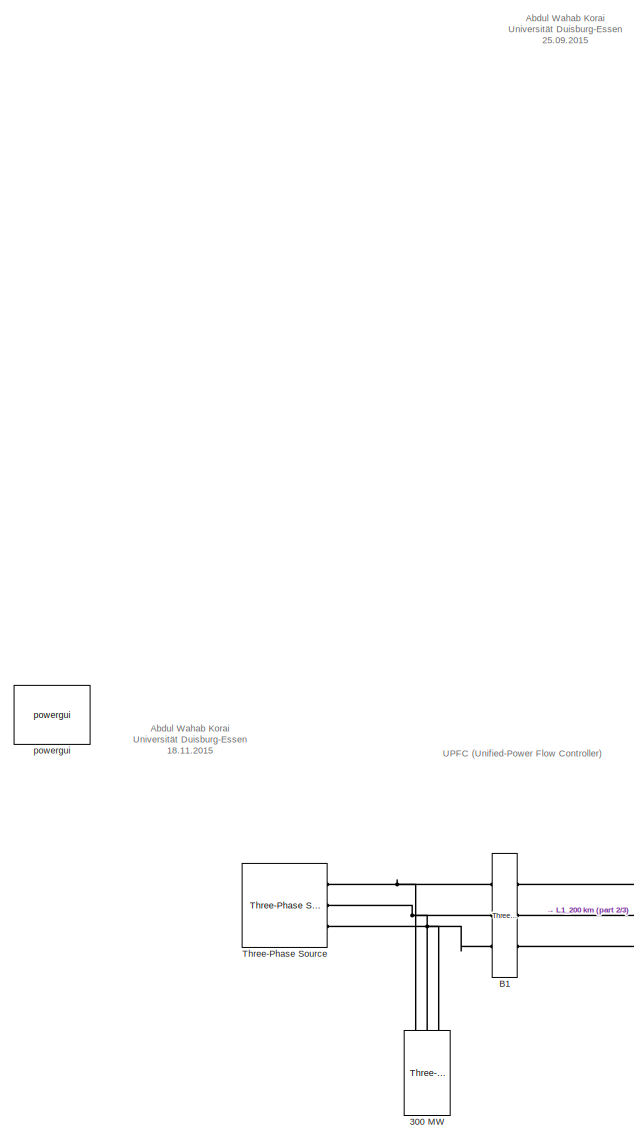
[diagram: root canvas - part 1/3, middle left region]
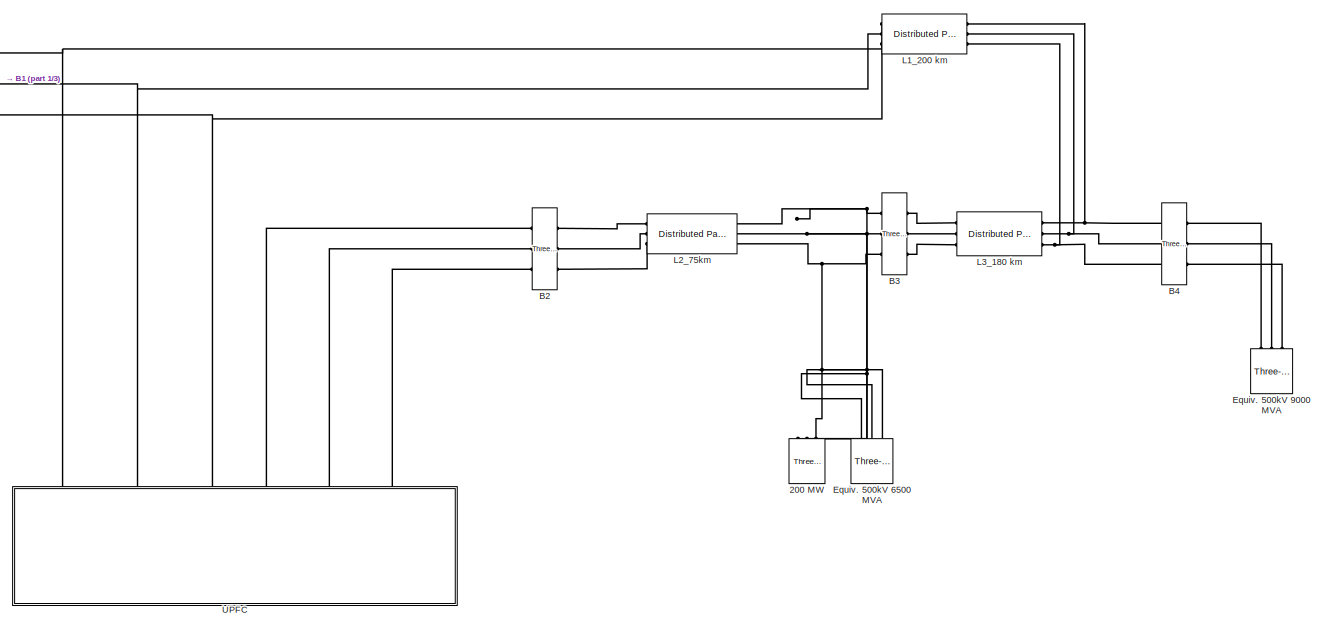
[diagram: root canvas - part 2/3, central region]
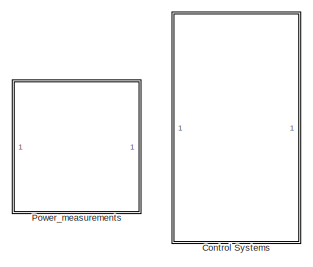
[diagram: root canvas - part 3/3, bottom center region]
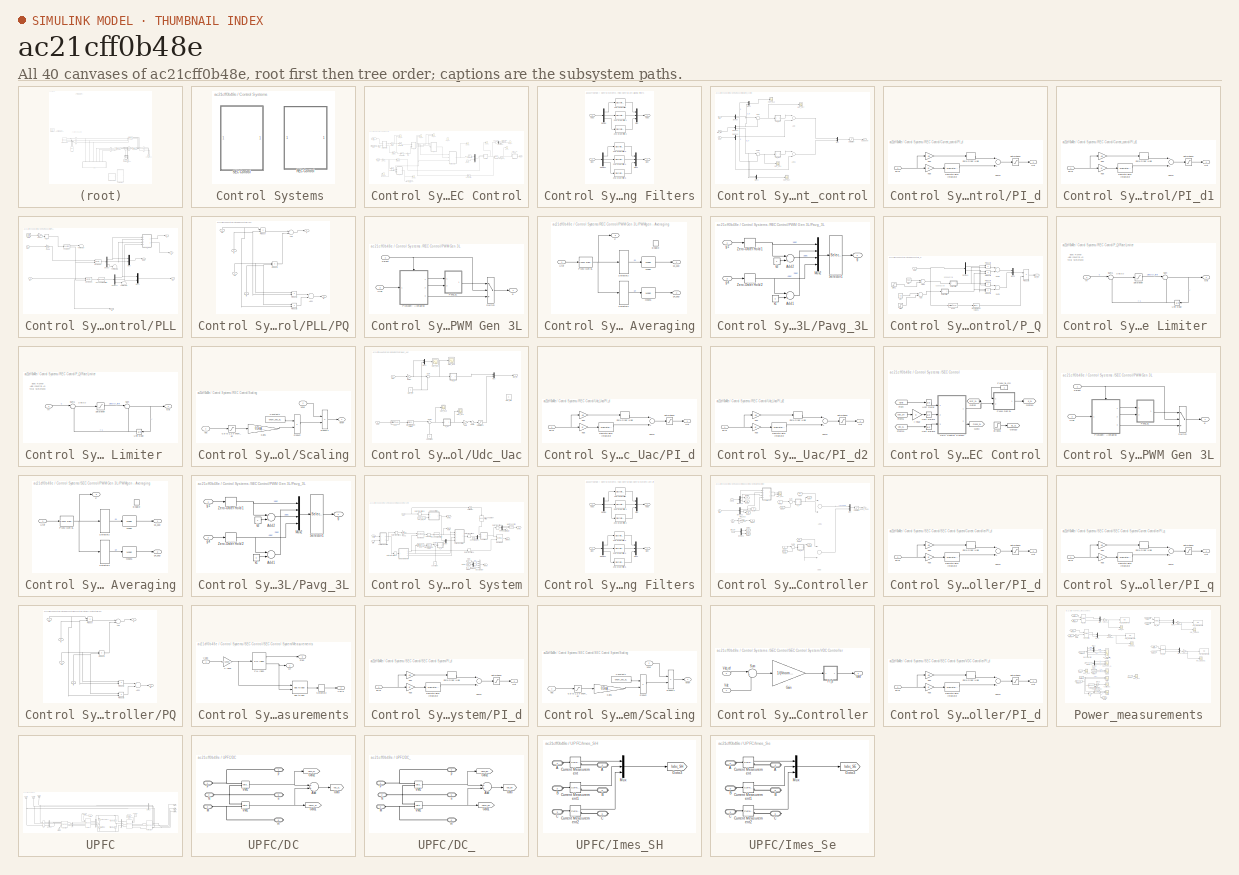
[diagram: thumbnail index - all 40 canvases of the model, root first then tree order]
MODEL slx_ac21cff0b48e
KIND model
CONFIG AbsTol = auto
CONFIG EnableMultiTasking = on
CONFIG FixedStep = auto
CONFIG MaxStep = auto
CONFIG MinStep = auto
CONFIG PreLoadFcn = power_converters_init;
CONFIG RelTol = 1e-4
CONFIG SampleTimeConstraint = Unconstrained
CONFIG Solver = FixedStepDiscrete
CONFIG SolverName = FixedStepDiscrete
CONFIG StartTime = 0.0
CONFIG StopTime = 2.5
BLOCK [Reference] 200 MW  REF=powerlib/Elements/Three-Phase
Series RLC Load
  AttributesFormatString = \n
  Ports = [0, 0, 0, 0, 0, 3]
  SourceBlock = powerlib/Elements/Three-Phase\nSeries RLC Load
  SourceProductBaseCode = PS
  SourceProductName = Simscape Electrical
  SourceType = Three-Phase Series RLC Load
BLOCK [Reference] 300 MW  REF=powerlib/Elements/Three-Phase
Parallel RLC Load
  AttributesFormatString = \n
  Ports = [0, 0, 0, 0, 0, 3]
  SourceBlock = powerlib/Elements/Three-Phase\nParallel RLC Load
  SourceProductBaseCode = PS
  SourceProductName = Simscape Electrical
  SourceType = Three-Phase Parallel RLC Load
BLOCK [Reference] B1  REF=powerlib/Measurements/Three-Phase
V-I Measurement
  Ports = [0, 0, 0, 0, 0, 3, 3]
  SourceBlock = powerlib/Measurements/Three-Phase\nV-I Measurement
  SourceProductBaseCode = PS
  SourceProductName = Simscape Electrical
  SourceType = Three-Phase VI Measurement
BLOCK [Reference] B2  REF=powerlib/Measurements/Three-Phase
V-I Measurement
  Ports = [0, 0, 0, 0, 0, 3, 3]
  SourceBlock = powerlib/Measurements/Three-Phase\nV-I Measurement
  SourceProductBaseCode = PS
  SourceProductName = Simscape Electrical
  SourceType = Three-Phase VI Measurement
BLOCK [Reference] B3  REF=powerlib/Measurements/Three-Phase
V-I Measurement
  Ports = [0, 0, 0, 0, 0, 3, 3]
  SourceBlock = powerlib/Measurements/Three-Phase\nV-I Measurement
  SourceProductBaseCode = PS
  SourceProductName = Simscape Electrical
  SourceType = Three-Phase VI Measurement
BLOCK [Reference] B4  REF=powerlib/Measurements/Three-Phase
V-I Measurement
  Ports = [0, 0, 0, 0, 0, 3, 3]
  SourceBlock = powerlib/Measurements/Three-Phase\nV-I Measurement
  SourceProductBaseCode = PS
  SourceProductName = Simscape Electrical
  SourceType = Three-Phase VI Measurement
BLOCK [SubSystem] Control Systems 
  Ports = []
  RequestExecContextInheritance = off
BLOCK [SubSystem] Control Systems /REC Control
  Ports = []
  RequestExecContextInheritance = off
BLOCK [Saturate] Control Systems /REC Control/0.8 to 1.2 x Vnom_dc
  InputPortMap = u0
  LowerLimit = 0
  Ports = [1, 1]
  UpperLimit = 1.5
BLOCK [SubSystem] Control Systems /REC Control/Anti Aliasing Filters
  Ports = [2, 2]
  RequestExecContextInheritance = off
BLOCK [Outport] Control Systems /REC Control/Anti Aliasing Filters/ Vabc
  IconDisplay = Port number
BLOCK [Reference] Control Systems /REC Control/Anti Aliasing Filters/2nd-Order Filter  REF=powerlib_extras/Discrete 
Control Blocks/Discrete 
2nd-Order
Filter
  Ports = [1, 1]
  SourceBlock = powerlib_extras/Discrete \nControl Blocks/Discrete \n2nd-Order\nFilter
  SourceProductBaseCode = PS
  SourceProductName = Simscape Electrical
  SourceType = Discrete 2nd-Order Filter
BLOCK [Reference] Control Systems /REC Control/Anti Aliasing Filters/2nd-Order Filter1  REF=powerlib_extras/Discrete 
Control Blocks/Discrete 
2nd-Order
Filter
  Ports = [1, 1]
  SourceBlock = powerlib_extras/Discrete \nControl Blocks/Discrete \n2nd-Order\nFilter
  SourceProductBaseCode = PS
  SourceProductName = Simscape Electrical
  SourceType = Discrete 2nd-Order Filter
BLOCK [Reference] Control Systems /REC Control/Anti Aliasing Filters/2nd-Order Filter2  REF=powerlib_extras/Discrete 
Control Blocks/Discrete 
2nd-Order
Filter
  Ports = [1, 1]
  SourceBlock = powerlib_extras/Discrete \nControl Blocks/Discrete \n2nd-Order\nFilter
  SourceProductBaseCode = PS
  SourceProductName = Simscape Electrical
  SourceType = Discrete 2nd-Order Filter
BLOCK [Reference] Control Systems /REC Control/Anti Aliasing Filters/2nd-Order Filter3  REF=powerlib_extras/Discrete 
Control Blocks/Discrete 
2nd-Order
Filter
  Ports = [1, 1]
  SourceBlock = powerlib_extras/Discrete \nControl Blocks/Discrete \n2nd-Order\nFilter
  SourceProductBaseCode = PS
  SourceProductName = Simscape Electrical
  SourceType = Discrete 2nd-Order Filter
BLOCK [Reference] Control Systems /REC Control/Anti Aliasing Filters/2nd-Order Filter4  REF=powerlib_extras/Discrete 
Control Blocks/Discrete 
2nd-Order
Filter
  Ports = [1, 1]
  SourceBlock = powerlib_extras/Discrete \nControl Blocks/Discrete \n2nd-Order\nFilter
  SourceProductBaseCode = PS
  SourceProductName = Simscape Electrical
  SourceType = Discrete 2nd-Order Filter
BLOCK [Reference] Control Systems /REC Control/Anti Aliasing Filters/2nd-Order Filter5  REF=powerlib_extras/Discrete 
Control Blocks/Discrete 
2nd-Order
Filter
  Ports = [1, 1]
  SourceBlock = powerlib_extras/Discrete \nControl Blocks/Discrete \n2nd-Order\nFilter
  SourceProductBaseCode = PS
  SourceProductName = Simscape Electrical
  SourceType = Discrete 2nd-Order Filter
BLOCK [Demux] Control Systems /REC Control/Anti Aliasing Filters/Demux
  Outputs = 3
  Ports = [1, 3]
BLOCK [Demux] Control Systems /REC Control/Anti Aliasing Filters/Demux1
  Outputs = 3
  Ports = [1, 3]
BLOCK [Outport] Control Systems /REC Control/Anti Aliasing Filters/Iabc
  IconDisplay = Port number
  Port = 2
BLOCK [Inport] Control Systems /REC Control/Anti Aliasing Filters/Iabc 
  IconDisplay = Port number
  Port = 2
  PortDimensions = 3
BLOCK [Mux] Control Systems /REC Control/Anti Aliasing Filters/Mux
  DisplayOption = bar
  Inputs = 3
  Ports = [3, 1]
BLOCK [Mux] Control Systems /REC Control/Anti Aliasing Filters/Mux1
  DisplayOption = bar
  Inputs = 3
  Ports = [3, 1]
BLOCK [Inport] Control Systems /REC Control/Anti Aliasing Filters/Vabc
  IconDisplay = Port number
  PortDimensions = 3
BLOCK [Constant] Control Systems /REC Control/Constant
  SampleTime = Ts_PWM
  Value = 0
BLOCK [SubSystem] Control Systems /REC Control/Current_control
  Ports = [3, 1]
  RequestExecContextInheritance = off
BLOCK [Sum] Control Systems /REC Control/Current_control/Add
  InputSameDT = off
  Inputs = -+
  OutDataTypeStr = Inherit: Inherit via internal rule
  Ports = [2, 1]
  SaturateOnIntegerOverflow = off
BLOCK [Sum] Control Systems /REC Control/Current_control/Add1
  InputSameDT = off
  Inputs = -+
  OutDataTypeStr = Inherit: Inherit via internal rule
  Ports = [2, 1]
  SaturateOnIntegerOverflow = off
BLOCK [Demux] Control Systems /REC Control/Current_control/Demux
  DisplayOption = bar
  Outputs = 2
  Ports = [1, 2]
BLOCK [Demux] Control Systems /REC Control/Current_control/Demux1
  DisplayOption = bar
  Outputs = 2
  Ports = [1, 2]
BLOCK [Demux] Control Systems /REC Control/Current_control/Demux2
  DisplayOption = bar
  Outputs = 2
  Ports = [1, 2]
BLOCK [Mux] Control Systems /REC Control/Current_control/Mux
  DisplayOption = bar
  Inputs = 2
  Ports = [2, 1]
BLOCK [Mux] Control Systems /REC Control/Current_control/Mux1
  DisplayOption = bar
  Inputs = 2
  Ports = [2, 1]
BLOCK [Mux] Control Systems /REC Control/Current_control/Mux2
  DisplayOption = bar
  Inputs = 2
  Ports = [2, 1]
BLOCK [SubSystem] Control Systems /REC Control/Current_control/PI_d
  DialogController = POWERSYS.PowerSysDialog
  Ports = [1, 1]
  RequestExecContextInheritance = off
BLOCK [DiscreteIntegrator] Control Systems /REC Control/Current_control/PI_d/Discrete-Time Integrator
  ICPrevOutput = DiscIntNeverNeededParam
  ICPrevScaledInput = DiscIntNeverNeededParam
  InitialCondition = Init
  LimitOutput = on
  LowerSaturationLimit = LowerLimit
  Ports = [1, 1]
  SampleTime = Ts
  UpperSaturationLimit = UpperLimit
BLOCK [Inport] Control Systems /REC Control/Current_control/PI_d/Error
  IconDisplay = Port number
  SampleTime = Ts
BLOCK [Gain] Control Systems /REC Control/Current_control/PI_d/Kp4
  Gain = Kp
  SampleTime = Ts
BLOCK [Gain] Control Systems /REC Control/Current_control/PI_d/Kp5
  Gain = Ki
  SampleTime = Ts
BLOCK [Outport] Control Systems /REC Control/Current_control/PI_d/Out
  IconDisplay = Port number
  InitialOutput = 0
  SampleTime = Ts
BLOCK [Saturate] Control Systems /REC Control/Current_control/PI_d/Saturation2
  InputPortMap = u0
  LowerLimit = LowerLimit
  Ports = [1, 1]
  SampleTime = Ts
  UpperLimit = UpperLimit
BLOCK [Sum] Control Systems /REC Control/Current_control/PI_d/Sum6
  Ports = [2, 1]
  SampleTime = Ts
BLOCK [ZeroOrderHold] Control Systems /REC Control/Current_control/PI_d/Zero-Order Hold
  SampleTime = Ts
BLOCK [SubSystem] Control Systems /REC Control/Current_control/PI_d1
  DialogController = POWERSYS.PowerSysDialog
  Ports = [1, 1]
  RequestExecContextInheritance = off
BLOCK [DiscreteIntegrator] Control Systems /REC Control/Current_control/PI_d1/Discrete-Time Integrator
  ICPrevOutput = DiscIntNeverNeededParam
  ICPrevScaledInput = DiscIntNeverNeededParam
  InitialCondition = Init
  LimitOutput = on
  LowerSaturationLimit = LowerLimit
  Ports = [1, 1]
  SampleTime = Ts
  UpperSaturationLimit = UpperLimit
BLOCK [Inport] Control Systems /REC Control/Current_control/PI_d1/Error
  IconDisplay = Port number
  SampleTime = Ts
BLOCK [Gain] Control Systems /REC Control/Current_control/PI_d1/Kp4
  Gain = Kp
  SampleTime = Ts
BLOCK [Gain] Control Systems /REC Control/Current_control/PI_d1/Kp5
  Gain = Ki
  SampleTime = Ts
BLOCK [Outport] Control Systems /REC Control/Current_control/PI_d1/Out
  IconDisplay = Port number
  InitialOutput = 0
  SampleTime = Ts
BLOCK [Saturate] Control Systems /REC Control/Current_control/PI_d1/Saturation2
  InputPortMap = u0
  LowerLimit = LowerLimit
  Ports = [1, 1]
  SampleTime = Ts
  UpperLimit = UpperLimit
BLOCK [Sum] Control Systems /REC Control/Current_control/PI_d1/Sum6
  Ports = [2, 1]
  SampleTime = Ts
BLOCK [ZeroOrderHold] Control Systems /REC Control/Current_control/PI_d1/Zero-Order Hold
  SampleTime = Ts
BLOCK [Saturate] Control Systems /REC Control/Current_control/Saturation
  InputPortMap = u0
  LowerLimit = LimitL_Ireg_3L
  Ports = [1, 1]
  UpperLimit = LimitU_Ireg_3L
BLOCK [Sum] Control Systems /REC Control/Current_control/Sum
  IconShape = round
  InputSameDT = off
  Inputs = |-+
  OutDataTypeStr = Inherit: Inherit via internal rule
  Ports = [2, 1]
  SaturateOnIntegerOverflow = off
BLOCK [Sum] Control Systems /REC Control/Current_control/Sum1
  IconShape = round
  InputSameDT = off
  Inputs = |+-
  OutDataTypeStr = Inherit: Inherit via internal rule
  Ports = [2, 1]
  SaturateOnIntegerOverflow = off
BLOCK [Inport] Control Systems /REC Control/Current_control/Udq
  IconDisplay = Port number
  Port = 3
BLOCK [Scope] Control Systems /REC Control/Current_control/Vdc_3L1
  Floating = off
  NumInputPorts = 1
  Ports = [1]
  ScopeSpecificationString = Simulink.scopes.TimeScopeBlockCfg('CurrentConfiguration', extmgr.ConfigurationSet(extmgr.Configuration('Core','General UI',true),extmgr.Configuration('Core','Source UI',true),extmgr.Configuration('Sources','WiredSimulink',true,'DataLoggingVariableName','ScopeData11'),extmgr.Configuration('Visuals','Time Domain',true,'SerializedDisplays',{struct('MinYLimReal','-5.79945','MaxYLimReal','5.49649','YLa...<+1487ch>
BLOCK [Scope] Control Systems /REC Control/Current_control/Vdc_3L2
  Floating = off
  NumInputPorts = 1
  Ports = [1]
  ScopeSpecificationString = Simulink.scopes.TimeScopeBlockCfg('CurrentConfiguration', extmgr.ConfigurationSet(extmgr.Configuration('Core','General UI',true),extmgr.Configuration('Core','Source UI',true),extmgr.Configuration('Sources','WiredSimulink',true,'DataLoggingVariableName','ScopeData12'),extmgr.Configuration('Visuals','Time Domain',true,'SerializedDisplays',{struct('MinYLimReal','-1.09194','MaxYLimReal','0.26107','YLa...<+1517ch>
BLOCK [Scope] Control Systems /REC Control/Current_control/Vdc_3L4
  Floating = off
  NumInputPorts = 1
  Ports = [1]
  ScopeSpecificationString = Simulink.scopes.TimeScopeBlockCfg('CurrentConfiguration', extmgr.ConfigurationSet(extmgr.Configuration('Core','General UI',true),extmgr.Configuration('Core','Source UI',true),extmgr.Configuration('Sources','WiredSimulink',true,'DataLoggingVariableName','ScopeData14'),extmgr.Configuration('Visuals','Time Domain',true,'SerializedDisplays',{struct('MinYLimReal','-0.87369','MaxYLimReal','0.76501','YLa...<+1517ch>
BLOCK [Scope] Control Systems /REC Control/Current_control/Vdc_3L7
  Floating = off
  NumInputPorts = 1
  Ports = [1]
  ScopeSpecificationString = Simulink.scopes.TimeScopeBlockCfg('CurrentConfiguration', extmgr.ConfigurationSet(extmgr.Configuration('Core','General UI',true),extmgr.Configuration('Core','Source UI',true),extmgr.Configuration('Sources','WiredSimulink',true,'DataLoggingVariableName','ScopeData10'),extmgr.Configuration('Visuals','Time Domain',true,'SerializedDisplays',{struct('MinYLimReal','-0.80574','MaxYLimReal','0.72889','YLa...<+1486ch>
BLOCK [Inport] Control Systems /REC Control/Current_control/idq
  IconDisplay = Port number
BLOCK [Inport] Control Systems /REC Control/Current_control/idq_ref
  IconDisplay = Port number
  Port = 2
BLOCK [Outport] Control Systems /REC Control/Current_control/udq_con
  IconDisplay = Port number
BLOCK [Demux] Control Systems /REC Control/Demux
  DisplayOption = bar
  Outputs = 3
  Ports = [1, 3]
BLOCK [From] Control Systems /REC Control/From
  GotoTag = Uinv
  TagVisibility = global
BLOCK [From] Control Systems /REC Control/From2
  GotoTag = Iabc_SE
  TagVisibility = global
BLOCK [From] Control Systems /REC Control/From3
  GotoTag = Vdc_inv
  TagVisibility = global
BLOCK [Gain] Control Systems /REC Control/Gain
  Gain = -1
  OutDataTypeStr = Inherit: Inherit via internal rule
  ParamDataTypeStr = Inherit: Inherit via internal rule
  SaturateOnIntegerOverflow = off
BLOCK [Goto] Control Systems /REC Control/Goto1
  GotoTag = idq_ref_tst
  TagVisibility = global
BLOCK [Goto] Control Systems /REC Control/Goto11
  GotoTag = g_inv
  TagVisibility = global
BLOCK [Gain] Control Systems /REC Control/I-->pu
  Gain = 1/(Pnom_dc_3L*sqrt(2)/(Vnom_prim_3L*sqrt(3)))
  OutDataTypeStr = Inherit: Inherit via internal rule
  ParamDataTypeStr = Inherit: Inherit via internal rule
  SaturateOnIntegerOverflow = off
BLOCK [Math] Control Systems /REC Control/Math Function
  Operator = hypot
  Ports = [2, 1]
BLOCK [Mux] Control Systems /REC Control/Mux
  DisplayOption = bar
  Inputs = 2
  Ports = [2, 1]
BLOCK [SubSystem] Control Systems /REC Control/PLL
  Ports = [2, 5]
  RequestExecContextInheritance = off
BLOCK [Demux] Control Systems /REC Control/PLL/Demux
  DisplayOption = bar
  Outputs = 3
  Ports = [1, 3]
BLOCK [Demux] Control Systems /REC Control/PLL/Demux1
  DisplayOption = bar
  Outputs = 3
  Ports = [1, 3]
BLOCK [From] Control Systems /REC Control/PLL/From
  GotoTag = Vgrid
  TagVisibility = global
BLOCK [Inport] Control Systems /REC Control/PLL/Iac
  IconDisplay = Port number
  Port = 2
BLOCK [Mux] Control Systems /REC Control/PLL/Mux
  DisplayOption = bar
  Inputs = 2
  Ports = [2, 1]
BLOCK [Mux] Control Systems /REC Control/PLL/Mux1
  DisplayOption = bar
  Inputs = 2
  Ports = [2, 1]
BLOCK [Outport] Control Systems /REC Control/PLL/P
  IconDisplay = Port number
  Port = 3
BLOCK [Reference] Control Systems /REC Control/PLL/PLL (3ph)  REF=powerlib_meascontrol/PLL/PLL
(3ph)
  Ports = [1, 2]
  SourceBlock = powerlib_meascontrol/PLL/PLL\n(3ph)
  SourceProductBaseCode = PS
  SourceProductName = Simscape Electrical
  SourceType = PLL (3ph)
BLOCK [SubSystem] Control Systems /REC Control/PLL/PQ
  Ports = [4, 2]
  RequestExecContextInheritance = off
BLOCK [Sum] Control Systems /REC Control/PLL/PQ/Add
  InputSameDT = off
  OutDataTypeStr = Inherit: Inherit via internal rule
  Ports = [2, 1]
  SaturateOnIntegerOverflow = off
BLOCK [Sum] Control Systems /REC Control/PLL/PQ/Add1
  InputSameDT = off
  Inputs = +-
  OutDataTypeStr = Inherit: Inherit via internal rule
  Ports = [2, 1]
  SaturateOnIntegerOverflow = off
BLOCK [Outport] Control Systems /REC Control/PLL/PQ/P
  IconDisplay = Port number
BLOCK [Product] Control Systems /REC Control/PLL/PQ/Product
  InputSameDT = off
  OutDataTypeStr = Inherit: Inherit via internal rule
  Ports = [2, 1]
  RndMeth = Floor
  SaturateOnIntegerOverflow = off
BLOCK [Product] Control Systems /REC Control/PLL/PQ/Product1
  InputSameDT = off
  OutDataTypeStr = Inherit: Inherit via internal rule
  Ports = [2, 1]
  RndMeth = Floor
  SaturateOnIntegerOverflow = off
BLOCK [Product] Control Systems /REC Control/PLL/PQ/Product2
  InputSameDT = off
  OutDataTypeStr = Inherit: Inherit via internal rule
  Ports = [2, 1]
  RndMeth = Floor
  SaturateOnIntegerOverflow = off
BLOCK [Product] Control Systems /REC Control/PLL/PQ/Product3
  InputSameDT = off
  OutDataTypeStr = Inherit: Inherit via internal rule
  Ports = [2, 1]
  RndMeth = Floor
  SaturateOnIntegerOverflow = off
BLOCK [Outport] Control Systems /REC Control/PLL/PQ/Q
  IconDisplay = Port number
  Port = 2
BLOCK [Inport] Control Systems /REC Control/PLL/PQ/id
  IconDisplay = Port number
  Port = 2
BLOCK [Inport] Control Systems /REC Control/PLL/PQ/iq
  IconDisplay = Port number
  Port = 4
BLOCK [Inport] Control Systems /REC Control/PLL/PQ/ud
  IconDisplay = Port number
BLOCK [Inport] Control Systems /REC Control/PLL/PQ/uq
  IconDisplay = Port number
  Port = 3
BLOCK [Outport] Control Systems /REC Control/PLL/Q
  IconDisplay = Port number
  Port = 4
BLOCK [RateTransition] Control Systems /REC Control/PLL/RT
  OutPortSampleTime = Ts_Control
BLOCK [Reference] Control Systems /REC Control/PLL/Second-Order Filter  REF=powerlib_meascontrol/Filters/Second-Order
Filter
  Ports = [1, 1]
  SourceBlock = powerlib_meascontrol/Filters/Second-Order\nFilter
  SourceProductBaseCode = PS
  SourceProductName = Simscape Electrical
  SourceType = Second-Order Filter
BLOCK [Terminator] Control Systems /REC Control/PLL/Terminator
BLOCK [Terminator] Control Systems /REC Control/PLL/Terminator1
BLOCK [Terminator] Control Systems /REC Control/PLL/Terminator2
BLOCK [Inport] Control Systems /REC Control/PLL/Uac
  IconDisplay = Port number
BLOCK [Outport] Control Systems /REC Control/PLL/Udq
  IconDisplay = Port number
BLOCK [Gain] Control Systems /REC Control/PLL/V-->pu
  Gain = 1/(Vnom_prim_3L*sqrt(2)/sqrt(3))
  OutDataTypeStr = Inherit: Inherit via internal rule
  ParamDataTypeStr = Inherit: Inherit via internal rule
  SaturateOnIntegerOverflow = off
BLOCK [Gain] Control Systems /REC Control/PLL/V-->pu1
  Gain = 1/(Vnom_prim_3L*sqrt(2)/sqrt(3))
  OutDataTypeStr = Inherit: Inherit via internal rule
  ParamDataTypeStr = Inherit: Inherit via internal rule
  SaturateOnIntegerOverflow = off
BLOCK [Reference] Control Systems /REC Control/PLL/abc to dq0  REF=powerlib_meascontrol/Transformations/abc to dq0
  Ports = [2, 1]
  SourceBlock = powerlib_meascontrol/Transformations/abc to dq0
  SourceProductBaseCode = PS
  SourceProductName = Simscape Electrical
  SourceType = abc to dq0 Transformation
BLOCK [Reference] Control Systems /REC Control/PLL/abc to dq1  REF=powerlib_meascontrol/Transformations/abc to dq0
  Ports = [2, 1]
  SourceBlock = powerlib_meascontrol/Transformations/abc to dq0
  SourceProductBaseCode = PS
  SourceProductName = Simscape Electrical
  SourceType = abc to dq0 Transformation
BLOCK [Outport] Control Systems /REC Control/PLL/idq
  IconDisplay = Port number
  Port = 2
BLOCK [Outport] Control Systems /REC Control/PLL/w
  IconDisplay = Port number
  Port = 5
BLOCK [SubSystem] Control Systems /REC Control/PWM Gen 3L
  Ports = [2, 1]
  RequestExecContextInheritance = off
BLOCK [SubSystem] Control Systems /REC Control/PWM Gen 3L/PWMgen - Averaging
  Ports = [1, 3, 1]
  RequestExecContextInheritance = off
BLOCK [EnablePort] Control Systems /REC Control/PWM Gen 3L/PWMgen - Averaging/Enable
  Ports = []
BLOCK [Reference] Control Systems /REC Control/PWM Gen 3L/PWMgen - Averaging/Mean  REF=powerlib_meascontrol/Measurements/Mean
  Ports = [1, 1]
  SourceBlock = powerlib_meascontrol/Measurements/Mean
  SourceProductBaseCode = PS
  SourceProductName = Simscape Electrical
  SourceType = Mean
BLOCK [Reference] Control Systems /REC Control/PWM Gen 3L/PWMgen - Averaging/Mean1  REF=powerlib_meascontrol/Measurements/Mean
  Ports = [1, 1]
  SourceBlock = powerlib_meascontrol/Measurements/Mean
  SourceProductBaseCode = PS
  SourceProductName = Simscape Electrical
  SourceType = Mean
BLOCK [Outport] Control Systems /REC Control/PWM Gen 3L/PWMgen - Averaging/P
  IconDisplay = Port number
  Port = 3
BLOCK [Reference] Control Systems /REC Control/PWM Gen 3L/PWMgen - Averaging/PWM Gen 3L  REF=powerlib_meascontrol/Pulse & Signal
Generators/PWM Generator
(3-Level)
  Ports = [1, 1]
  SourceBlock = powerlib_meascontrol/Pulse & Signal\nGenerators/PWM Generator\n(3-Level)
  SourceProductBaseCode = PS
  SourceProductName = Simscape Electrical
  SourceType = PWM Generator (3-Level)
BLOCK [Selector] Control Systems /REC Control/PWM Gen 3L/PWMgen - Averaging/Selector2
  IndexOptions = Index vector (dialog)
  Indices = [1  5  9]
  InputPortWidth = 12
  OutputSizes = 1
  Ports = [1, 1]
BLOCK [Selector] Control Systems /REC Control/PWM Gen 3L/PWMgen - Averaging/Selector3
  IndexOptions = Index vector (dialog)
  Indices = [1  5  9]+3
  InputPortWidth = 12
  OutputSizes = 1
  Ports = [1, 1]
BLOCK [Inport] Control Systems /REC Control/PWM Gen 3L/PWMgen - Averaging/Uref
  IconDisplay = Port number
BLOCK [Outport] Control Systems /REC Control/PWM Gen 3L/PWMgen - Averaging/g1_avg
  IconDisplay = Port number
BLOCK [Outport] Control Systems /REC Control/PWM Gen 3L/PWMgen - Averaging/g4_avg
  IconDisplay = Port number
  Port = 2
BLOCK [SubSystem] Control Systems /REC Control/PWM Gen 3L/Pavg_3L
  Ports = [2, 1]
  RequestExecContextInheritance = off
BLOCK [Sum] Control Systems /REC Control/PWM Gen 3L/Pavg_3L/Add1
  InputSameDT = off
  Inputs = -+
  OutDataTypeStr = Inherit: Inherit via internal rule
  Ports = [2, 1]
  SaturateOnIntegerOverflow = off
BLOCK [Sum] Control Systems /REC Control/PWM Gen 3L/Pavg_3L/Add2
  InputSameDT = off
  Inputs = -+
  OutDataTypeStr = Inherit: Inherit via internal rule
  Ports = [2, 1]
  SaturateOnIntegerOverflow = off
BLOCK [Mux] Control Systems /REC Control/PWM Gen 3L/Pavg_3L/Mux2
  DisplayOption = bar
  Inputs = [ 3 3 3 3 ]
  Ports = [4, 1]
BLOCK [Selector] Control Systems /REC Control/PWM Gen 3L/Pavg_3L/Selector1
  IndexOptions = Index vector (dialog)
  Indices = [1 4 7 10 2 5 8 11 3 6 9 12]
  InputPortWidth = 12
  OutputSizes = 1
  Ports = [1, 1]
BLOCK [ZeroOrderHold] Control Systems /REC Control/PWM Gen 3L/Pavg_3L/Zero-Order Hold1
  SampleTime = Ts_Power
BLOCK [ZeroOrderHold] Control Systems /REC Control/PWM Gen 3L/Pavg_3L/Zero-Order Hold2
  SampleTime = Ts_Power
BLOCK [Outport] Control Systems /REC Control/PWM Gen 3L/Pavg_3L/g
  IconDisplay = Port number
  SampleTime = Ts_Power
BLOCK [Inport] Control Systems /REC Control/PWM Gen 3L/Pavg_3L/g1
  IconDisplay = Port number
  SampleTime = Ts_PWM
BLOCK [Inport] Control Systems /REC Control/PWM Gen 3L/Pavg_3L/g4
  IconDisplay = Port number
  Port = 2
  SampleTime = Ts_PWM
BLOCK [Constant] Control Systems /REC Control/PWM Gen 3L/Pavg_3L/k1
BLOCK [Constant] Control Systems /REC Control/PWM Gen 3L/Pavg_3L/k3
BLOCK [Inport] Control Systems /REC Control/PWM Gen 3L/Select
  IconDisplay = Port number
BLOCK [Switch] Control Systems /REC Control/PWM Gen 3L/Switch
  InputSameDT = off
  SaturateOnIntegerOverflow = off
  Threshold = 1.5
BLOCK [Inport] Control Systems /REC Control/PWM Gen 3L/Uref
  IconDisplay = Port number
  Port = 2
BLOCK [Outport] Control Systems /REC Control/PWM Gen 3L/g
  IconDisplay = Port number
BLOCK [Constant] Control Systems /REC Control/PWM_3L_On
  AttributesFormatString = %<Tag>
BLOCK [SubSystem] Control Systems /REC Control/P_Q
  Ports = [1, 1]
  RequestExecContextInheritance = off
BLOCK [Sum] Control Systems /REC Control/P_Q/Add
  InputSameDT = off
  OutDataTypeStr = Inherit: Inherit via internal rule
  Ports = [2, 1]
  SaturateOnIntegerOverflow = off
BLOCK [Sum] Control Systems /REC Control/P_Q/Add1
  InputSameDT = off
  OutDataTypeStr = Inherit: Inherit via internal rule
  Ports = [2, 1]
  SaturateOnIntegerOverflow = off
BLOCK [Demux] Control Systems /REC Control/P_Q/Demux1
  Outputs = 2
  Ports = [1, 2]
BLOCK [Reference] Control Systems /REC Control/P_Q/Discrete Mean value1  REF=powerlib_extras/Discrete
Measurements/Discrete 
Mean value
  Ports = [1, 1]
  SourceBlock = powerlib_extras/Discrete\nMeasurements/Discrete \nMean value
  SourceProductBaseCode = PS
  SourceProductName = Simscape Electrical
  SourceType = Discrete Mean value
BLOCK [Fcn] Control Systems /REC Control/P_Q/Fcn1
  Expr = sqrt(u[1]^2+u[2]^2)
  SampleTime = Ts_Control
BLOCK [Mux] Control Systems /REC Control/P_Q/Mux3
  DisplayOption = bar
  Inputs = 2
  Ports = [2, 1]
BLOCK [Product] Control Systems /REC Control/P_Q/Product2
  Ports = [2, 1]
  RndMeth = Floor
BLOCK [Product] Control Systems /REC Control/P_Q/Product3
  Ports = [2, 1]
  RndMeth = Floor
BLOCK [Product] Control Systems /REC Control/P_Q/Product4
  Ports = [2, 1]
  RndMeth = Floor
BLOCK [Product] Control Systems /REC Control/P_Q/Product5
  Ports = [2, 1]
  RndMeth = Floor
BLOCK [Product] Control Systems /REC Control/P_Q/Product6
  Inputs = */
  Ports = [2, 1]
  RndMeth = Floor
BLOCK [SubSystem] Control Systems /REC Control/P_Q/Rate Limiter 
  DialogController = POWERSYS.PowerSysDialog
  Ports = [1, 1]
  RequestExecContextInheritance = off
BLOCK [SubSystem] Control Systems /REC Control/P_Q/Rate Limiter  
  DialogController = POWERSYS.PowerSysDialog
  Ports = [1, 1]
  RequestExecContextInheritance = off
BLOCK [Inport] Control Systems /REC Control/P_Q/Rate Limiter  /In
  IconDisplay = Port number
BLOCK [Outport] Control Systems /REC Control/P_Q/Rate Limiter  /Out
  IconDisplay = Port number
BLOCK [Saturate] Control Systems /REC Control/P_Q/Rate Limiter  /Saturation
  InputPortMap = u0
  LowerLimit = LowerLimit
  Ports = [1, 1]
  UpperLimit = UpperLimit
BLOCK [Sum] Control Systems /REC Control/P_Q/Rate Limiter  /Sum
  IconShape = round
  Inputs = |++
  Ports = [2, 1]
BLOCK [Sum] Control Systems /REC Control/P_Q/Rate Limiter  /Sum1
  IconShape = round
  Inputs = |+-
  Ports = [2, 1]
BLOCK [UnitDelay] Control Systems /REC Control/P_Q/Rate Limiter  /Unit Delay
  HasFrameUpgradeWarning = on
  InitialCondition = Vinit
  SampleTime = Ts
BLOCK [Inport] Control Systems /REC Control/P_Q/Rate Limiter /In
  IconDisplay = Port number
BLOCK [Outport] Control Systems /REC Control/P_Q/Rate Limiter /Out
  IconDisplay = Port number
BLOCK [Saturate] Control Systems /REC Control/P_Q/Rate Limiter /Saturation
  InputPortMap = u0
  LowerLimit = LowerLimit
  Ports = [1, 1]
  UpperLimit = UpperLimit
BLOCK [Sum] Control Systems /REC Control/P_Q/Rate Limiter /Sum
  IconShape = round
  Inputs = |++
  Ports = [2, 1]
BLOCK [Sum] Control Systems /REC Control/P_Q/Rate Limiter /Sum1
  IconShape = round
  Inputs = |+-
  Ports = [2, 1]
BLOCK [UnitDelay] Control Systems /REC Control/P_Q/Rate Limiter /Unit Delay
  HasFrameUpgradeWarning = on
  InitialCondition = Vinit
  SampleTime = Ts
BLOCK [Step] Control Systems /REC Control/P_Q/Step
  After = 0.3
  SampleTime = Ts_Control
  Time = 0.9
BLOCK [Step] Control Systems /REC Control/P_Q/Step1
  After = -0.3
  SampleTime = Ts_Control
  Time = 1.3
BLOCK [Sum] Control Systems /REC Control/P_Q/Sum2
  Ports = [2, 1]
BLOCK [Sum] Control Systems /REC Control/P_Q/Sum3
  Inputs = +-
  Ports = [2, 1]
BLOCK [Outport] Control Systems /REC Control/P_Q/idq_ref
  IconDisplay = Port number
BLOCK [Constant] Control Systems /REC Control/P_Q/pref
  Value = -0.55
BLOCK [Constant] Control Systems /REC Control/P_Q/qref
  Value = 0.3
BLOCK [Inport] Control Systems /REC Control/P_Q/udq
  IconDisplay = Port number
BLOCK [RateTransition] Control Systems /REC Control/Rate Transition
  OutPortSampleTime = Ts_Control
BLOCK [RateTransition] Control Systems /REC Control/Rate Transition1
  OutPortSampleTime = Ts_Control
BLOCK [RateTransition] Control Systems /REC Control/Rate Transition2
  OutPortSampleTime = Ts_Control
BLOCK [RateTransition] Control Systems /REC Control/Rate Transition4
  OutPortSampleTime = Ts_PWM
BLOCK [RateTransition] Control Systems /REC Control/Rate Transition5
  OutPortSampleTime = Ts_Control
BLOCK [RateTransition] Control Systems /REC Control/Rate Transition7
  OutPortSampleTime = Ts_PWM
BLOCK [SubSystem] Control Systems /REC Control/Scaling
  Ports = [2, 1]
  RequestExecContextInheritance = off
BLOCK [Saturate] Control Systems /REC Control/Scaling/0.8 to 1.2 x Vnom_dc
  InputPortMap = u0
  LowerLimit = 0.5*Vnom_dc_3L
  Ports = [1, 1]
  UpperLimit = 1.5*Vnom_dc_3L
BLOCK [Constant] Control Systems /REC Control/Scaling/Constant1
  Value = Vnom_sec_3L
BLOCK [Gain] Control Systems /REC Control/Scaling/Gain1
  Gain = 0.5/sqrt(2)*sqrt(3)
  OutDataTypeStr = Inherit: Inherit via internal rule
  ParamDataTypeStr = Inherit: Inherit via internal rule
  SaturateOnIntegerOverflow = off
BLOCK [Product] Control Systems /REC Control/Scaling/Product
  InputSameDT = off
  Inputs = */
  OutDataTypeStr = Inherit: Inherit via internal rule
  Ports = [2, 1]
  RndMeth = Floor
  SaturateOnIntegerOverflow = off
BLOCK [Product] Control Systems /REC Control/Scaling/Product1
  InputSameDT = off
  Inputs = **
  OutDataTypeStr = Inherit: Inherit via internal rule
  Ports = [2, 1]
  RndMeth = Floor
  SaturateOnIntegerOverflow = off
BLOCK [Inport] Control Systems /REC Control/Scaling/VdVq
  IconDisplay = Port number
  Port = 2
BLOCK [Outport] Control Systems /REC Control/Scaling/VdVq*
  IconDisplay = Port number
BLOCK [Inport] Control Systems /REC Control/Scaling/Vdc
  IconDisplay = Port number
BLOCK [Terminator] Control Systems /REC Control/Terminator
BLOCK [Gain] Control Systems /REC Control/Udc-->pu1
  Gain = 1/Vnom_dc_3L
  OutDataTypeStr = Inherit: Inherit via internal rule
  ParamDataTypeStr = Inherit: Inherit via internal rule
  SaturateOnIntegerOverflow = off
BLOCK [SubSystem] Control Systems /REC Control/Udc_Uac
  Ports = [2, 1]
  RequestExecContextInheritance = off
BLOCK [Reference] Control Systems /REC Control/Udc_Uac/Discrete Mean value  REF=powerlib_extras/Discrete
Measurements/Discrete 
Mean value
  Ports = [1, 1]
  SourceBlock = powerlib_extras/Discrete\nMeasurements/Discrete \nMean value
  SourceProductBaseCode = PS
  SourceProductName = Simscape Electrical
  SourceType = Discrete Mean value
BLOCK [Fcn] Control Systems /REC Control/Udc_Uac/Fcn
  Expr = sqrt(u[1]^2+u[2]^2)
  SampleTime = Ts_Control
BLOCK [Gain] Control Systems /REC Control/Udc_Uac/Gain
  OutDataTypeStr = Inherit: Inherit via internal rule
  ParamDataTypeStr = Inherit: Inherit via internal rule
  SaturateOnIntegerOverflow = off
BLOCK [Gain] Control Systems /REC Control/Udc_Uac/Gain2
  OutDataTypeStr = Inherit: Inherit via internal rule
  ParamDataTypeStr = Inherit: Inherit via internal rule
  SaturateOnIntegerOverflow = off
BLOCK [Mux] Control Systems /REC Control/Udc_Uac/Mux
  DisplayOption = bar
  Inputs = 2
  Ports = [2, 1]
BLOCK [Mux] Control Systems /REC Control/Udc_Uac/Mux1
  DisplayOption = bar
  Inputs = 2
  Ports = [2, 1]
BLOCK [SubSystem] Control Systems /REC Control/Udc_Uac/PI_d
  DialogController = POWERSYS.PowerSysDialog
  Ports = [1, 1]
  RequestExecContextInheritance = off
BLOCK [DiscreteIntegrator] Control Systems /REC Control/Udc_Uac/PI_d/Discrete-Time Integrator
  ICPrevOutput = DiscIntNeverNeededParam
  ICPrevScaledInput = DiscIntNeverNeededParam
  InitialCondition = Init
  LimitOutput = on
  LowerSaturationLimit = LowerLimit
  Ports = [1, 1]
  SampleTime = Ts
  UpperSaturationLimit = UpperLimit
BLOCK [Inport] Control Systems /REC Control/Udc_Uac/PI_d/Error
  IconDisplay = Port number
  SampleTime = Ts
BLOCK [Gain] Control Systems /REC Control/Udc_Uac/PI_d/Kp4
  Gain = Kp
  SampleTime = Ts
BLOCK [Gain] Control Systems /REC Control/Udc_Uac/PI_d/Kp5
  Gain = Ki
  SampleTime = Ts
BLOCK [Outport] Control Systems /REC Control/Udc_Uac/PI_d/Out
  IconDisplay = Port number
  InitialOutput = 0
  SampleTime = Ts
BLOCK [Saturate] Control Systems /REC Control/Udc_Uac/PI_d/Saturation2
  InputPortMap = u0
  LowerLimit = LowerLimit
  Ports = [1, 1]
  SampleTime = Ts
  UpperLimit = UpperLimit
BLOCK [Sum] Control Systems /REC Control/Udc_Uac/PI_d/Sum6
  Ports = [2, 1]
  SampleTime = Ts
BLOCK [ZeroOrderHold] Control Systems /REC Control/Udc_Uac/PI_d/Zero-Order Hold
  SampleTime = Ts
BLOCK [SubSystem] Control Systems /REC Control/Udc_Uac/PI_d2
  DialogController = POWERSYS.PowerSysDialog
  Ports = [1, 1]
  RequestExecContextInheritance = off
BLOCK [DiscreteIntegrator] Control Systems /REC Control/Udc_Uac/PI_d2/Discrete-Time Integrator
  ICPrevOutput = DiscIntNeverNeededParam
  ICPrevScaledInput = DiscIntNeverNeededParam
  InitialCondition = Init
  LimitOutput = on
  LowerSaturationLimit = LowerLimit
  Ports = [1, 1]
  SampleTime = Ts
  UpperSaturationLimit = UpperLimit
BLOCK [Inport] Control Systems /REC Control/Udc_Uac/PI_d2/Error
  IconDisplay = Port number
  SampleTime = Ts
BLOCK [Gain] Control Systems /REC Control/Udc_Uac/PI_d2/Kp4
  Gain = Kp
  SampleTime = Ts
BLOCK [Gain] Control Systems /REC Control/Udc_Uac/PI_d2/Kp5
  Gain = Ki
  SampleTime = Ts
BLOCK [Outport] Control Systems /REC Control/Udc_Uac/PI_d2/Out
  IconDisplay = Port number
  InitialOutput = 0
  SampleTime = Ts
BLOCK [Saturate] Control Systems /REC Control/Udc_Uac/PI_d2/Saturation2
  InputPortMap = u0
  LowerLimit = LowerLimit
  Ports = [1, 1]
  SampleTime = Ts
  UpperLimit = UpperLimit
BLOCK [Sum] Control Systems /REC Control/Udc_Uac/PI_d2/Sum6
  Ports = [2, 1]
  SampleTime = Ts
BLOCK [ZeroOrderHold] Control Systems /REC Control/Udc_Uac/PI_d2/Zero-Order Hold
  SampleTime = Ts
BLOCK [Saturate] Control Systems /REC Control/Udc_Uac/Saturation1
  InputPortMap = u0
  LowerLimit = -1.15
  Ports = [1, 1]
  UpperLimit = 1.15
BLOCK [Sum] Control Systems /REC Control/Udc_Uac/Sum
  IconShape = round
  InputSameDT = off
  Inputs = |-+
  OutDataTypeStr = Inherit: Inherit via internal rule
  Ports = [2, 1]
  SaturateOnIntegerOverflow = off
BLOCK [Sum] Control Systems /REC Control/Udc_Uac/Sum1
  IconShape = round
  InputSameDT = off
  Inputs = |++
  OutDataTypeStr = Inherit: Inherit via internal rule
  Ports = [2, 1]
  SaturateOnIntegerOverflow = off
BLOCK [Sum] Control Systems /REC Control/Udc_Uac/Sum4
  IconShape = round
  InputSameDT = off
  Inputs = |-+
  OutDataTypeStr = Inherit: Inherit via internal rule
  Ports = [2, 1]
  SaturateOnIntegerOverflow = off
BLOCK [Inport] Control Systems /REC Control/Udc_Uac/Udc
  IconDisplay = Port number
BLOCK [Constant] Control Systems /REC Control/Udc_Uac/Udc_ref
BLOCK [Constant] Control Systems /REC Control/Udc_Uac/Udc_ref1
  Value = 0
BLOCK [Scope] Control Systems /REC Control/Udc_Uac/Vdc_3L1
  Floating = off
  NumInputPorts = 1
  Ports = [1]
  ScopeSpecificationString = Simulink.scopes.TimeScopeBlockCfg('CurrentConfiguration', extmgr.ConfigurationSet(extmgr.Configuration('Core','General UI',true),extmgr.Configuration('Core','Source UI',true),extmgr.Configuration('Sources','WiredSimulink',true,'DataLoggingVariableName','ScopeData16'),extmgr.Configuration('Visuals','Time Domain',true,'SerializedDisplays',{struct('MinYLimReal','0.70121','MaxYLimReal','1.13974','YLab...<+1494ch>
BLOCK [Scope] Control Systems /REC Control/Udc_Uac/Vdc_3L2
  Floating = off
  NumInputPorts = 1
  Ports = [1]
  ScopeSpecificationString = Simulink.scopes.TimeScopeBlockCfg('CurrentConfiguration', extmgr.ConfigurationSet(extmgr.Configuration('Core','General UI',true),extmgr.Configuration('Core','Source UI',true),extmgr.Configuration('Sources','WiredSimulink',true,'DataLoggingVariableName','ScopeData18'),extmgr.Configuration('Visuals','Time Domain',true,'SerializedDisplays',{struct('MinYLimReal','-0.11278','MaxYLimReal','0.01498','YLa...<+1487ch>
BLOCK [Scope] Control Systems /REC Control/Udc_Uac/Vdc_3L4
  Floating = off
  NumInputPorts = 1
  Ports = [1]
  ScopeSpecificationString = Simulink.scopes.TimeScopeBlockCfg('CurrentConfiguration', extmgr.ConfigurationSet(extmgr.Configuration('Core','General UI',true),extmgr.Configuration('Core','Source UI',true),extmgr.Configuration('Sources','WiredSimulink',true,'DataLoggingVariableName','ScopeData13'),extmgr.Configuration('Visuals','Time Domain',true,'SerializedDisplays',{struct('MinYLimReal','-0.34058','MaxYLimReal','1.14895','YLa...<+1484ch>
BLOCK [Scope] Control Systems /REC Control/Udc_Uac/Vdc_3L9
  Floating = off
  NumInputPorts = 1
  Ports = [1]
  ScopeSpecificationString = Simulink.scopes.TimeScopeBlockCfg('CurrentConfiguration', extmgr.ConfigurationSet(extmgr.Configuration('Core','General UI',true),extmgr.Configuration('Core','Source UI',true),extmgr.Configuration('Sources','WiredSimulink',true,'DataLoggingVariableName','ScopeData17'),extmgr.Configuration('Visuals','Time Domain',true,'SerializedDisplays',{struct('MinYLimReal','0.93284','MaxYLimReal','1.16666','YLab...<+1484ch>
BLOCK [Constant] Control Systems /REC Control/Udc_Uac/constant
  SampleTime = Ts_Control
BLOCK [Outport] Control Systems /REC Control/Udc_Uac/idq_ref
  IconDisplay = Port number
BLOCK [Inport] Control Systems /REC Control/Udc_Uac/udq
  IconDisplay = Port number
  Port = 2
BLOCK [UnitDelay] Control Systems /REC Control/Unit Delay
  HasFrameUpgradeWarning = on
  SampleTime = Ts_Power
BLOCK [UnitDelay] Control Systems /REC Control/Unit Delay1
  HasFrameUpgradeWarning = on
  SampleTime = Ts_Power
BLOCK [UnitDelay] Control Systems /REC Control/Unit Delay2
  HasFrameUpgradeWarning = on
  SampleTime = Ts_PWM
BLOCK [Scope] Control Systems /REC Control/Vdc_3L
  Floating = off
  NumInputPorts = 1
  Ports = [1]
  ScopeSpecificationString = Simulink.scopes.TimeScopeBlockCfg('CurrentConfiguration', extmgr.ConfigurationSet(extmgr.Configuration('Core','General UI',true),extmgr.Configuration('Core','Source UI',true),extmgr.Configuration('Sources','WiredSimulink',true,'DataLoggingVariableName','ScopeData1'),extmgr.Configuration('Visuals','Time Domain',true,'SerializedDisplays',{struct('MinYLimReal','-2.76646','MaxYLimReal','2.59697','YLab...<+1426ch>
BLOCK [Scope] Control Systems /REC Control/Vdc_3L1
  Floating = off
  NumInputPorts = 1
  Ports = [1]
  ScopeSpecificationString = Simulink.scopes.TimeScopeBlockCfg('CurrentConfiguration', extmgr.ConfigurationSet(extmgr.Configuration('Core','General UI',true),extmgr.Configuration('Core','Source UI',true),extmgr.Configuration('Sources','WiredSimulink',true,'DataLoggingVariableName','ScopeData2'),extmgr.Configuration('Visuals','Time Domain',true,'SerializedDisplays',{struct('MinYLimReal','-0.28345','MaxYLimReal','2.55103','YLab...<+1416ch>
BLOCK [Scope] Control Systems /REC Control/Vdc_3L2
  Floating = off
  NumInputPorts = 2
  Ports = [2]
  ScopeSpecificationString = Simulink.scopes.TimeScopeBlockCfg('CurrentConfiguration', extmgr.ConfigurationSet(extmgr.Configuration('Core','General UI',true),extmgr.Configuration('Core','Source UI',true),extmgr.Configuration('Sources','WiredSimulink',true,'DataLoggingVariableName','ScopeData3'),extmgr.Configuration('Visuals','Time Domain',true,'SerializedDisplays',{struct('MinYLimReal','-9.10932','MaxYLimReal','6.47103','YLab...<+2030ch>
BLOCK [Scope] Control Systems /REC Control/Vdc_3L3
  Floating = off
  NumInputPorts = 2
  Ports = [2]
  ScopeSpecificationString = Simulink.scopes.TimeScopeBlockCfg('CurrentConfiguration', extmgr.ConfigurationSet(extmgr.Configuration('Core','General UI',true),extmgr.Configuration('Core','Source UI',true),extmgr.Configuration('Sources','WiredSimulink',true,'DataLoggingVariableName','ScopeData4'),extmgr.Configuration('Visuals','Time Domain',true,'SerializedDisplays',{struct('MinYLimReal','-0.53425','MaxYLimReal','1.20308','YLab...<+2076ch>
BLOCK [Scope] Control Systems /REC Control/Vdc_3L4
  Floating = off
  NumInputPorts = 1
  Ports = [1]
  ScopeSpecificationString = Simulink.scopes.TimeScopeBlockCfg('CurrentConfiguration', extmgr.ConfigurationSet(extmgr.Configuration('Core','General UI',true),extmgr.Configuration('Core','Source UI',true),extmgr.Configuration('Sources','WiredSimulink',true,'DataLoggingVariableName','ScopeData5'),extmgr.Configuration('Visuals','Time Domain',true,'SerializedDisplays',{struct('MinYLimReal','-1.25','MaxYLimReal','1.25','YLabelReal...<+1473ch>
BLOCK [Scope] Control Systems /REC Control/Vdc_3L5
  Floating = off
  NumInputPorts = 2
  Ports = [2]
  ScopeSpecificationString = Simulink.scopes.TimeScopeBlockCfg('CurrentConfiguration', extmgr.ConfigurationSet(extmgr.Configuration('Core','General UI',true),extmgr.Configuration('Core','Source UI',true),extmgr.Configuration('Sources','WiredSimulink',true,'DataLoggingVariableName','ScopeData6'),extmgr.Configuration('Visuals','Time Domain',true,'SerializedDisplays',{struct('MinYLimReal','-524034.5161','MaxYLimReal','517864.942...<+2173ch>
BLOCK [Scope] Control Systems /REC Control/Vdc_3L6
  Floating = off
  NumInputPorts = 1
  Ports = [1]
  ScopeSpecificationString = Simulink.scopes.TimeScopeBlockCfg('CurrentConfiguration', extmgr.ConfigurationSet(extmgr.Configuration('Core','General UI',true),extmgr.Configuration('Core','Source UI',true),extmgr.Configuration('Sources','WiredSimulink',true,'DataLoggingVariableName','ScopeData7'),extmgr.Configuration('Visuals','Time Domain',true,'SerializedDisplays',{struct('MinYLimReal','-1.43524','MaxYLimReal','2.40031','YLab...<+1486ch>
BLOCK [Scope] Control Systems /REC Control/Vdc_3L7
  Floating = off
  NumInputPorts = 1
  Ports = [1]
  ScopeSpecificationString = Simulink.scopes.TimeScopeBlockCfg('CurrentConfiguration', extmgr.ConfigurationSet(extmgr.Configuration('Core','General UI',true),extmgr.Configuration('Core','Source UI',true),extmgr.Configuration('Sources','WiredSimulink',true,'DataLoggingVariableName','ScopeData8'),extmgr.Configuration('Visuals','Time Domain',true,'SerializedDisplays',{struct('MinYLimReal','-0.86172','MaxYLimReal','1.76241','YLab...<+1517ch>
BLOCK [Scope] Control Systems /REC Control/Vdc_3L8
  Floating = off
  NumInputPorts = 1
  Ports = [1]
  ScopeSpecificationString = Simulink.scopes.TimeScopeBlockCfg('CurrentConfiguration', extmgr.ConfigurationSet(extmgr.Configuration('Core','General UI',true),extmgr.Configuration('Core','Source UI',true),extmgr.Configuration('Sources','WiredSimulink',true,'DataLoggingVariableName','ScopeData9'),extmgr.Configuration('Visuals','Time Domain',true,'SerializedDisplays',{struct('MinYLimReal','-0.31227','MaxYLimReal','0.42902','YLab...<+1502ch>
BLOCK [Scope] Control Systems /REC Control/Vdc_3L9
  Floating = off
  NumInputPorts = 1
  Ports = [1]
  ScopeSpecificationString = Simulink.scopes.TimeScopeBlockCfg('CurrentConfiguration', extmgr.ConfigurationSet(extmgr.Configuration('Core','General UI',true),extmgr.Configuration('Core','Source UI',true),extmgr.Configuration('Sources','WiredSimulink',true,'DataLoggingVariableName','ScopeData15'),extmgr.Configuration('Visuals','Time Domain',true,'SerializedDisplays',{struct('MinYLimReal','-0.14782','MaxYLimReal','1.33039','YLa...<+1491ch>
BLOCK [Reference] Control Systems /REC Control/dq0 to abc  REF=powerlib_meascontrol/Transformations/dq0 to abc
  Ports = [2, 1]
  SourceBlock = powerlib_meascontrol/Transformations/dq0 to abc
  SourceProductBaseCode = PS
  SourceProductName = Simscape Electrical
  SourceType = dq0 to abc Transformation
BLOCK [SubSystem] Control Systems /SEC Control
  Ports = []
  RequestExecContextInheritance = off
BLOCK [Step] Control Systems /SEC Control/Block1
  SampleTime = Ts_Power
  Time = 999
BLOCK [From] Control Systems /SEC Control/From
  GotoTag = Vgrid
  TagVisibility = global
BLOCK [From] Control Systems /SEC Control/From11
  GotoTag = Vdc_3L
  TagVisibility = global
BLOCK [From] Control Systems /SEC Control/From6
  GotoTag = Iabc_SH
  TagVisibility = global
BLOCK [Goto] Control Systems /SEC Control/Goto
  GotoTag = meas_3L
  TagVisibility = global
BLOCK [Goto] Control Systems /SEC Control/Goto10
  GotoTag = BL_3L
  TagVisibility = global
BLOCK [Goto] Control Systems /SEC Control/Goto11
  GotoTag = g_3L
  TagVisibility = global
BLOCK [Goto] Control Systems /SEC Control/Goto2
  GotoTag = Uref_3L
  TagVisibility = global
BLOCK [Gain] Control Systems /SEC Control/I->pu2
BLOCK [SubSystem] Control Systems /SEC Control/PWM Gen 3L
  Ports = [2, 1]
  RequestExecContextInheritance = off
BLOCK [SubSystem] Control Systems /SEC Control/PWM Gen 3L/PWMgen - Averaging
  Ports = [1, 3, 1]
  RequestExecContextInheritance = off
BLOCK [EnablePort] Control Systems /SEC Control/PWM Gen 3L/PWMgen - Averaging/Enable
  Ports = []
BLOCK [Reference] Control Systems /SEC Control/PWM Gen 3L/PWMgen - Averaging/Mean  REF=powerlib_meascontrol/Measurements/Mean
  Ports = [1, 1]
  SourceBlock = powerlib_meascontrol/Measurements/Mean
  SourceProductBaseCode = PS
  SourceProductName = Simscape Electrical
  SourceType = Mean
BLOCK [Reference] Control Systems /SEC Control/PWM Gen 3L/PWMgen - Averaging/Mean1  REF=powerlib_meascontrol/Measurements/Mean
  Ports = [1, 1]
  SourceBlock = powerlib_meascontrol/Measurements/Mean
  SourceProductBaseCode = PS
  SourceProductName = Simscape Electrical
  SourceType = Mean
BLOCK [Outport] Control Systems /SEC Control/PWM Gen 3L/PWMgen - Averaging/P
  IconDisplay = Port number
  Port = 3
BLOCK [Reference] Control Systems /SEC Control/PWM Gen 3L/PWMgen - Averaging/PWM Gen 3L  REF=powerlib_meascontrol/Pulse & Signal
Generators/PWM Generator
(3-Level)
  Ports = [1, 1]
  SourceBlock = powerlib_meascontrol/Pulse & Signal\nGenerators/PWM Generator\n(3-Level)
  SourceProductBaseCode = PS
  SourceProductName = Simscape Electrical
  SourceType = PWM Generator (3-Level)
BLOCK [Selector] Control Systems /SEC Control/PWM Gen 3L/PWMgen - Averaging/Selector2
  IndexOptions = Index vector (dialog)
  Indices = [1  5  9]
  InputPortWidth = 12
  OutputSizes = 1
  Ports = [1, 1]
BLOCK [Selector] Control Systems /SEC Control/PWM Gen 3L/PWMgen - Averaging/Selector3
  IndexOptions = Index vector (dialog)
  Indices = [1  5  9]+3
  InputPortWidth = 12
  OutputSizes = 1
  Ports = [1, 1]
BLOCK [Inport] Control Systems /SEC Control/PWM Gen 3L/PWMgen - Averaging/Uref
  IconDisplay = Port number
BLOCK [Outport] Control Systems /SEC Control/PWM Gen 3L/PWMgen - Averaging/g1_avg
  IconDisplay = Port number
BLOCK [Outport] Control Systems /SEC Control/PWM Gen 3L/PWMgen - Averaging/g4_avg
  IconDisplay = Port number
  Port = 2
BLOCK [SubSystem] Control Systems /SEC Control/PWM Gen 3L/Pavg_3L
  Ports = [2, 1]
  RequestExecContextInheritance = off
BLOCK [Sum] Control Systems /SEC Control/PWM Gen 3L/Pavg_3L/Add1
  InputSameDT = off
  Inputs = -+
  OutDataTypeStr = Inherit: Inherit via internal rule
  Ports = [2, 1]
  SaturateOnIntegerOverflow = off
BLOCK [Sum] Control Systems /SEC Control/PWM Gen 3L/Pavg_3L/Add2
  InputSameDT = off
  Inputs = -+
  OutDataTypeStr = Inherit: Inherit via internal rule
  Ports = [2, 1]
  SaturateOnIntegerOverflow = off
BLOCK [Mux] Control Systems /SEC Control/PWM Gen 3L/Pavg_3L/Mux2
  DisplayOption = bar
  Inputs = [ 3 3 3 3 ]
  Ports = [4, 1]
BLOCK [Selector] Control Systems /SEC Control/PWM Gen 3L/Pavg_3L/Selector1
  IndexOptions = Index vector (dialog)
  Indices = [1 4 7 10 2 5 8 11 3 6 9 12]
  InputPortWidth = 12
  OutputSizes = 1
  Ports = [1, 1]
BLOCK [ZeroOrderHold] Control Systems /SEC Control/PWM Gen 3L/Pavg_3L/Zero-Order Hold1
  SampleTime = Ts_Power
BLOCK [ZeroOrderHold] Control Systems /SEC Control/PWM Gen 3L/Pavg_3L/Zero-Order Hold2
  SampleTime = Ts_Power
BLOCK [Outport] Control Systems /SEC Control/PWM Gen 3L/Pavg_3L/g
  IconDisplay = Port number
  SampleTime = Ts_Power
BLOCK [Inport] Control Systems /SEC Control/PWM Gen 3L/Pavg_3L/g1
  IconDisplay = Port number
  SampleTime = Ts_PWM
BLOCK [Inport] Control Systems /SEC Control/PWM Gen 3L/Pavg_3L/g4
  IconDisplay = Port number
  Port = 2
  SampleTime = Ts_PWM
BLOCK [Constant] Control Systems /SEC Control/PWM Gen 3L/Pavg_3L/k1
BLOCK [Constant] Control Systems /SEC Control/PWM Gen 3L/Pavg_3L/k3
BLOCK [Inport] Control Systems /SEC Control/PWM Gen 3L/Select
  IconDisplay = Port number
BLOCK [Switch] Control Systems /SEC Control/PWM Gen 3L/Switch
  InputSameDT = off
  SaturateOnIntegerOverflow = off
  Threshold = 1.5
BLOCK [Inport] Control Systems /SEC Control/PWM Gen 3L/Uref
  IconDisplay = Port number
  Port = 2
BLOCK [Outport] Control Systems /SEC Control/PWM Gen 3L/g
  IconDisplay = Port number
BLOCK [Constant] Control Systems /SEC Control/PWM_3L_On
  AttributesFormatString = %<Tag>
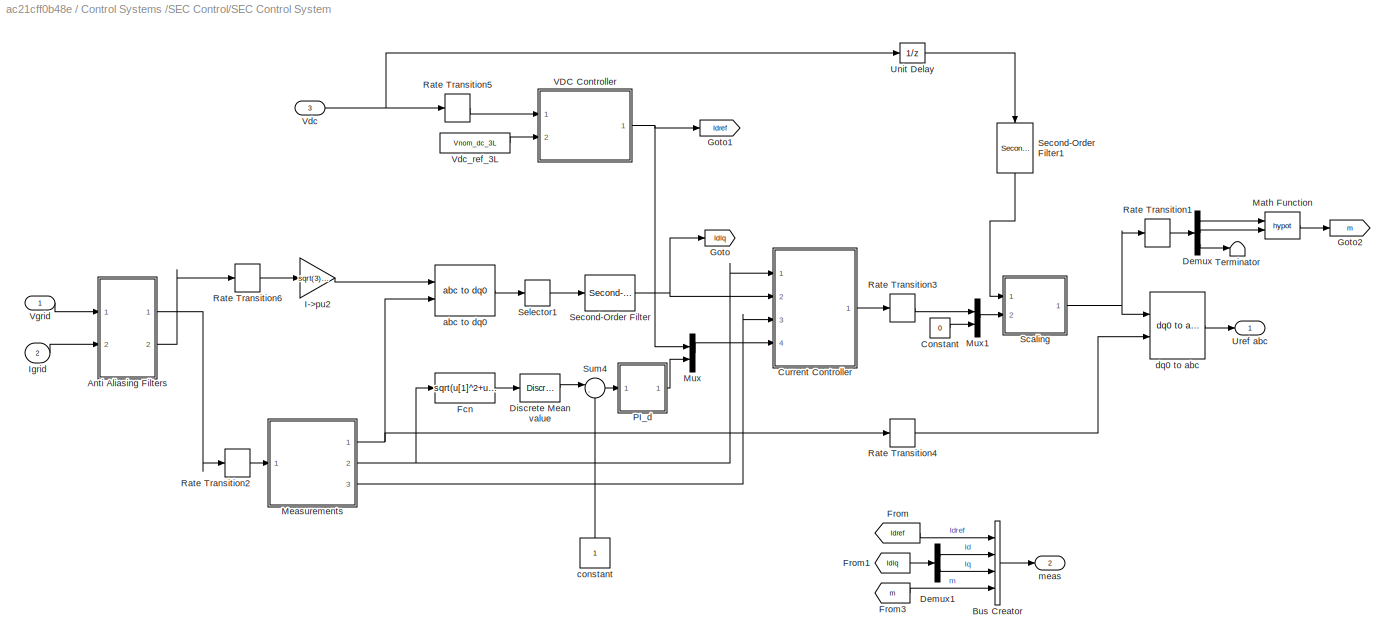
BLOCK [SubSystem] Control Systems /SEC Control/SEC Control System
  Ports = [3, 2]
  RequestExecContextInheritance = off
BLOCK [SubSystem] Control Systems /SEC Control/SEC Control System/Anti Aliasing Filters
  Ports = [2, 2]
  RequestExecContextInheritance = off
BLOCK [Outport] Control Systems /SEC Control/SEC Control System/Anti Aliasing Filters/ Vabc
  IconDisplay = Port number
BLOCK [Reference] Control Systems /SEC Control/SEC Control System/Anti Aliasing Filters/2nd-Order Filter  REF=powerlib_extras/Discrete 
Control Blocks/Discrete 
2nd-Order
Filter
  Ports = [1, 1]
  SourceBlock = powerlib_extras/Discrete \nControl Blocks/Discrete \n2nd-Order\nFilter
  SourceProductBaseCode = PS
  SourceProductName = Simscape Electrical
  SourceType = Discrete 2nd-Order Filter
BLOCK [Reference] Control Systems /SEC Control/SEC Control System/Anti Aliasing Filters/2nd-Order Filter1  REF=powerlib_extras/Discrete 
Control Blocks/Discrete 
2nd-Order
Filter
  Ports = [1, 1]
  SourceBlock = powerlib_extras/Discrete \nControl Blocks/Discrete \n2nd-Order\nFilter
  SourceProductBaseCode = PS
  SourceProductName = Simscape Electrical
  SourceType = Discrete 2nd-Order Filter
BLOCK [Reference] Control Systems /SEC Control/SEC Control System/Anti Aliasing Filters/2nd-Order Filter2  REF=powerlib_extras/Discrete 
Control Blocks/Discrete 
2nd-Order
Filter
  Ports = [1, 1]
  SourceBlock = powerlib_extras/Discrete \nControl Blocks/Discrete \n2nd-Order\nFilter
  SourceProductBaseCode = PS
  SourceProductName = Simscape Electrical
  SourceType = Discrete 2nd-Order Filter
BLOCK [Reference] Control Systems /SEC Control/SEC Control System/Anti Aliasing Filters/2nd-Order Filter3  REF=powerlib_extras/Discrete 
Control Blocks/Discrete 
2nd-Order
Filter
  Ports = [1, 1]
  SourceBlock = powerlib_extras/Discrete \nControl Blocks/Discrete \n2nd-Order\nFilter
  SourceProductBaseCode = PS
  SourceProductName = Simscape Electrical
  SourceType = Discrete 2nd-Order Filter
BLOCK [Reference] Control Systems /SEC Control/SEC Control System/Anti Aliasing Filters/2nd-Order Filter4  REF=powerlib_extras/Discrete 
Control Blocks/Discrete 
2nd-Order
Filter
  Ports = [1, 1]
  SourceBlock = powerlib_extras/Discrete \nControl Blocks/Discrete \n2nd-Order\nFilter
  SourceProductBaseCode = PS
  SourceProductName = Simscape Electrical
  SourceType = Discrete 2nd-Order Filter
BLOCK [Reference] Control Systems /SEC Control/SEC Control System/Anti Aliasing Filters/2nd-Order Filter5  REF=powerlib_extras/Discrete 
Control Blocks/Discrete 
2nd-Order
Filter
  Ports = [1, 1]
  SourceBlock = powerlib_extras/Discrete \nControl Blocks/Discrete \n2nd-Order\nFilter
  SourceProductBaseCode = PS
  SourceProductName = Simscape Electrical
  SourceType = Discrete 2nd-Order Filter
BLOCK [Demux] Control Systems /SEC Control/SEC Control System/Anti Aliasing Filters/Demux
  Outputs = 3
  Ports = [1, 3]
BLOCK [Demux] Control Systems /SEC Control/SEC Control System/Anti Aliasing Filters/Demux1
  Outputs = 3
  Ports = [1, 3]
BLOCK [Outport] Control Systems /SEC Control/SEC Control System/Anti Aliasing Filters/Iabc
  IconDisplay = Port number
  Port = 2
BLOCK [Inport] Control Systems /SEC Control/SEC Control System/Anti Aliasing Filters/Iabc 
  IconDisplay = Port number
  Port = 2
  PortDimensions = 3
BLOCK [Mux] Control Systems /SEC Control/SEC Control System/Anti Aliasing Filters/Mux
  DisplayOption = bar
  Inputs = 3
  Ports = [3, 1]
BLOCK [Mux] Control Systems /SEC Control/SEC Control System/Anti Aliasing Filters/Mux1
  DisplayOption = bar
  Inputs = 3
  Ports = [3, 1]
BLOCK [Inport] Control Systems /SEC Control/SEC Control System/Anti Aliasing Filters/Vabc
  IconDisplay = Port number
  PortDimensions = 3
BLOCK [BusCreator] Control Systems /SEC Control/SEC Control System/Bus Creator
  DisplayOption = bar
  InheritFromInputs = on
  Inputs = 4
  Ports = [4, 1]
BLOCK [Constant] Control Systems /SEC Control/SEC Control System/Constant
  Value = 0
BLOCK [SubSystem] Control Systems /SEC Control/SEC Control System/Current Controller
  Ports = [4, 1]
  RequestExecContextInheritance = off
BLOCK [Sum] Control Systems /SEC Control/SEC Control System/Current Controller/Add1
  InputSameDT = off
  Inputs = +-
  OutDataTypeStr = Inherit: Inherit via internal rule
  Ports = [2, 1]
  SaturateOnIntegerOverflow = off
BLOCK [Sum] Control Systems /SEC Control/SEC Control System/Current Controller/Add3
  InputSameDT = off
  Inputs = +-
  OutDataTypeStr = Inherit: Inherit via internal rule
  Ports = [2, 1]
  SaturateOnIntegerOverflow = off
BLOCK [Demux] Control Systems /SEC Control/SEC Control System/Current Controller/Demux1
  DisplayOption = bar
  Outputs = 2
  Ports = [1, 2]
BLOCK [Demux] Control Systems /SEC Control/SEC Control System/Current Controller/Demux2
  DisplayOption = bar
  Outputs = 2
  Ports = [1, 2]
BLOCK [Demux] Control Systems /SEC Control/SEC Control System/Current Controller/Demux3
  DisplayOption = bar
  Outputs = 2
  Ports = [1, 2]
BLOCK [Inport] Control Systems /SEC Control/SEC Control System/Current Controller/Freq
  IconDisplay = Port number
  Port = 3
  PortDimensions = 1
BLOCK [From] Control Systems /SEC Control/SEC Control System/Current Controller/From
  GotoTag = Vd
BLOCK [From] Control Systems /SEC Control/SEC Control System/Current Controller/From2
  GotoTag = Id
BLOCK [From] Control Systems /SEC Control/SEC Control System/Current Controller/From3
  GotoTag = Vq
BLOCK [From] Control Systems /SEC Control/SEC Control System/Current Controller/From4
  GotoTag = Id_ref
BLOCK [From] Control Systems /SEC Control/SEC Control System/Current Controller/From7
  GotoTag = Iq
BLOCK [From] Control Systems /SEC Control/SEC Control System/Current Controller/From8
  GotoTag = Iq_ref
BLOCK [Goto] Control Systems /SEC Control/SEC Control System/Current Controller/Goto
  GotoTag = Id
BLOCK [Goto] Control Systems /SEC Control/SEC Control System/Current Controller/Goto1
  GotoTag = w
BLOCK [Goto] Control Systems /SEC Control/SEC Control System/Current Controller/Goto2
  GotoTag = Iq
BLOCK [Goto] Control Systems /SEC Control/SEC Control System/Current Controller/Goto3
  GotoTag = Id_ref
BLOCK [Goto] Control Systems /SEC Control/SEC Control System/Current Controller/Goto4
  GotoTag = Iq_ref
BLOCK [Goto] Control Systems /SEC Control/SEC Control System/Current Controller/Goto5
  GotoTag = Vd
BLOCK [Goto] Control Systems /SEC Control/SEC Control System/Current Controller/Goto6
  GotoTag = Vq
BLOCK [Goto] Control Systems /SEC Control/SEC Control System/Current Controller/Goto7
  GotoTag = PId
BLOCK [Goto] Control Systems /SEC Control/SEC Control System/Current Controller/Goto8
  GotoTag = PIq
BLOCK [Inport] Control Systems /SEC Control/SEC Control System/Current Controller/IdIq
  IconDisplay = Port number
  Port = 2
  PortDimensions = 2
BLOCK [Inport] Control Systems /SEC Control/SEC Control System/Current Controller/IdIq_ref
  IconDisplay = Port number
  Port = 4
  PortDimensions = 2
BLOCK [Mux] Control Systems /SEC Control/SEC Control System/Current Controller/Mux
  DisplayOption = bar
  Inputs = 2
  Ports = [2, 1]
BLOCK [SubSystem] Control Systems /SEC Control/SEC Control System/Current Controller/PI_d
  DialogController = POWERSYS.PowerSysDialog
  Ports = [1, 1]
  RequestExecContextInheritance = off
BLOCK [DiscreteIntegrator] Control Systems /SEC Control/SEC Control System/Current Controller/PI_d/Discrete-Time Integrator
  ICPrevOutput = DiscIntNeverNeededParam
  ICPrevScaledInput = DiscIntNeverNeededParam
  InitialCondition = Init
  LimitOutput = on
  LowerSaturationLimit = LowerLimit
  Ports = [1, 1]
  SampleTime = Ts
  UpperSaturationLimit = UpperLimit
BLOCK [Inport] Control Systems /SEC Control/SEC Control System/Current Controller/PI_d/Error
  IconDisplay = Port number
  SampleTime = Ts
BLOCK [Gain] Control Systems /SEC Control/SEC Control System/Current Controller/PI_d/Kp4
  Gain = Kp
  SampleTime = Ts
BLOCK [Gain] Control Systems /SEC Control/SEC Control System/Current Controller/PI_d/Kp5
  Gain = Ki
  SampleTime = Ts
BLOCK [Outport] Control Systems /SEC Control/SEC Control System/Current Controller/PI_d/Out
  IconDisplay = Port number
  InitialOutput = 0
  SampleTime = Ts
BLOCK [Saturate] Control Systems /SEC Control/SEC Control System/Current Controller/PI_d/Saturation2
  InputPortMap = u0
  LowerLimit = LowerLimit
  Ports = [1, 1]
  SampleTime = Ts
  UpperLimit = UpperLimit
BLOCK [Sum] Control Systems /SEC Control/SEC Control System/Current Controller/PI_d/Sum6
  Ports = [2, 1]
  SampleTime = Ts
BLOCK [ZeroOrderHold] Control Systems /SEC Control/SEC Control System/Current Controller/PI_d/Zero-Order Hold
  SampleTime = Ts
BLOCK [SubSystem] Control Systems /SEC Control/SEC Control System/Current Controller/PI_q
  DialogController = POWERSYS.PowerSysDialog
  Ports = [1, 1]
  RequestExecContextInheritance = off
BLOCK [DiscreteIntegrator] Control Systems /SEC Control/SEC Control System/Current Controller/PI_q/Discrete-Time Integrator
  ICPrevOutput = DiscIntNeverNeededParam
  ICPrevScaledInput = DiscIntNeverNeededParam
  InitialCondition = Init
  LimitOutput = on
  LowerSaturationLimit = LowerLimit
  Ports = [1, 1]
  SampleTime = Ts
  UpperSaturationLimit = UpperLimit
BLOCK [Inport] Control Systems /SEC Control/SEC Control System/Current Controller/PI_q/Error
  IconDisplay = Port number
  SampleTime = Ts
BLOCK [Gain] Control Systems /SEC Control/SEC Control System/Current Controller/PI_q/Kp4
  Gain = Kp
  SampleTime = Ts
BLOCK [Gain] Control Systems /SEC Control/SEC Control System/Current Controller/PI_q/Kp5
  Gain = Ki
  SampleTime = Ts
BLOCK [Outport] Control Systems /SEC Control/SEC Control System/Current Controller/PI_q/Out
  IconDisplay = Port number
  InitialOutput = 0
  SampleTime = Ts
BLOCK [Saturate] Control Systems /SEC Control/SEC Control System/Current Controller/PI_q/Saturation2
  InputPortMap = u0
  LowerLimit = LowerLimit
  Ports = [1, 1]
  SampleTime = Ts
  UpperLimit = UpperLimit
BLOCK [Sum] Control Systems /SEC Control/SEC Control System/Current Controller/PI_q/Sum6
  Ports = [2, 1]
  SampleTime = Ts
BLOCK [ZeroOrderHold] Control Systems /SEC Control/SEC Control System/Current Controller/PI_q/Zero-Order Hold
  SampleTime = Ts
BLOCK [SubSystem] Control Systems /SEC Control/SEC Control System/Current Controller/PQ
  Ports = [4, 2]
  RequestExecContextInheritance = off
BLOCK [Sum] Control Systems /SEC Control/SEC Control System/Current Controller/PQ/Add
  InputSameDT = off
  OutDataTypeStr = Inherit: Inherit via internal rule
  Ports = [2, 1]
  SaturateOnIntegerOverflow = off
BLOCK [Sum] Control Systems /SEC Control/SEC Control System/Current Controller/PQ/Add1
  InputSameDT = off
  Inputs = +-
  OutDataTypeStr = Inherit: Inherit via internal rule
  Ports = [2, 1]
  SaturateOnIntegerOverflow = off
BLOCK [Outport] Control Systems /SEC Control/SEC Control System/Current Controller/PQ/P
  IconDisplay = Port number
BLOCK [Product] Control Systems /SEC Control/SEC Control System/Current Controller/PQ/Product
  InputSameDT = off
  OutDataTypeStr = Inherit: Inherit via internal rule
  Ports = [2, 1]
  RndMeth = Floor
  SaturateOnIntegerOverflow = off
BLOCK [Product] Control Systems /SEC Control/SEC Control System/Current Controller/PQ/Product1
  InputSameDT = off
  OutDataTypeStr = Inherit: Inherit via internal rule
  Ports = [2, 1]
  RndMeth = Floor
  SaturateOnIntegerOverflow = off
BLOCK [Product] Control Systems /SEC Control/SEC Control System/Current Controller/PQ/Product2
  InputSameDT = off
  OutDataTypeStr = Inherit: Inherit via internal rule
  Ports = [2, 1]
  RndMeth = Floor
  SaturateOnIntegerOverflow = off
BLOCK [Product] Control Systems /SEC Control/SEC Control System/Current Controller/PQ/Product3
  InputSameDT = off
  OutDataTypeStr = Inherit: Inherit via internal rule
  Ports = [2, 1]
  RndMeth = Floor
  SaturateOnIntegerOverflow = off
BLOCK [Outport] Control Systems /SEC Control/SEC Control System/Current Controller/PQ/Q
  IconDisplay = Port number
  Port = 2
BLOCK [Inport] Control Systems /SEC Control/SEC Control System/Current Controller/PQ/id
  IconDisplay = Port number
  Port = 2
BLOCK [Inport] Control Systems /SEC Control/SEC Control System/Current Controller/PQ/iq
  IconDisplay = Port number
  Port = 4
BLOCK [Inport] Control Systems /SEC Control/SEC Control System/Current Controller/PQ/ud
  IconDisplay = Port number
BLOCK [Inport] Control Systems /SEC Control/SEC Control System/Current Controller/PQ/uq
  IconDisplay = Port number
  Port = 3
BLOCK [Gain] Control Systems /SEC Control/SEC Control System/Current Controller/Rtot_pu3
  Gain = 1/Fnom
BLOCK [Saturate] Control Systems /SEC Control/SEC Control System/Current Controller/Saturation
  InputPortMap = u0
  LowerLimit = LimitL_Ireg_3L
  Ports = [1, 1]
  UpperLimit = LimitU_Ireg_3L
BLOCK [Sum] Control Systems /SEC Control/SEC Control System/Current Controller/Sum
  IconShape = round
  InputSameDT = off
  Inputs = |-+
  OutDataTypeStr = Inherit: Inherit via internal rule
  Ports = [2, 1]
  SaturateOnIntegerOverflow = off
BLOCK [Sum] Control Systems /SEC Control/SEC Control System/Current Controller/Sum1
  IconShape = round
  InputSameDT = off
  Inputs = |-+
  OutDataTypeStr = Inherit: Inherit via internal rule
  Ports = [2, 1]
  SaturateOnIntegerOverflow = off
BLOCK [Inport] Control Systems /SEC Control/SEC Control System/Current Controller/VdVq
  IconDisplay = Port number
  PortDimensions = 2
BLOCK [Outport] Control Systems /SEC Control/SEC Control System/Current Controller/VdVq_conv
  IconDisplay = Port number
BLOCK [Scope] Control Systems /SEC Control/SEC Control System/Current Controller/Vdc_3L3
  Floating = off
  NumInputPorts = 2
  Ports = [2]
  ScopeSpecificationString = Simulink.scopes.TimeScopeBlockCfg('CurrentConfiguration', extmgr.ConfigurationSet(extmgr.Configuration('Core','General UI',true),extmgr.Configuration('Core','Source UI',true),extmgr.Configuration('Sources','WiredSimulink',true,'DataLoggingVariableName','ScopeData6'),extmgr.Configuration('Visuals','Time Domain',true,'SerializedDisplays',{struct('MinYLimReal','-2.43506','MaxYLimReal','6.75175','YLab...<+2077ch>
BLOCK [Demux] Control Systems /SEC Control/SEC Control System/Demux
  DisplayOption = bar
  Outputs = 3
  Ports = [1, 3]
BLOCK [Demux] Control Systems /SEC Control/SEC Control System/Demux1
  DisplayOption = bar
  Outputs = 2
  Ports = [1, 2]
BLOCK [Reference] Control Systems /SEC Control/SEC Control System/Discrete Mean value  REF=powerlib_extras/Discrete
Measurements/Discrete 
Mean value
  Ports = [1, 1]
  SourceBlock = powerlib_extras/Discrete\nMeasurements/Discrete \nMean value
  SourceProductBaseCode = PS
  SourceProductName = Simscape Electrical
  SourceType = Discrete Mean value
BLOCK [Fcn] Control Systems /SEC Control/SEC Control System/Fcn
  Expr = sqrt(u[1]^2+u[2]^2)
  SampleTime = Ts_Control
BLOCK [From] Control Systems /SEC Control/SEC Control System/From
  GotoTag = Idref
BLOCK [From] Control Systems /SEC Control/SEC Control System/From1
  GotoTag = IdIq
BLOCK [From] Control Systems /SEC Control/SEC Control System/From3
  GotoTag = m
BLOCK [Goto] Control Systems /SEC Control/SEC Control System/Goto
  GotoTag = IdIq
BLOCK [Goto] Control Systems /SEC Control/SEC Control System/Goto1
  GotoTag = Idref
BLOCK [Goto] Control Systems /SEC Control/SEC Control System/Goto2
  GotoTag = m
BLOCK [Gain] Control Systems /SEC Control/SEC Control System/I->pu2
  Gain = sqrt(3)*Vnom_prim_3L/sqrt(2)/Pnom_3L
BLOCK [Inport] Control Systems /SEC Control/SEC Control System/Igrid
  IconDisplay = Port number
  Port = 2
  PortDimensions = 3
BLOCK [Math] Control Systems /SEC Control/SEC Control System/Math Function
  Operator = hypot
  Ports = [2, 1]
BLOCK [SubSystem] Control Systems /SEC Control/SEC Control System/Measurements
  Ports = [1, 3]
  RequestExecContextInheritance = off
BLOCK [Outport] Control Systems /SEC Control/SEC Control System/Measurements/Freq
  IconDisplay = Port number
  Port = 3
BLOCK [Reference] Control Systems /SEC Control/SEC Control System/Measurements/PLL (3ph)  REF=powerlib_meascontrol/PLL/PLL
(3ph)
  Ports = [1, 2]
  SourceBlock = powerlib_meascontrol/PLL/PLL\n(3ph)
  SourceProductBaseCode = PS
  SourceProductName = Simscape Electrical
  SourceType = PLL (3ph)
BLOCK [Selector] Control Systems /SEC Control/SEC Control System/Measurements/Selector2
  IndexOptions = Index vector (dialog)
  Indices = [1 2]
  InputPortWidth = 3
  OutputSizes = 1
  Ports = [1, 1]
BLOCK [Gain] Control Systems /SEC Control/SEC Control System/Measurements/V->pu1
  Gain = 1/(Vnom_prim_3L*sqrt(2)/sqrt(3))
BLOCK [Inport] Control Systems /SEC Control/SEC Control System/Measurements/Vabc
  IconDisplay = Port number
  PortDimensions = 3
BLOCK [Outport] Control Systems /SEC Control/SEC Control System/Measurements/VdVq
  IconDisplay = Port number
  Port = 2
BLOCK [Reference] Control Systems /SEC Control/SEC Control System/Measurements/abc to dq1  REF=powerlib_meascontrol/Transformations/abc to dq0
  Ports = [2, 1]
  SourceBlock = powerlib_meascontrol/Transformations/abc to dq0
  SourceProductBaseCode = PS
  SourceProductName = Simscape Electrical
  SourceType = abc to dq0 Transformation
BLOCK [Outport] Control Systems /SEC Control/SEC Control System/Measurements/wt
  IconDisplay = Port number
BLOCK [Mux] Control Systems /SEC Control/SEC Control System/Mux
  DisplayOption = bar
  Inputs = 2
  Ports = [2, 1]
BLOCK [Mux] Control Systems /SEC Control/SEC Control System/Mux1
  DisplayOption = bar
  Inputs = [2 1]
  Ports = [2, 1]
BLOCK [SubSystem] Control Systems /SEC Control/SEC Control System/PI_d
  DialogController = POWERSYS.PowerSysDialog
  Ports = [1, 1]
  RequestExecContextInheritance = off
BLOCK [DiscreteIntegrator] Control Systems /SEC Control/SEC Control System/PI_d/Discrete-Time Integrator
  ICPrevOutput = DiscIntNeverNeededParam
  ICPrevScaledInput = DiscIntNeverNeededParam
  InitialCondition = Init
  LimitOutput = on
  LowerSaturationLimit = LowerLimit
  Ports = [1, 1]
  SampleTime = Ts
  UpperSaturationLimit = UpperLimit
BLOCK [Inport] Control Systems /SEC Control/SEC Control System/PI_d/Error
  IconDisplay = Port number
  SampleTime = Ts
BLOCK [Gain] Control Systems /SEC Control/SEC Control System/PI_d/Kp4
  Gain = Kp
  SampleTime = Ts
BLOCK [Gain] Control Systems /SEC Control/SEC Control System/PI_d/Kp5
  Gain = Ki
  SampleTime = Ts
BLOCK [Outport] Control Systems /SEC Control/SEC Control System/PI_d/Out
  IconDisplay = Port number
  InitialOutput = 0
  SampleTime = Ts
BLOCK [Saturate] Control Systems /SEC Control/SEC Control System/PI_d/Saturation2
  InputPortMap = u0
  LowerLimit = LowerLimit
  Ports = [1, 1]
  SampleTime = Ts
  UpperLimit = UpperLimit
BLOCK [Sum] Control Systems /SEC Control/SEC Control System/PI_d/Sum6
  Ports = [2, 1]
  SampleTime = Ts
BLOCK [ZeroOrderHold] Control Systems /SEC Control/SEC Control System/PI_d/Zero-Order Hold
  SampleTime = Ts
BLOCK [RateTransition] Control Systems /SEC Control/SEC Control System/Rate Transition1
  OutPortSampleTime = Ts_Control
BLOCK [RateTransition] Control Systems /SEC Control/SEC Control System/Rate Transition2
  OutPortSampleTime = Ts_Control
BLOCK [RateTransition] Control Systems /SEC Control/SEC Control System/Rate Transition3
  OutPortSampleTime = Ts_PWM
BLOCK [RateTransition] Control Systems /SEC Control/SEC Control System/Rate Transition4
  OutPortSampleTime = Ts_PWM
BLOCK [RateTransition] Control Systems /SEC Control/SEC Control System/Rate Transition5
  OutPortSampleTime = Ts_Control
BLOCK [RateTransition] Control Systems /SEC Control/SEC Control System/Rate Transition6
  OutPortSampleTime = Ts_Control
BLOCK [SubSystem] Control Systems /SEC Control/SEC Control System/Scaling
  Ports = [2, 1]
  RequestExecContextInheritance = off
BLOCK [Saturate] Control Systems /SEC Control/SEC Control System/Scaling/0.8 to 1.2 x Vnom_dc
  InputPortMap = u0
  LowerLimit = 0.5*Vnom_dc_3L
  Ports = [1, 1]
  UpperLimit = 1.5*Vnom_dc_3L
BLOCK [Constant] Control Systems /SEC Control/SEC Control System/Scaling/Constant1
  Value = Vnom_sec_3L
BLOCK [Gain] Control Systems /SEC Control/SEC Control System/Scaling/Gain1
  Gain = 0.5/sqrt(2)*sqrt(3)
  OutDataTypeStr = Inherit: Inherit via internal rule
  ParamDataTypeStr = Inherit: Inherit via internal rule
  SaturateOnIntegerOverflow = off
BLOCK [Product] Control Systems /SEC Control/SEC Control System/Scaling/Product
  InputSameDT = off
  Inputs = */
  OutDataTypeStr = Inherit: Inherit via internal rule
  Ports = [2, 1]
  RndMeth = Floor
  SaturateOnIntegerOverflow = off
BLOCK [Product] Control Systems /SEC Control/SEC Control System/Scaling/Product1
  InputSameDT = off
  Inputs = **
  OutDataTypeStr = Inherit: Inherit via internal rule
  Ports = [2, 1]
  RndMeth = Floor
  SaturateOnIntegerOverflow = off
BLOCK [Inport] Control Systems /SEC Control/SEC Control System/Scaling/VdVq
  IconDisplay = Port number
  Port = 2
BLOCK [Outport] Control Systems /SEC Control/SEC Control System/Scaling/VdVq*
  IconDisplay = Port number
BLOCK [Inport] Control Systems /SEC Control/SEC Control System/Scaling/Vdc
  IconDisplay = Port number
BLOCK [Reference] Control Systems /SEC Control/SEC Control System/Second-Order Filter  REF=powerlib_meascontrol/Filters/Second-Order
Filter
  Ports = [1, 1]
  SourceBlock = powerlib_meascontrol/Filters/Second-Order\nFilter
  SourceProductBaseCode = PS
  SourceProductName = Simscape Electrical
  SourceType = Second-Order Filter
BLOCK [Reference] Control Systems /SEC Control/SEC Control System/Second-Order Filter1  REF=powerlib_meascontrol/Filters/Second-Order
Filter
  Ports = [1, 1]
  SourceBlock = powerlib_meascontrol/Filters/Second-Order\nFilter
  SourceProductBaseCode = PS
  SourceProductName = Simscape Electrical
  SourceType = Second-Order Filter
BLOCK [Selector] Control Systems /SEC Control/SEC Control System/Selector1
  IndexOptions = Index vector (dialog)
  Indices = [1 2]
  InputPortWidth = 3
  OutputSizes = 1
  Ports = [1, 1]
BLOCK [Sum] Control Systems /SEC Control/SEC Control System/Sum4
  IconShape = round
  InputSameDT = off
  Inputs = |-+
  OutDataTypeStr = Inherit: Inherit via internal rule
  Ports = [2, 1]
  SaturateOnIntegerOverflow = off
BLOCK [Terminator] Control Systems /SEC Control/SEC Control System/Terminator
BLOCK [UnitDelay] Control Systems /SEC Control/SEC Control System/Unit Delay
  HasFrameUpgradeWarning = on
  SampleTime = Ts_PWM
BLOCK [Outport] Control Systems /SEC Control/SEC Control System/Uref abc
  IconDisplay = Port number
BLOCK [SubSystem] Control Systems /SEC Control/SEC Control System/VDC Controller
  Ports = [2, 1]
  RequestExecContextInheritance = off
BLOCK [Gain] Control Systems /SEC Control/SEC Control System/VDC Controller/Gain
  Gain = 1/(Vnom_dc_3L)
  OutDataTypeStr = Inherit: Inherit via internal rule
  ParamDataTypeStr = Inherit: Inherit via internal rule
  SaturateOnIntegerOverflow = off
BLOCK [Outport] Control Systems /SEC Control/SEC Control System/VDC Controller/Idref
  IconDisplay = Port number
BLOCK [SubSystem] Control Systems /SEC Control/SEC Control System/VDC Controller/PI_d
  DialogController = POWERSYS.PowerSysDialog
  Ports = [1, 1]
  RequestExecContextInheritance = off
BLOCK [DiscreteIntegrator] Control Systems /SEC Control/SEC Control System/VDC Controller/PI_d/Discrete-Time Integrator
  ICPrevOutput = DiscIntNeverNeededParam
  ICPrevScaledInput = DiscIntNeverNeededParam
  InitialCondition = Init
  LimitOutput = on
  LowerSaturationLimit = LowerLimit
  Ports = [1, 1]
  SampleTime = Ts
  UpperSaturationLimit = UpperLimit
BLOCK [Inport] Control Systems /SEC Control/SEC Control System/VDC Controller/PI_d/Error
  IconDisplay = Port number
  SampleTime = Ts
BLOCK [Gain] Control Systems /SEC Control/SEC Control System/VDC Controller/PI_d/Kp4
  Gain = Kp
  SampleTime = Ts
BLOCK [Gain] Control Systems /SEC Control/SEC Control System/VDC Controller/PI_d/Kp5
  Gain = Ki
  SampleTime = Ts
BLOCK [Outport] Control Systems /SEC Control/SEC Control System/VDC Controller/PI_d/Out
  IconDisplay = Port number
  InitialOutput = 0
  SampleTime = Ts
BLOCK [Saturate] Control Systems /SEC Control/SEC Control System/VDC Controller/PI_d/Saturation2
  InputPortMap = u0
  LowerLimit = LowerLimit
  Ports = [1, 1]
  SampleTime = Ts
  UpperLimit = UpperLimit
BLOCK [Sum] Control Systems /SEC Control/SEC Control System/VDC Controller/PI_d/Sum6
  Ports = [2, 1]
  SampleTime = Ts
BLOCK [ZeroOrderHold] Control Systems /SEC Control/SEC Control System/VDC Controller/PI_d/Zero-Order Hold
  SampleTime = Ts
BLOCK [Sum] Control Systems /SEC Control/SEC Control System/VDC Controller/Sum
  IconShape = round
  InputSameDT = off
  Inputs = |+-
  OutDataTypeStr = Inherit: Inherit via internal rule
  Ports = [2, 1]
  SaturateOnIntegerOverflow = off
BLOCK [Inport] Control Systems /SEC Control/SEC Control System/VDC Controller/Vdc
  IconDisplay = Port number
  PortDimensions = 1
BLOCK [Inport] Control Systems /SEC Control/SEC Control System/VDC Controller/Vdc_ref
  IconDisplay = Port number
  Port = 2
  PortDimensions = 1
BLOCK [Inport] Control Systems /SEC Control/SEC Control System/Vdc
  IconDisplay = Port number
  Port = 3
BLOCK [Constant] Control Systems /SEC Control/SEC Control System/Vdc_ref_3L
  Value = Vnom_dc_3L
BLOCK [Inport] Control Systems /SEC Control/SEC Control System/Vgrid
  IconDisplay = Port number
  PortDimensions = 3
BLOCK [Reference] Control Systems /SEC Control/SEC Control System/abc to dq0  REF=powerlib_meascontrol/Transformations/abc to dq0
  Ports = [2, 1]
  SourceBlock = powerlib_meascontrol/Transformations/abc to dq0
  SourceProductBaseCode = PS
  SourceProductName = Simscape Electrical
  SourceType = abc to dq0 Transformation
BLOCK [Constant] Control Systems /SEC Control/SEC Control System/constant
  SampleTime = Ts_Control
BLOCK [Reference] Control Systems /SEC Control/SEC Control System/dq0 to abc  REF=powerlib_meascontrol/Transformations/dq0 to abc
  Ports = [2, 1]
  SourceBlock = powerlib_meascontrol/Transformations/dq0 to abc
  SourceProductBaseCode = PS
  SourceProductName = Simscape Electrical
  SourceType = dq0 to abc Transformation
BLOCK [Outport] Control Systems /SEC Control/SEC Control System/meas
  IconDisplay = Port number
  Port = 2
BLOCK [UnitDelay] Control Systems /SEC Control/Unit Delay
  HasFrameUpgradeWarning = on
  SampleTime = Ts_Power
BLOCK [UnitDelay] Control Systems /SEC Control/Unit Delay1
  HasFrameUpgradeWarning = on
  SampleTime = Ts_Power
BLOCK [UnitDelay] Control Systems /SEC Control/Unit Delay2
  HasFrameUpgradeWarning = on
  SampleTime = Ts_Power
BLOCK [Reference] Equiv. 500kV 6500 MVA  REF=powerlib/Electrical
Sources/Three-Phase Source
  Ports = [0, 0, 0, 0, 0, 0, 3]
  SourceBlock = powerlib/Electrical\nSources/Three-Phase Source
  SourceProductBaseCode = PS
  SourceProductName = Simscape Electrical
  SourceType = Three-Phase Source
BLOCK [Reference] Equiv. 500kV 9000 MVA  REF=powerlib/Electrical
Sources/Three-Phase Source
  Ports = [0, 0, 0, 0, 0, 0, 3]
  SourceBlock = powerlib/Electrical\nSources/Three-Phase Source
  SourceProductBaseCode = PS
  SourceProductName = Simscape Electrical
  SourceType = Three-Phase Source
BLOCK [Reference] L1_200 km  REF=powerlib/Elements/Distributed Parameters Line
  AttributesFormatString = \n
  Ports = [0, 0, 0, 0, 0, 3, 3]
  SourceBlock = powerlib/Elements/Distributed Parameters Line
  SourceProductBaseCode = PS
  SourceProductName = Simscape Electrical
  SourceType = Distributed Parameters Line
BLOCK [Reference] L2_75km  REF=powerlib/Elements/Distributed Parameters Line
  AttributesFormatString = \n
  Ports = [0, 0, 0, 0, 0, 3, 3]
  SourceBlock = powerlib/Elements/Distributed Parameters Line
  SourceProductBaseCode = PS
  SourceProductName = Simscape Electrical
  SourceType = Distributed Parameters Line
BLOCK [Reference] L3_180 km  REF=powerlib/Elements/Distributed Parameters Line
  AttributesFormatString = \n
  Ports = [0, 0, 0, 0, 0, 3, 3]
  SourceBlock = powerlib/Elements/Distributed Parameters Line
  SourceProductBaseCode = PS
  SourceProductName = Simscape Electrical
  SourceType = Distributed Parameters Line
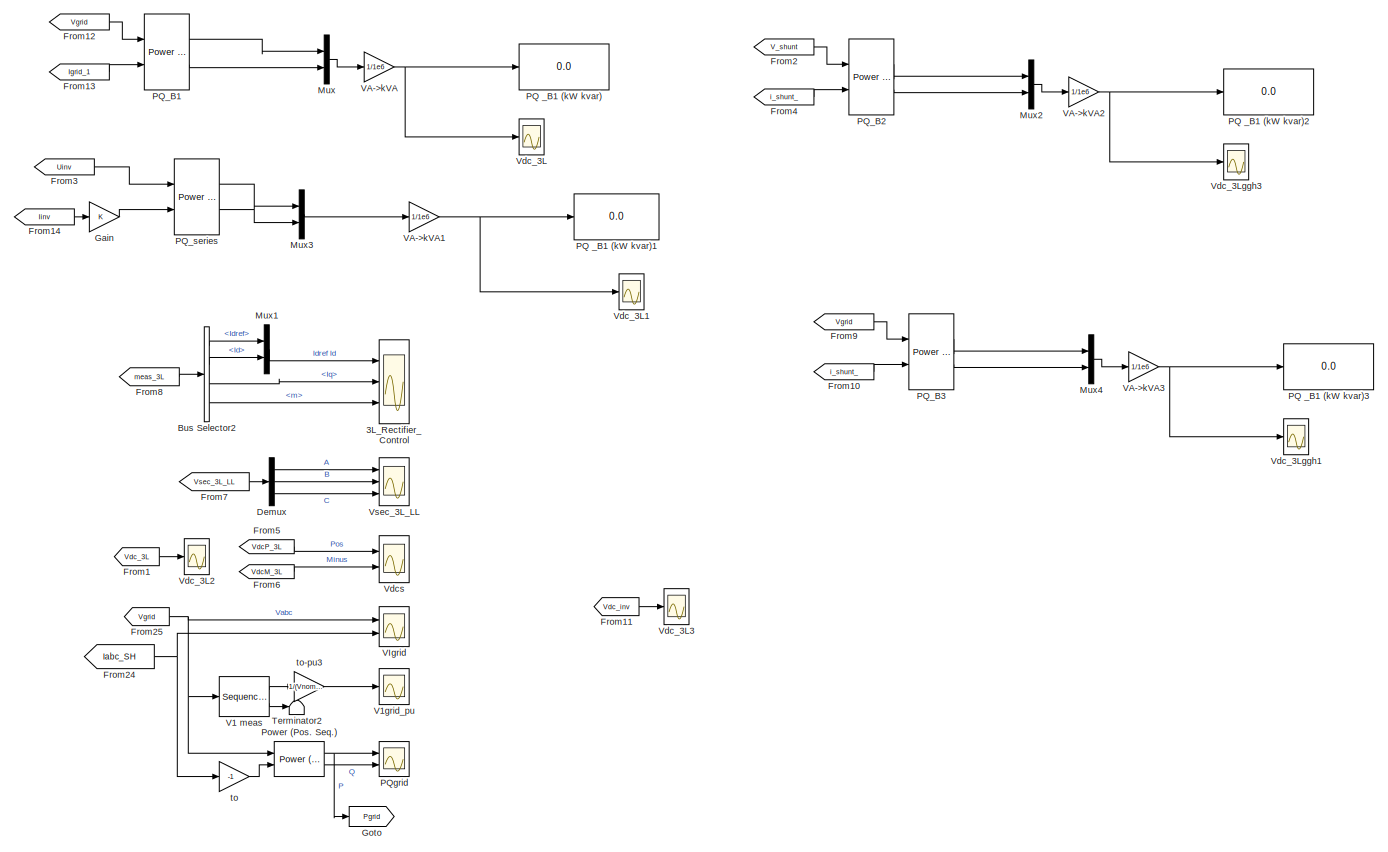
[diagram: Power_measurements - part 1/1, most of the canvas]
BLOCK [SubSystem] Power_measurements
  Ports = []
  RequestExecContextInheritance = off
BLOCK [Scope] Power_measurements/3L_Rectifier_Control
  Floating = off
  NumInputPorts = 3
  Ports = [3]
  ScopeSpecificationString = Simulink.scopes.TimeScopeBlockCfg('CurrentConfiguration', extmgr.ConfigurationSet(extmgr.Configuration('Core','General UI',true,'FigureColor',[0.156862745098039 0.156862745098039 0.156862745098039]),extmgr.Configuration('Core','Source UI',true),extmgr.Configuration('Sources','WiredSimulink',true,'DataLoggingVariableName','ScopeData1','DataLoggingSaveFormat','StructureWithTime','DataLoggingDecimati...<+3124ch>
BLOCK [BusSelector] Power_measurements/Bus Selector2
  OutputAsBus = off
  OutputSignals = Idref,Id,Iq,m
  Ports = [1, 4]
BLOCK [Demux] Power_measurements/Demux
  DisplayOption = bar
  Outputs = 3
  Ports = [1, 3]
BLOCK [From] Power_measurements/From1
  GotoTag = Vdc_3L
  TagVisibility = global
BLOCK [From] Power_measurements/From10
  CloseFcn = tagdialog Close
  GotoTag = i_shunt_
  TagVisibility = global
BLOCK [From] Power_measurements/From11
  GotoTag = Vdc_inv
  TagVisibility = global
BLOCK [From] Power_measurements/From12
  CloseFcn = tagdialog Close
  GotoTag = Vgrid
  TagVisibility = global
BLOCK [From] Power_measurements/From13
  CloseFcn = tagdialog Close
  GotoTag = Igrid_1
  TagVisibility = global
BLOCK [From] Power_measurements/From14
  CloseFcn = tagdialog Close
  GotoTag = Iinv
  TagVisibility = global
BLOCK [From] Power_measurements/From2
  CloseFcn = tagdialog Close
  GotoTag = V_shunt
  TagVisibility = global
BLOCK [From] Power_measurements/From24
  GotoTag = Iabc_SH
  TagVisibility = global
BLOCK [From] Power_measurements/From25
  GotoTag = Vgrid
  TagVisibility = global
BLOCK [From] Power_measurements/From3
  CloseFcn = tagdialog Close
  GotoTag = Uinv
  TagVisibility = global
BLOCK [From] Power_measurements/From4
  CloseFcn = tagdialog Close
  GotoTag = i_shunt_
  TagVisibility = global
BLOCK [From] Power_measurements/From5
  GotoTag = VdcP_3L
  TagVisibility = global
BLOCK [From] Power_measurements/From6
  GotoTag = VdcM_3L
  TagVisibility = global
BLOCK [From] Power_measurements/From7
  GotoTag = Vsec_3L_LL
  TagVisibility = global
BLOCK [From] Power_measurements/From8
  GotoTag = meas_3L
  TagVisibility = global
BLOCK [From] Power_measurements/From9
  CloseFcn = tagdialog Close
  GotoTag = Vgrid
  TagVisibility = global
BLOCK [Gain] Power_measurements/Gain
  OutDataTypeStr = Inherit: Inherit via internal rule
  ParamDataTypeStr = Inherit: Inherit via internal rule
  SaturateOnIntegerOverflow = off
BLOCK [Goto] Power_measurements/Goto
  GotoTag = Pgrid
BLOCK [Mux] Power_measurements/Mux
  DisplayOption = bar
  Inputs = 2
  Ports = [2, 1]
BLOCK [Mux] Power_measurements/Mux1
  DisplayOption = bar
  Inputs = 2
  Ports = [2, 1]
BLOCK [Mux] Power_measurements/Mux2
  DisplayOption = bar
  Inputs = 2
  Ports = [2, 1]
BLOCK [Mux] Power_measurements/Mux3
  DisplayOption = bar
  Inputs = 2
  Ports = [2, 1]
BLOCK [Mux] Power_measurements/Mux4
  DisplayOption = bar
  Inputs = 2
  Ports = [2, 1]
BLOCK [Display] Power_measurements/PQ _B1 (kW kvar)
  Decimation = 2000
  Format = bank
  Ports = [1]
BLOCK [Display] Power_measurements/PQ _B1 (kW kvar)1
  Decimation = 2000
  Format = bank
  Ports = [1]
BLOCK [Display] Power_measurements/PQ _B1 (kW kvar)2
  Decimation = 2000
  Format = bank
  Ports = [1]
BLOCK [Display] Power_measurements/PQ _B1 (kW kvar)3
  Decimation = 2000
  Format = bank
  Ports = [1]
BLOCK [Reference] Power_measurements/PQ_B1  REF=powerlib_meascontrol/Measurements/Power
(Positive-Sequence)
  Ports = [2, 2]
  SourceBlock = powerlib_meascontrol/Measurements/Power\n(Positive-Sequence)
  SourceProductBaseCode = PS
  SourceProductName = Simscape Electrical
  SourceType = Power (Positive-Sequence)
BLOCK [Reference] Power_measurements/PQ_B2  REF=powerlib_meascontrol/Measurements/Power
(Positive-Sequence)
  Ports = [2, 2]
  SourceBlock = powerlib_meascontrol/Measurements/Power\n(Positive-Sequence)
  SourceProductBaseCode = PS
  SourceProductName = Simscape Electrical
  SourceType = Power (Positive-Sequence)
BLOCK [Reference] Power_measurements/PQ_B3  REF=powerlib_meascontrol/Measurements/Power
(Positive-Sequence)
  Ports = [2, 2]
  SourceBlock = powerlib_meascontrol/Measurements/Power\n(Positive-Sequence)
  SourceProductBaseCode = PS
  SourceProductName = Simscape Electrical
  SourceType = Power (Positive-Sequence)
BLOCK [Reference] Power_measurements/PQ_series  REF=powerlib_meascontrol/Measurements/Power
(Positive-Sequence)
  Ports = [2, 2]
  SourceBlock = powerlib_meascontrol/Measurements/Power\n(Positive-Sequence)
  SourceProductBaseCode = PS
  SourceProductName = Simscape Electrical
  SourceType = Power (Positive-Sequence)
BLOCK [Scope] Power_measurements/PQgrid
  Floating = off
  NumInputPorts = 2
  Ports = [2]
  ScopeSpecificationString = Simulink.scopes.TimeScopeBlockCfg('CurrentConfiguration', extmgr.ConfigurationSet(extmgr.Configuration('Core','General UI',true),extmgr.Configuration('Core','Source UI',true),extmgr.Configuration('Sources','WiredSimulink',true,'DataLoggingVariableName','ScopeData2','DataLoggingSaveFormat','Array','DataLoggingDecimation','1','DataLoggingDecimateData',true),extmgr.Configuration('Visuals','Time Domai...<+1607ch>
BLOCK [Reference] Power_measurements/Power (Pos. Seq.)  REF=powerlib_meascontrol/Measurements/Power
(Positive-Sequence)
  Ports = [2, 2]
  SourceBlock = powerlib_meascontrol/Measurements/Power\n(Positive-Sequence)
  SourceProductBaseCode = PS
  SourceProductName = Simscape Electrical
  SourceType = Power (Positive-Sequence)
BLOCK [Terminator] Power_measurements/Terminator2
BLOCK [Reference] Power_measurements/V1 meas  REF=powerlib_meascontrol/Measurements/Sequence Analyzer
  Ports = [1, 2]
  SourceBlock = powerlib_meascontrol/Measurements/Sequence Analyzer
  SourceProductBaseCode = PS
  SourceProductName = Simscape Electrical
  SourceType = Sequence Analyzer
BLOCK [Scope] Power_measurements/V1grid_pu
  Floating = off
  NumInputPorts = 1
  Ports = [1]
  ScopeSpecificationString = Simulink.scopes.TimeScopeBlockCfg('CurrentConfiguration', extmgr.ConfigurationSet(extmgr.Configuration('Core','General UI',true),extmgr.Configuration('Core','Source UI',true),extmgr.Configuration('Sources','WiredSimulink',true,'DataLoggingVariableName','ScopeData3','DataLoggingLimitDataPoints',true,'DataLoggingSaveFormat','Array','DataLoggingDecimation','1','DataLoggingDecimateData',true),extmgr.C...<+1513ch>
BLOCK [Gain] Power_measurements/VA->kVA
  Gain = 1/1e6
  OutDataTypeStr = Inherit: Inherit via internal rule
  ParamDataTypeStr = Inherit: Inherit via internal rule
  SaturateOnIntegerOverflow = off
BLOCK [Gain] Power_measurements/VA->kVA1
  Gain = 1/1e6
  OutDataTypeStr = Inherit: Inherit via internal rule
  ParamDataTypeStr = Inherit: Inherit via internal rule
  SaturateOnIntegerOverflow = off
BLOCK [Gain] Power_measurements/VA->kVA2
  Gain = 1/1e6
  OutDataTypeStr = Inherit: Inherit via internal rule
  ParamDataTypeStr = Inherit: Inherit via internal rule
  SaturateOnIntegerOverflow = off
BLOCK [Gain] Power_measurements/VA->kVA3
  Gain = 1/1e6
  OutDataTypeStr = Inherit: Inherit via internal rule
  ParamDataTypeStr = Inherit: Inherit via internal rule
  SaturateOnIntegerOverflow = off
BLOCK [Scope] Power_measurements/VIgrid
  Floating = off
  NumInputPorts = 2
  Ports = [2]
  ScopeSpecificationString = Simulink.scopes.TimeScopeBlockCfg('CurrentConfiguration', extmgr.ConfigurationSet(extmgr.Configuration('Core','General UI',true,'FigureColor',[0.156862745098039 0.156862745098039 0.156862745098039]),extmgr.Configuration('Core','Source UI',true),extmgr.Configuration('Sources','WiredSimulink',true,'DataLogging',true,'DataLoggingVariableName','ScopeData4','DataLoggingSaveFormat','StructureWithTime','...<+2460ch>
BLOCK [Scope] Power_measurements/Vdc_3L
  Floating = off
  NumInputPorts = 1
  Ports = [1]
  ScopeSpecificationString = Simulink.scopes.TimeScopeBlockCfg('CurrentConfiguration', extmgr.ConfigurationSet(extmgr.Configuration('Core','General UI',true,'FigureColor',[0.156862745098039 0.156862745098039 0.156862745098039]),extmgr.Configuration('Core','Source UI',true),extmgr.Configuration('Sources','WiredSimulink',true,'DataLoggingVariableName','ScopeData1','DataLoggingSaveFormat','StructureWithTime','DataLoggingDecimati...<+1806ch>
BLOCK [Scope] Power_measurements/Vdc_3L1
  Floating = off
  NumInputPorts = 1
  Ports = [1]
  ScopeSpecificationString = Simulink.scopes.TimeScopeBlockCfg('CurrentConfiguration', extmgr.ConfigurationSet(extmgr.Configuration('Core','General UI',true,'FigureColor',[0.156862745098039 0.156862745098039 0.156862745098039]),extmgr.Configuration('Core','Source UI',true),extmgr.Configuration('Sources','WiredSimulink',true,'DataLogging',true,'DataLoggingVariableName','ScopeData2','DataLoggingSaveFormat','StructureWithTime','...<+1827ch>
BLOCK [Scope] Power_measurements/Vdc_3L2
  Floating = off
  NumInputPorts = 1
  Ports = [1]
  ScopeSpecificationString = Simulink.scopes.TimeScopeBlockCfg('CurrentConfiguration', extmgr.ConfigurationSet(extmgr.Configuration('Core','General UI',true),extmgr.Configuration('Core','Source UI',true),extmgr.Configuration('Sources','WiredSimulink',true,'DataLoggingVariableName','ScopeData5','DataLoggingSaveFormat','Array','DataLoggingDecimation','1','DataLoggingDecimateData',true),extmgr.Configuration('Visuals','Time Domai...<+1589ch>
BLOCK [Scope] Power_measurements/Vdc_3L3
  Floating = off
  NumInputPorts = 1
  Ports = [1]
  ScopeSpecificationString = Simulink.scopes.TimeScopeBlockCfg('CurrentConfiguration', extmgr.ConfigurationSet(extmgr.Configuration('Core','General UI',true),extmgr.Configuration('Core','Source UI',true),extmgr.Configuration('Sources','WiredSimulink',true,'DataLoggingVariableName','ScopeData7','DataLoggingSaveFormat','Array','DataLoggingDecimation','1','DataLoggingDecimateData',true),extmgr.Configuration('Visuals','Time Domai...<+1589ch>
BLOCK [Scope] Power_measurements/Vdc_3Lggh1
  Floating = off
  NumInputPorts = 1
  Ports = [1]
  ScopeSpecificationString = Simulink.scopes.TimeScopeBlockCfg('CurrentConfiguration', extmgr.ConfigurationSet(extmgr.Configuration('Core','General UI',true),extmgr.Configuration('Core','Source UI',true),extmgr.Configuration('Sources','WiredSimulink',true,'DataLoggingVariableName','ScopeData4'),extmgr.Configuration('Visuals','Time Domain',true,'SerializedDisplays',{struct('MinYLimReal','-642.0476','MaxYLimReal','667.78336','Y...<+1492ch>
BLOCK [Scope] Power_measurements/Vdc_3Lggh3
  Floating = off
  NumInputPorts = 1
  Ports = [1]
  ScopeSpecificationString = Simulink.scopes.TimeScopeBlockCfg('CurrentConfiguration', extmgr.ConfigurationSet(extmgr.Configuration('Core','General UI',true),extmgr.Configuration('Core','Source UI',true),extmgr.Configuration('Sources','WiredSimulink',true,'DataLoggingVariableName','ScopeData1'),extmgr.Configuration('Visuals','Time Domain',true,'SerializedDisplays',{struct('MinYLimReal','-654.32105','MaxYLimReal','680.12455','...<+1494ch>
BLOCK [Scope] Power_measurements/Vdcs
  Floating = off
  NumInputPorts = 2
  Ports = [2]
  ScopeSpecificationString = Simulink.scopes.TimeScopeBlockCfg('CurrentConfiguration', extmgr.ConfigurationSet(extmgr.Configuration('Core','General UI',true),extmgr.Configuration('Core','Source UI',true),extmgr.Configuration('Sources','WiredSimulink',true,'DataLoggingVariableName','ScopeData6','DataLoggingSaveFormat','Array','DataLoggingDecimation','1','DataLoggingDecimateData',true),extmgr.Configuration('Visuals','Time Domai...<+1495ch>
BLOCK [Scope] Power_measurements/Vsec_3L_LL
  Floating = off
  NumInputPorts = 3
  Ports = [3]
  ScopeSpecificationString = C++SS(StrPVP('SaveName','ScopeData7'),StrPVP('LimitDataPoints','on'),StrPVP('DataFormat','Array'),StrPVP('Decimation','1'),StrPVP('BlockParamSampleInput','off'))
BLOCK [Gain] Power_measurements/to
  Gain = -1
  OutDataTypeStr = Inherit: Inherit via internal rule
  ParamDataTypeStr = Inherit: Inherit via internal rule
  SaturateOnIntegerOverflow = off
BLOCK [Gain] Power_measurements/to-pu3
  Gain = 1/(Vnom_grid/sqrt(3)*sqrt(2))
  OutDataTypeStr = Inherit: Inherit via internal rule
  ParamDataTypeStr = Inherit: Inherit via internal rule
  SaturateOnIntegerOverflow = off
BLOCK [Reference] Three-Phase Source  REF=powerlib/Electrical
Sources/Three-Phase Source
  Ports = [0, 0, 0, 0, 0, 0, 3]
  SourceBlock = powerlib/Electrical\nSources/Three-Phase Source
  SourceProductBaseCode = PS
  SourceProductName = Simscape Electrical
  SourceType = Three-Phase Source
BLOCK [SubSystem] UPFC
  Ports = [0, 0, 0, 0, 0, 0, 6]
  RequestExecContextInheritance = off
BLOCK [Reference] UPFC/B5  REF=powerlib/Measurements/Three-Phase
V-I Measurement
  Ports = [0, 0, 0, 0, 0, 3, 3]
  SourceBlock = powerlib/Measurements/Three-Phase\nV-I Measurement
  SourceProductBaseCode = PS
  SourceProductName = Simscape Electrical
  SourceType = Three-Phase VI Measurement
BLOCK [Constant] UPFC/Constant
  Value = 0
BLOCK [SubSystem] UPFC/DC
  Ports = [0, 0, 0, 0, 0, 3, 3]
  RequestExecContextInheritance = off
BLOCK [Sum] UPFC/DC/Add
  InputSameDT = off
  OutDataTypeStr = Inherit: Inherit via internal rule
  Ports = [2, 1]
  SaturateOnIntegerOverflow = off
BLOCK [Goto] UPFC/DC/Goto
  GotoTag = Vdc_3L
  TagVisibility = global
BLOCK [Goto] UPFC/DC/Goto1
  GotoTag = VdcM_3L
  TagVisibility = global
BLOCK [Goto] UPFC/DC/Goto2
  GotoTag = VdcP_3L
  TagVisibility = global
BLOCK [PMIOPort] UPFC/DC/M
  Port = 3
  Side = Left
BLOCK [PMIOPort] UPFC/DC/N
  Port = 2
  Side = Left
BLOCK [PMIOPort] UPFC/DC/P
  Side = Left
BLOCK [Reference] UPFC/DC/VM1  REF=powerlib/Measurements/Voltage Measurement
  Ports = [0, 1, 0, 0, 0, 2]
  SourceBlock = powerlib/Measurements/Voltage Measurement
  SourceProductBaseCode = PS
  SourceProductName = Simscape Electrical
  SourceType = Voltage Measurement
  UserDataPersistent = on
BLOCK [Reference] UPFC/DC/VM2  REF=powerlib/Measurements/Voltage Measurement
  Ports = [0, 1, 0, 0, 0, 2]
  SourceBlock = powerlib/Measurements/Voltage Measurement
  SourceProductBaseCode = PS
  SourceProductName = Simscape Electrical
  SourceType = Voltage Measurement
  UserDataPersistent = on
BLOCK [PMIOPort] UPFC/DC/m
  Port = 6
  Side = Right
BLOCK [PMIOPort] UPFC/DC/n
  Port = 5
  Side = Right
BLOCK [PMIOPort] UPFC/DC/p
  Port = 4
  Side = Right
BLOCK [SubSystem] UPFC/DC_
  Ports = [0, 0, 0, 0, 0, 3, 3]
  RequestExecContextInheritance = off
BLOCK [Sum] UPFC/DC_/Add
  InputSameDT = off
  OutDataTypeStr = Inherit: Inherit via internal rule
  Ports = [2, 1]
  SaturateOnIntegerOverflow = off
BLOCK [Goto] UPFC/DC_/Goto
  GotoTag = Vdc_inv
  TagVisibility = global
BLOCK [Goto] UPFC/DC_/Goto1
  GotoTag = VdcM_inv
  TagVisibility = global
BLOCK [Goto] UPFC/DC_/Goto2
  GotoTag = VdcP_inv
  TagVisibility = global
BLOCK [PMIOPort] UPFC/DC_/M
  Port = 3
  Side = Left
BLOCK [PMIOPort] UPFC/DC_/N
  Port = 2
  Side = Left
BLOCK [PMIOPort] UPFC/DC_/P
  Side = Left
BLOCK [Reference] UPFC/DC_/VM1  REF=powerlib/Measurements/Voltage Measurement
  Ports = [0, 1, 0, 0, 0, 2]
  SourceBlock = powerlib/Measurements/Voltage Measurement
  SourceProductBaseCode = PS
  SourceProductName = Simscape Electrical
  SourceType = Voltage Measurement
  UserDataPersistent = on
BLOCK [Reference] UPFC/DC_/VM2  REF=powerlib/Measurements/Voltage Measurement
  Ports = [0, 1, 0, 0, 0, 2]
  SourceBlock = powerlib/Measurements/Voltage Measurement
  SourceProductBaseCode = PS
  SourceProductName = Simscape Electrical
  SourceType = Voltage Measurement
  UserDataPersistent = on
BLOCK [PMIOPort] UPFC/DC_/m
  Port = 6
  Side = Right
BLOCK [PMIOPort] UPFC/DC_/n
  Port = 5
  Side = Right
BLOCK [PMIOPort] UPFC/DC_/p
  Port = 4
  Side = Right
BLOCK [From] UPFC/From1
  GotoTag = BL_3L
  TagVisibility = global
BLOCK [From] UPFC/From2
  GotoTag = g_inv
  TagVisibility = global
BLOCK [From] UPFC/From3
  GotoTag = g_3L
  TagVisibility = global
BLOCK [Reference] UPFC/Ground  REF=powerlib/Elements/Ground
  Ports = [0, 0, 0, 0, 0, 1]
  SourceBlock = powerlib/Elements/Ground
  SourceProductBaseCode = PS
  SourceProductName = Simscape Electrical
  SourceType = Ground
BLOCK [SubSystem] UPFC/Imes_SH
  Ports = [0, 0, 0, 0, 0, 3, 3]
  RequestExecContextInheritance = off
BLOCK [PMIOPort] UPFC/Imes_SH/ A
  Port = 4
  Side = Right
BLOCK [PMIOPort] UPFC/Imes_SH/ B
  Port = 5
  Side = Right
BLOCK [PMIOPort] UPFC/Imes_SH/ C
  Port = 6
  Side = Right
BLOCK [PMIOPort] UPFC/Imes_SH/A 
  Side = Left
BLOCK [PMIOPort] UPFC/Imes_SH/B 
  Port = 2
  Side = Left
BLOCK [PMIOPort] UPFC/Imes_SH/C 
  Port = 3
  Side = Left
BLOCK [Reference] UPFC/Imes_SH/Current Measurement  REF=powerlib/Measurements/Current Measurement
  AttributesFormatString = \n
  Ports = [0, 1, 0, 0, 0, 1, 1]
  SourceBlock = powerlib/Measurements/Current Measurement
  SourceProductBaseCode = PS
  SourceProductName = Simscape Electrical
  SourceType = Current Measurement
  Tag = PoWeRsYsTeMmEaSuReMeNt
BLOCK [Reference] UPFC/Imes_SH/Current Measurement1  REF=powerlib/Measurements/Current Measurement
  AttributesFormatString = \n
  Ports = [0, 1, 0, 0, 0, 1, 1]
  SourceBlock = powerlib/Measurements/Current Measurement
  SourceProductBaseCode = PS
  SourceProductName = Simscape Electrical
  SourceType = Current Measurement
  Tag = PoWeRsYsTeMmEaSuReMeNt
BLOCK [Reference] UPFC/Imes_SH/Current Measurement2  REF=powerlib/Measurements/Current Measurement
  AttributesFormatString = \n
  Ports = [0, 1, 0, 0, 0, 1, 1]
  SourceBlock = powerlib/Measurements/Current Measurement
  SourceProductBaseCode = PS
  SourceProductName = Simscape Electrical
  SourceType = Current Measurement
  Tag = PoWeRsYsTeMmEaSuReMeNt
BLOCK [Goto] UPFC/Imes_SH/Goto3
  GotoTag = Iabc_SH
  TagVisibility = global
BLOCK [Mux] UPFC/Imes_SH/Mux
  DisplayOption = bar
  Inputs = 3
  Ports = [3, 1]
BLOCK [SubSystem] UPFC/Imes_Se
  Ports = [0, 0, 0, 0, 0, 3, 3]
  RequestExecContextInheritance = off
BLOCK [PMIOPort] UPFC/Imes_Se/ A
  Port = 4
  Side = Right
BLOCK [PMIOPort] UPFC/Imes_Se/ B
  Port = 5
  Side = Right
BLOCK [PMIOPort] UPFC/Imes_Se/ C
  Port = 6
  Side = Right
BLOCK [PMIOPort] UPFC/Imes_Se/A 
  Side = Left
BLOCK [PMIOPort] UPFC/Imes_Se/B 
  Port = 2
  Side = Left
BLOCK [PMIOPort] UPFC/Imes_Se/C 
  Port = 3
  Side = Left
BLOCK [Reference] UPFC/Imes_Se/Current Measurement  REF=powerlib/Measurements/Current Measurement
  AttributesFormatString = \n
  Ports = [0, 1, 0, 0, 0, 1, 1]
  SourceBlock = powerlib/Measurements/Current Measurement
  SourceProductBaseCode = PS
  SourceProductName = Simscape Electrical
  SourceType = Current Measurement
  Tag = PoWeRsYsTeMmEaSuReMeNt
BLOCK [Reference] UPFC/Imes_Se/Current Measurement1  REF=powerlib/Measurements/Current Measurement
  AttributesFormatString = \n
  Ports = [0, 1, 0, 0, 0, 1, 1]
  SourceBlock = powerlib/Measurements/Current Measurement
  SourceProductBaseCode = PS
  SourceProductName = Simscape Electrical
  SourceType = Current Measurement
  Tag = PoWeRsYsTeMmEaSuReMeNt
BLOCK [Reference] UPFC/Imes_Se/Current Measurement2  REF=powerlib/Measurements/Current Measurement
  AttributesFormatString = \n
  Ports = [0, 1, 0, 0, 0, 1, 1]
  SourceBlock = powerlib/Measurements/Current Measurement
  SourceProductBaseCode = PS
  SourceProductName = Simscape Electrical
  SourceType = Current Measurement
  Tag = PoWeRsYsTeMmEaSuReMeNt
BLOCK [Goto] UPFC/Imes_Se/Goto3
  GotoTag = Iabc_SE
  TagVisibility = global
BLOCK [Mux] UPFC/Imes_Se/Mux
  DisplayOption = bar
  Inputs = 3
  Ports = [3, 1]
BLOCK [Reference] UPFC/REC  REF=powerlib/Power
Electronics/Three-Level
NPC Converter
  Ports = [2, 0, 0, 0, 0, 3, 3]
  SourceBlock = powerlib/Power\nElectronics/Three-Level\nNPC Converter
  SourceProductBaseCode = PS
  SourceProductName = Simscape Electrical
  SourceType = Three-Level NPC Converter
BLOCK [Reference] UPFC/SEC  REF=powerlib/Power
Electronics/Three-Level
NPC Converter
  AttributesFormatString = %<ModelType>
  Ports = [2, 0, 0, 0, 0, 3, 3]
  SourceBlock = powerlib/Power\nElectronics/Three-Level\nNPC Converter
  SourceProductBaseCode = PS
  SourceProductName = Simscape Electrical
  SourceType = Three-Level NPC Converter
BLOCK [Reference] UPFC/Series RLC Branch  REF=powerlib/Elements/Series RLC Branch
  Ports = [0, 0, 0, 0, 0, 1, 1]
  SourceBlock = powerlib/Elements/Series RLC Branch
  SourceProductBaseCode = PS
  SourceProductName = Simscape Electrical
  SourceType = Series RLC Branch
BLOCK [Reference] UPFC/Series RLC Branch1  REF=powerlib/Elements/Series RLC Branch
  Ports = [0, 0, 0, 0, 0, 1, 1]
  SourceBlock = powerlib/Elements/Series RLC Branch
  SourceProductBaseCode = PS
  SourceProductName = Simscape Electrical
  SourceType = Series RLC Branch
BLOCK [Reference] UPFC/Series RLC Branch8  REF=powerlib/Elements/Series RLC Branch
  Ports = [0, 0, 0, 0, 0, 1, 1]
  SourceBlock = powerlib/Elements/Series RLC Branch
  SourceProductBaseCode = PS
  SourceProductName = Simscape Electrical
  SourceType = Series RLC Branch
BLOCK [Reference] UPFC/Series RLC Branch9  REF=powerlib/Elements/Series RLC Branch
  Ports = [0, 0, 0, 0, 0, 1, 1]
  SourceBlock = powerlib/Elements/Series RLC Branch
  SourceProductBaseCode = PS
  SourceProductName = Simscape Electrical
  SourceType = Series RLC Branch
BLOCK [PMIOPort] UPFC/SeriesA
  Port = 4
  Side = Right
BLOCK [PMIOPort] UPFC/SeriesB
  Port = 5
  Side = Right
BLOCK [PMIOPort] UPFC/SeriesC
  Port = 6
  Side = Right
BLOCK [Reference] UPFC/Series_trafo  REF=powerlib/Elements/Three-Phase Transformer
12 Terminals
  Ports = [0, 0, 0, 0, 0, 6, 6]
  SourceBlock = powerlib/Elements/Three-Phase Transformer\n12 Terminals
  SourceProductBaseCode = PS
  SourceProductName = Simscape Electrical
  SourceType = Three-Phase Linear Transformer 12-Terminals
BLOCK [Reference] UPFC/Shunt_trafo  REF=powerlib/Elements/Zigzag
Phase-Shifting Transformer
  AttributesFormatString = \n
  Ports = [0, 0, 0, 0, 0, 6, 3]
  SourceBlock = powerlib/Elements/Zigzag\nPhase-Shifting Transformer
  SourceProductBaseCode = PS
  SourceProductName = Simscape Electrical
  SourceType = Zigzag Phase-Shifting Transformer
BLOCK [Reference] UPFC/sec  REF=powerlib/Measurements/Three-Phase
V-I Measurement
  Ports = [0, 0, 0, 0, 0, 3, 3]
  SourceBlock = powerlib/Measurements/Three-Phase\nV-I Measurement
  SourceProductBaseCode = PS
  SourceProductName = Simscape Electrical
  SourceType = Three-Phase VI Measurement
BLOCK [PMIOPort] UPFC/shuntA
  Side = Right
BLOCK [PMIOPort] UPFC/shuntB
  Port = 2
  Side = Right
BLOCK [PMIOPort] UPFC/shuntC
  Port = 3
  Side = Right
BLOCK [Reference] powergui  REF=powerlib/powergui
  AttributesFormatString = %<SampleTime>
  Ports = []
  Priority = 1
  SourceBlock = powerlib/powergui
  SourceProductBaseCode = PS
  SourceProductName = Simscape Electrical
  SourceType = PSB option menu block
ANNOTATION (root): UPFC (Unified-Power Flow Controller)
ANNOTATION (root): Abdul Wahab Korai Universität Duisburg-Essen 18.11.2015
ANNOTATION (root): Abdul Wahab Korai Universität Duisburg-Essen 25.09.2015
ANNOTATION Control Systems /REC Control/P_Q: 0.25pu/cycle
ANNOTATION Control Systems /REC Control/P_Q/Rate Limiter : Beat Ronner ABB Industrie AG Turgi, Switzerland
ANNOTATION Control Systems /REC Control/P_Q/Rate Limiter : Delta(u)
ANNOTATION Control Systems /REC Control/P_Q/Rate Limiter  : Beat Ronner ABB Industrie AG Turgi, Switzerland
ANNOTATION Control Systems /REC Control/P_Q/Rate Limiter  : Delta(u)
NET Control Systems /REC Control/0.8 to 1.2 x Vnom_dc:1 -> Control Systems /REC Control/PWM Gen 3L:2, Control Systems /REC Control/Vdc_3L:1
LINE Control Systems /REC Control/Anti Aliasing Filters/2nd-Order Filter1:1 -> Control Systems /REC Control/Anti Aliasing Filters/Mux:2
LINE Control Systems /REC Control/Anti Aliasing Filters/2nd-Order Filter2:1 -> Control Systems /REC Control/Anti Aliasing Filters/Mux:3
LINE Control Systems /REC Control/Anti Aliasing Filters/2nd-Order Filter3:1 -> Control Systems /REC Control/Anti Aliasing Filters/Mux1:1
LINE Control Systems /REC Control/Anti Aliasing Filters/2nd-Order Filter4:1 -> Control Systems /REC Control/Anti Aliasing Filters/Mux1:2
LINE Control Systems /REC Control/Anti Aliasing Filters/2nd-Order Filter5:1 -> Control Systems /REC Control/Anti Aliasing Filters/Mux1:3
LINE Control Systems /REC Control/Anti Aliasing Filters/2nd-Order Filter:1 -> Control Systems /REC Control/Anti Aliasing Filters/Mux:1
LINE Control Systems /REC Control/Anti Aliasing Filters/Demux1:1 -> Control Systems /REC Control/Anti Aliasing Filters/2nd-Order Filter3:1
LINE Control Systems /REC Control/Anti Aliasing Filters/Demux1:2 -> Control Systems /REC Control/Anti Aliasing Filters/2nd-Order Filter4:1
LINE Control Systems /REC Control/Anti Aliasing Filters/Demux1:3 -> Control Systems /REC Control/Anti Aliasing Filters/2nd-Order Filter5:1
LINE Control Systems /REC Control/Anti Aliasing Filters/Demux:1 -> Control Systems /REC Control/Anti Aliasing Filters/2nd-Order Filter:1
LINE Control Systems /REC Control/Anti Aliasing Filters/Demux:2 -> Control Systems /REC Control/Anti Aliasing Filters/2nd-Order Filter1:1
LINE Control Systems /REC Control/Anti Aliasing Filters/Demux:3 -> Control Systems /REC Control/Anti Aliasing Filters/2nd-Order Filter2:1
LINE Control Systems /REC Control/Anti Aliasing Filters/Iabc :1 -> Control Systems /REC Control/Anti Aliasing Filters/Demux1:1
LINE Control Systems /REC Control/Anti Aliasing Filters/Mux1:1 -> Control Systems /REC Control/Anti Aliasing Filters/Iabc:1
LINE Control Systems /REC Control/Anti Aliasing Filters/Mux:1 -> Control Systems /REC Control/Anti Aliasing Filters/ Vabc:1
LINE Control Systems /REC Control/Anti Aliasing Filters/Vabc:1 -> Control Systems /REC Control/Anti Aliasing Filters/Demux:1
LINE Control Systems /REC Control/Anti Aliasing Filters:1 -> Control Systems /REC Control/Unit Delay:1
LINE Control Systems /REC Control/Anti Aliasing Filters:2 -> Control Systems /REC Control/Unit Delay1:1
LINE Control Systems /REC Control/Constant:1 -> Control Systems /REC Control/Mux:2
LINE Control Systems /REC Control/Current_control/Add1:1 -> Control Systems /REC Control/Current_control/Mux:2
LINE Control Systems /REC Control/Current_control/Add:1 -> Control Systems /REC Control/Current_control/Mux:1
NET Control Systems /REC Control/Current_control/Demux1:1 -> Control Systems /REC Control/Current_control/Mux1:2, Control Systems /REC Control/Current_control/Sum:2
NET Control Systems /REC Control/Current_control/Demux1:2 -> Control Systems /REC Control/Current_control/Mux2:2, Control Systems /REC Control/Current_control/Sum1:1
LINE Control Systems /REC Control/Current_control/Demux2:1 -> Control Systems /REC Control/Current_control/Add:2
LINE Control Systems /REC Control/Current_control/Demux2:2 -> Control Systems /REC Control/Current_control/Add1:2
NET Control Systems /REC Control/Current_control/Demux:1 -> Control Systems /REC Control/Current_control/Mux1:1, Control Systems /REC Control/Current_control/Sum:1
NET Control Systems /REC Control/Current_control/Demux:2 -> Control Systems /REC Control/Current_control/Mux2:1, Control Systems /REC Control/Current_control/Sum1:2
LINE Control Systems /REC Control/Current_control/Mux1:1 -> Control Systems /REC Control/Current_control/Vdc_3L2:1
LINE Control Systems /REC Control/Current_control/Mux2:1 -> Control Systems /REC Control/Current_control/Vdc_3L4:1
LINE Control Systems /REC Control/Current_control/Mux:1 -> Control Systems /REC Control/Current_control/Saturation:1
LINE Control Systems /REC Control/Current_control/PI_d1:1 -> Control Systems /REC Control/Current_control/Add1:1
LINE Control Systems /REC Control/Current_control/PI_d:1 -> Control Systems /REC Control/Current_control/Add:1
LINE Control Systems /REC Control/Current_control/Saturation:1 -> Control Systems /REC Control/Current_control/udq_con:1
NET Control Systems /REC Control/Current_control/Sum1:1 -> Control Systems /REC Control/Current_control/PI_d1:1, Control Systems /REC Control/Current_control/Vdc_3L1:1
NET Control Systems /REC Control/Current_control/Sum:1 -> Control Systems /REC Control/Current_control/PI_d:1, Control Systems /REC Control/Current_control/Vdc_3L7:1
LINE Control Systems /REC Control/Current_control/Udq:1 -> Control Systems /REC Control/Current_control/Demux2:1
LINE Control Systems /REC Control/Current_control/idq:1 -> Control Systems /REC Control/Current_control/Demux:1
LINE Control Systems /REC Control/Current_control/idq_ref:1 -> Control Systems /REC Control/Current_control/Demux1:1
NET Control Systems /REC Control/Current_control:1 -> Control Systems /REC Control/Rate Transition7:1, Control Systems /REC Control/Vdc_3L7:1
LINE Control Systems /REC Control/Demux:1 -> Control Systems /REC Control/Math Function:1
LINE Control Systems /REC Control/Demux:2 -> Control Systems /REC Control/Math Function:2
LINE Control Systems /REC Control/Demux:3 -> Control Systems /REC Control/Terminator:1
LINE Control Systems /REC Control/From2:1 -> Control Systems /REC Control/Gain:1
LINE Control Systems /REC Control/From3:1 -> Control Systems /REC Control/Udc-->pu1:1
LINE Control Systems /REC Control/From:1 -> Control Systems /REC Control/Anti Aliasing Filters:1
LINE Control Systems /REC Control/Gain:1 -> Control Systems /REC Control/Anti Aliasing Filters:2
LINE Control Systems /REC Control/I-->pu:1 -> Control Systems /REC Control/PLL:2
LINE Control Systems /REC Control/Math Function:1 -> Control Systems /REC Control/Vdc_3L1:1
LINE Control Systems /REC Control/Mux:1 -> Control Systems /REC Control/Scaling:2
NET Control Systems /REC Control/PLL/Demux1:1 -> Control Systems /REC Control/PLL/Mux1:1, Control Systems /REC Control/PLL/PQ:2
NET Control Systems /REC Control/PLL/Demux1:2 -> Control Systems /REC Control/PLL/Mux1:2, Control Systems /REC Control/PLL/PQ:4
LINE Control Systems /REC Control/PLL/Demux1:3 -> Control Systems /REC Control/PLL/Terminator2:1
NET Control Systems /REC Control/PLL/Demux:1 -> Control Systems /REC Control/PLL/Mux:1, Control Systems /REC Control/PLL/PQ:1
NET Control Systems /REC Control/PLL/Demux:2 -> Control Systems /REC Control/PLL/Mux:2, Control Systems /REC Control/PLL/PQ:3
LINE Control Systems /REC Control/PLL/Demux:3 -> Control Systems /REC Control/PLL/Terminator1:1
LINE Control Systems /REC Control/PLL/From:1 -> Control Systems /REC Control/PLL/V-->pu1:1
LINE Control Systems /REC Control/PLL/Iac:1 -> Control Systems /REC Control/PLL/abc to dq1:1
LINE Control Systems /REC Control/PLL/Mux1:1 -> Control Systems /REC Control/PLL/idq:1
LINE Control Systems /REC Control/PLL/Mux:1 -> Control Systems /REC Control/PLL/Udq:1
LINE Control Systems /REC Control/PLL/PLL (3ph):1 -> Control Systems /REC Control/PLL/Terminator:1
NET Control Systems /REC Control/PLL/PLL (3ph):2 -> Control Systems /REC Control/PLL/abc to dq0:2, Control Systems /REC Control/PLL/abc to dq1:2, Control Systems /REC Control/PLL/w:1
LINE Control Systems /REC Control/PLL/PQ/Add1:1 -> Control Systems /REC Control/PLL/PQ/Q:1
LINE Control Systems /REC Control/PLL/PQ/Add:1 -> Control Systems /REC Control/PLL/PQ/P:1
LINE Control Systems /REC Control/PLL/PQ/Product1:1 -> Control Systems /REC Control/PLL/PQ/Add:2
LINE Control Systems /REC Control/PLL/PQ/Product2:1 -> Control Systems /REC Control/PLL/PQ/Add1:1
LINE Control Systems /REC Control/PLL/PQ/Product3:1 -> Control Systems /REC Control/PLL/PQ/Add1:2
LINE Control Systems /REC Control/PLL/PQ/Product:1 -> Control Systems /REC Control/PLL/PQ/Add:1
NET Control Systems /REC Control/PLL/PQ/id:1 -> Control Systems /REC Control/PLL/PQ/Product2:2, Control Systems /REC Control/PLL/PQ/Product:2
NET Control Systems /REC Control/PLL/PQ/iq:1 -> Control Systems /REC Control/PLL/PQ/Product1:2, Control Systems /REC Control/PLL/PQ/Product3:1
NET Control Systems /REC Control/PLL/PQ/ud:1 -> Control Systems /REC Control/PLL/PQ/Product3:2, Control Systems /REC Control/PLL/PQ/Product:1
NET Control Systems /REC Control/PLL/PQ/uq:1 -> Control Systems /REC Control/PLL/PQ/Product1:1, Control Systems /REC Control/PLL/PQ/Product2:1
LINE Control Systems /REC Control/PLL/PQ:1 -> Control Systems /REC Control/PLL/P:1
LINE Control Systems /REC Control/PLL/PQ:2 -> Control Systems /REC Control/PLL/Q:1
LINE Control Systems /REC Control/PLL/RT:1 -> Control Systems /REC Control/PLL/PLL (3ph):1
LINE Control Systems /REC Control/PLL/Second-Order Filter:1 -> Control Systems /REC Control/PLL/Demux1:1
LINE Control Systems /REC Control/PLL/Uac:1 -> Control Systems /REC Control/PLL/V-->pu:1
LINE Control Systems /REC Control/PLL/V-->pu1:1 -> Control Systems /REC Control/PLL/RT:1
LINE Control Systems /REC Control/PLL/V-->pu:1 -> Control Systems /REC Control/PLL/abc to dq0:1
LINE Control Systems /REC Control/PLL/abc to dq0:1 -> Control Systems /REC Control/PLL/Demux:1
LINE Control Systems /REC Control/PLL/abc to dq1:1 -> Control Systems /REC Control/PLL/Second-Order Filter:1
NET Control Systems /REC Control/PLL:1 -> Control Systems /REC Control/Current_control:3, Control Systems /REC Control/P_Q:1, Control Systems /REC Control/Udc_Uac:2, Control Systems /REC Control/Vdc_3L3:1
NET Control Systems /REC Control/PLL:2 -> Control Systems /REC Control/Current_control:1, Control Systems /REC Control/Vdc_3L3:2
LINE Control Systems /REC Control/PLL:3 -> Control Systems /REC Control/Vdc_3L2:1
LINE Control Systems /REC Control/PLL:4 -> Control Systems /REC Control/Vdc_3L2:2
LINE Control Systems /REC Control/PLL:5 -> Control Systems /REC Control/Rate Transition4:1
LINE Control Systems /REC Control/PWM Gen 3L/PWMgen - Averaging/Mean1:1 -> Control Systems /REC Control/PWM Gen 3L/PWMgen - Averaging/g4_avg:1
LINE Control Systems /REC Control/PWM Gen 3L/PWMgen - Averaging/Mean:1 -> Control Systems /REC Control/PWM Gen 3L/PWMgen - Averaging/g1_avg:1
NET Control Systems /REC Control/PWM Gen 3L/PWMgen - Averaging/PWM Gen 3L:1 -> Control Systems /REC Control/PWM Gen 3L/PWMgen - Averaging/P:1, Control Systems /REC Control/PWM Gen 3L/PWMgen - Averaging/Selector2:1, Control Systems /REC Control/PWM Gen 3L/PWMgen - Averaging/Selector3:1
LINE Control Systems /REC Control/PWM Gen 3L/PWMgen - Averaging/Selector2:1 -> Control Systems /REC Control/PWM Gen 3L/PWMgen - Averaging/Mean:1
LINE Control Systems /REC Control/PWM Gen 3L/PWMgen - Averaging/Selector3:1 -> Control Systems /REC Control/PWM Gen 3L/PWMgen - Averaging/Mean1:1
LINE Control Systems /REC Control/PWM Gen 3L/PWMgen - Averaging/Uref:1 -> Control Systems /REC Control/PWM Gen 3L/PWMgen - Averaging/PWM Gen 3L:1
LINE Control Systems /REC Control/PWM Gen 3L/PWMgen - Averaging:1 -> Control Systems /REC Control/PWM Gen 3L/Pavg_3L:1
LINE Control Systems /REC Control/PWM Gen 3L/PWMgen - Averaging:2 -> Control Systems /REC Control/PWM Gen 3L/Pavg_3L:2
LINE Control Systems /REC Control/PWM Gen 3L/PWMgen - Averaging:3 -> Control Systems /REC Control/PWM Gen 3L/Switch:3
LINE Control Systems /REC Control/PWM Gen 3L/Pavg_3L/Add1:1 -> Control Systems /REC Control/PWM Gen 3L/Pavg_3L/Mux2:2
LINE Control Systems /REC Control/PWM Gen 3L/Pavg_3L/Add2:1 -> Control Systems /REC Control/PWM Gen 3L/Pavg_3L/Mux2:3
LINE Control Systems /REC Control/PWM Gen 3L/Pavg_3L/Mux2:1 -> Control Systems /REC Control/PWM Gen 3L/Pavg_3L/Selector1:1
LINE Control Systems /REC Control/PWM Gen 3L/Pavg_3L/Selector1:1 -> Control Systems /REC Control/PWM Gen 3L/Pavg_3L/g:1
NET Control Systems /REC Control/PWM Gen 3L/Pavg_3L/Zero-Order Hold1:1 -> Control Systems /REC Control/PWM Gen 3L/Pavg_3L/Add2:1, Control Systems /REC Control/PWM Gen 3L/Pavg_3L/Mux2:1
NET Control Systems /REC Control/PWM Gen 3L/Pavg_3L/Zero-Order Hold2:1 -> Control Systems /REC Control/PWM Gen 3L/Pavg_3L/Add1:1, Control Systems /REC Control/PWM Gen 3L/Pavg_3L/Mux2:4
LINE Control Systems /REC Control/PWM Gen 3L/Pavg_3L/g1:1 -> Control Systems /REC Control/PWM Gen 3L/Pavg_3L/Zero-Order Hold1:1
LINE Control Systems /REC Control/PWM Gen 3L/Pavg_3L/g4:1 -> Control Systems /REC Control/PWM Gen 3L/Pavg_3L/Zero-Order Hold2:1
LINE Control Systems /REC Control/PWM Gen 3L/Pavg_3L/k1:1 -> Control Systems /REC Control/PWM Gen 3L/Pavg_3L/Add1:2
LINE Control Systems /REC Control/PWM Gen 3L/Pavg_3L/k3:1 -> Control Systems /REC Control/PWM Gen 3L/Pavg_3L/Add2:2
LINE Control Systems /REC Control/PWM Gen 3L/Pavg_3L:1 -> Control Systems /REC Control/PWM Gen 3L/Switch:1
NET Control Systems /REC Control/PWM Gen 3L/Select:1 -> Control Systems /REC Control/PWM Gen 3L/PWMgen - Averaging:enable, Control Systems /REC Control/PWM Gen 3L/Switch:2
LINE Control Systems /REC Control/PWM Gen 3L/Switch:1 -> Control Systems /REC Control/PWM Gen 3L/g:1
LINE Control Systems /REC Control/PWM Gen 3L/Uref:1 -> Control Systems /REC Control/PWM Gen 3L/PWMgen - Averaging:1
LINE Control Systems /REC Control/PWM Gen 3L:1 -> Control Systems /REC Control/Goto11:1
LINE Control Systems /REC Control/PWM_3L_On:1 -> Control Systems /REC Control/PWM Gen 3L:1
LINE Control Systems /REC Control/P_Q/Add1:1 -> Control Systems /REC Control/P_Q/Rate Limiter :1
LINE Control Systems /REC Control/P_Q/Add:1 -> Control Systems /REC Control/P_Q/Rate Limiter  :1
NET Control Systems /REC Control/P_Q/Demux1:1 -> Control Systems /REC Control/P_Q/Product2:1, Control Systems /REC Control/P_Q/Product5:2
NET Control Systems /REC Control/P_Q/Demux1:2 -> Control Systems /REC Control/P_Q/Product3:1, Control Systems /REC Control/P_Q/Product4:2
LINE Control Systems /REC Control/P_Q/Discrete Mean value1:1 -> Control Systems /REC Control/P_Q/Product6:2
LINE Control Systems /REC Control/P_Q/Fcn1:1 -> Control Systems /REC Control/P_Q/Discrete Mean value1:1
LINE Control Systems /REC Control/P_Q/Mux3:1 -> Control Systems /REC Control/P_Q/Product6:1
LINE Control Systems /REC Control/P_Q/Product2:1 -> Control Systems /REC Control/P_Q/Sum2:1
LINE Control Systems /REC Control/P_Q/Product3:1 -> Control Systems /REC Control/P_Q/Sum2:2
LINE Control Systems /REC Control/P_Q/Product4:1 -> Control Systems /REC Control/P_Q/Sum3:1
LINE Control Systems /REC Control/P_Q/Product5:1 -> Control Systems /REC Control/P_Q/Sum3:2
LINE Control Systems /REC Control/P_Q/Product6:1 -> Control Systems /REC Control/P_Q/idq_ref:1
NET Control Systems /REC Control/P_Q/Rate Limiter  :1 -> Control Systems /REC Control/P_Q/Product3:2, Control Systems /REC Control/P_Q/Product5:1
NET Control Systems /REC Control/P_Q/Rate Limiter :1 -> Control Systems /REC Control/P_Q/Product2:2, Control Systems /REC Control/P_Q/Product4:1
LINE Control Systems /REC Control/P_Q/Step1:1 -> Control Systems /REC Control/P_Q/Add1:2
LINE Control Systems /REC Control/P_Q/Step:1 -> Control Systems /REC Control/P_Q/Add:2
LINE Control Systems /REC Control/P_Q/Sum2:1 -> Control Systems /REC Control/P_Q/Mux3:1
LINE Control Systems /REC Control/P_Q/Sum3:1 -> Control Systems /REC Control/P_Q/Mux3:2
LINE Control Systems /REC Control/P_Q/pref:1 -> Control Systems /REC Control/P_Q/Add1:1
LINE Control Systems /REC Control/P_Q/qref:1 -> Control Systems /REC Control/P_Q/Add:1
NET Control Systems /REC Control/P_Q/udq:1 -> Control Systems /REC Control/P_Q/Demux1:1, Control Systems /REC Control/P_Q/Fcn1:1
LINE Control Systems /REC Control/P_Q:1 -> Control Systems /REC Control/Current_control:2
LINE Control Systems /REC Control/Rate Transition1:1 -> Control Systems /REC Control/I-->pu:1
LINE Control Systems /REC Control/Rate Transition2:1 -> Control Systems /REC Control/Udc_Uac:1
LINE Control Systems /REC Control/Rate Transition4:1 -> Control Systems /REC Control/dq0 to abc:2
LINE Control Systems /REC Control/Rate Transition5:1 -> Control Systems /REC Control/Demux:1
LINE Control Systems /REC Control/Rate Transition7:1 -> Control Systems /REC Control/Mux:1
LINE Control Systems /REC Control/Rate Transition:1 -> Control Systems /REC Control/PLL:1
LINE Control Systems /REC Control/Scaling/0.8 to 1.2 x Vnom_dc:1 -> Control Systems /REC Control/Scaling/Gain1:1
LINE Control Systems /REC Control/Scaling/Constant1:1 -> Control Systems /REC Control/Scaling/Product:1
LINE Control Systems /REC Control/Scaling/Gain1:1 -> Control Systems /REC Control/Scaling/Product:2
LINE Control Systems /REC Control/Scaling/Product1:1 -> Control Systems /REC Control/Scaling/VdVq*:1
LINE Control Systems /REC Control/Scaling/Product:1 -> Control Systems /REC Control/Scaling/Product1:2
LINE Control Systems /REC Control/Scaling/VdVq:1 -> Control Systems /REC Control/Scaling/Product1:1
LINE Control Systems /REC Control/Scaling/Vdc:1 -> Control Systems /REC Control/Scaling/0.8 to 1.2 x Vnom_dc:1
NET Control Systems /REC Control/Scaling:1 -> Control Systems /REC Control/Rate Transition5:1, Control Systems /REC Control/Vdc_3L6:1, Control Systems /REC Control/dq0 to abc:1
NET Control Systems /REC Control/Udc-->pu1:1 -> Control Systems /REC Control/Rate Transition2:1, Control Systems /REC Control/Unit Delay2:1, Control Systems /REC Control/Vdc_3L9:1
LINE Control Systems /REC Control/Udc_Uac/Discrete Mean value:1 -> Control Systems /REC Control/Udc_Uac/Sum4:1
LINE Control Systems /REC Control/Udc_Uac/Fcn:1 -> Control Systems /REC Control/Udc_Uac/Discrete Mean value:1
NET Control Systems /REC Control/Udc_Uac/Gain2:1 -> Control Systems /REC Control/Udc_Uac/Mux1:1, Control Systems /REC Control/Udc_Uac/Sum:1
LINE Control Systems /REC Control/Udc_Uac/Gain:1 -> Control Systems /REC Control/Udc_Uac/Sum1:1
LINE Control Systems /REC Control/Udc_Uac/Mux1:1 -> Control Systems /REC Control/Udc_Uac/Vdc_3L1:1
LINE Control Systems /REC Control/Udc_Uac/Mux:1 -> Control Systems /REC Control/Udc_Uac/idq_ref:1
NET Control Systems /REC Control/Udc_Uac/PI_d2:1 -> Control Systems /REC Control/Udc_Uac/Gain:1, Control Systems /REC Control/Udc_Uac/Vdc_3L2:1
LINE Control Systems /REC Control/Udc_Uac/PI_d:1 -> Control Systems /REC Control/Udc_Uac/Mux:1
LINE Control Systems /REC Control/Udc_Uac/Saturation1:1 -> Control Systems /REC Control/Udc_Uac/Mux:2
LINE Control Systems /REC Control/Udc_Uac/Sum1:1 -> Control Systems /REC Control/Udc_Uac/Saturation1:1
NET Control Systems /REC Control/Udc_Uac/Sum4:1 -> Control Systems /REC Control/Udc_Uac/PI_d2:1, Control Systems /REC Control/Udc_Uac/Vdc_3L9:1
NET Control Systems /REC Control/Udc_Uac/Sum:1 -> Control Systems /REC Control/Udc_Uac/PI_d:1, Control Systems /REC Control/Udc_Uac/Vdc_3L4:1
LINE Control Systems /REC Control/Udc_Uac/Udc:1 -> Control Systems /REC Control/Udc_Uac/Gain2:1
NET Control Systems /REC Control/Udc_Uac/Udc_ref:1 -> Control Systems /REC Control/Udc_Uac/Mux1:2, Control Systems /REC Control/Udc_Uac/Sum:2
LINE Control Systems /REC Control/Udc_Uac/constant:1 -> Control Systems /REC Control/Udc_Uac/Sum4:2
LINE Control Systems /REC Control/Udc_Uac/udq:1 -> Control Systems /REC Control/Udc_Uac/Fcn:1
NET Control Systems /REC Control/Udc_Uac:1 -> Control Systems /REC Control/Goto1:1, Control Systems /REC Control/Vdc_3L8:1
NET Control Systems /REC Control/Unit Delay1:1 -> Control Systems /REC Control/Rate Transition1:1, Control Systems /REC Control/Vdc_3L5:2
LINE Control Systems /REC Control/Unit Delay2:1 -> Control Systems /REC Control/Scaling:1
NET Control Systems /REC Control/Unit Delay:1 -> Control Systems /REC Control/Rate Transition:1, Control Systems /REC Control/Vdc_3L5:1
LINE Control Systems /REC Control/dq0 to abc:1 -> Control Systems /REC Control/0.8 to 1.2 x Vnom_dc:1
LINE Control Systems /SEC Control/Block1:1 -> Control Systems /SEC Control/Goto10:1
LINE Control Systems /SEC Control/From11:1 -> Control Systems /SEC Control/Unit Delay2:1
LINE Control Systems /SEC Control/From6:1 -> Control Systems /SEC Control/I->pu2:1
LINE Control Systems /SEC Control/From:1 -> Control Systems /SEC Control/Unit Delay:1
LINE Control Systems /SEC Control/I->pu2:1 -> Control Systems /SEC Control/Unit Delay1:1
LINE Control Systems /SEC Control/PWM Gen 3L/PWMgen - Averaging/Mean1:1 -> Control Systems /SEC Control/PWM Gen 3L/PWMgen - Averaging/g4_avg:1
LINE Control Systems /SEC Control/PWM Gen 3L/PWMgen - Averaging/Mean:1 -> Control Systems /SEC Control/PWM Gen 3L/PWMgen - Averaging/g1_avg:1
NET Control Systems /SEC Control/PWM Gen 3L/PWMgen - Averaging/PWM Gen 3L:1 -> Control Systems /SEC Control/PWM Gen 3L/PWMgen - Averaging/P:1, Control Systems /SEC Control/PWM Gen 3L/PWMgen - Averaging/Selector2:1, Control Systems /SEC Control/PWM Gen 3L/PWMgen - Averaging/Selector3:1
LINE Control Systems /SEC Control/PWM Gen 3L/PWMgen - Averaging/Selector2:1 -> Control Systems /SEC Control/PWM Gen 3L/PWMgen - Averaging/Mean:1
LINE Control Systems /SEC Control/PWM Gen 3L/PWMgen - Averaging/Selector3:1 -> Control Systems /SEC Control/PWM Gen 3L/PWMgen - Averaging/Mean1:1
LINE Control Systems /SEC Control/PWM Gen 3L/PWMgen - Averaging/Uref:1 -> Control Systems /SEC Control/PWM Gen 3L/PWMgen - Averaging/PWM Gen 3L:1
LINE Control Systems /SEC Control/PWM Gen 3L/PWMgen - Averaging:1 -> Control Systems /SEC Control/PWM Gen 3L/Pavg_3L:1
LINE Control Systems /SEC Control/PWM Gen 3L/PWMgen - Averaging:2 -> Control Systems /SEC Control/PWM Gen 3L/Pavg_3L:2
LINE Control Systems /SEC Control/PWM Gen 3L/PWMgen - Averaging:3 -> Control Systems /SEC Control/PWM Gen 3L/Switch:3
LINE Control Systems /SEC Control/PWM Gen 3L/Pavg_3L/Add1:1 -> Control Systems /SEC Control/PWM Gen 3L/Pavg_3L/Mux2:2
LINE Control Systems /SEC Control/PWM Gen 3L/Pavg_3L/Add2:1 -> Control Systems /SEC Control/PWM Gen 3L/Pavg_3L/Mux2:3
LINE Control Systems /SEC Control/PWM Gen 3L/Pavg_3L/Mux2:1 -> Control Systems /SEC Control/PWM Gen 3L/Pavg_3L/Selector1:1
LINE Control Systems /SEC Control/PWM Gen 3L/Pavg_3L/Selector1:1 -> Control Systems /SEC Control/PWM Gen 3L/Pavg_3L/g:1
NET Control Systems /SEC Control/PWM Gen 3L/Pavg_3L/Zero-Order Hold1:1 -> Control Systems /SEC Control/PWM Gen 3L/Pavg_3L/Add2:1, Control Systems /SEC Control/PWM Gen 3L/Pavg_3L/Mux2:1
NET Control Systems /SEC Control/PWM Gen 3L/Pavg_3L/Zero-Order Hold2:1 -> Control Systems /SEC Control/PWM Gen 3L/Pavg_3L/Add1:1, Control Systems /SEC Control/PWM Gen 3L/Pavg_3L/Mux2:4
LINE Control Systems /SEC Control/PWM Gen 3L/Pavg_3L/g1:1 -> Control Systems /SEC Control/PWM Gen 3L/Pavg_3L/Zero-Order Hold1:1
LINE Control Systems /SEC Control/PWM Gen 3L/Pavg_3L/g4:1 -> Control Systems /SEC Control/PWM Gen 3L/Pavg_3L/Zero-Order Hold2:1
LINE Control Systems /SEC Control/PWM Gen 3L/Pavg_3L/k1:1 -> Control Systems /SEC Control/PWM Gen 3L/Pavg_3L/Add1:2
LINE Control Systems /SEC Control/PWM Gen 3L/Pavg_3L/k3:1 -> Control Systems /SEC Control/PWM Gen 3L/Pavg_3L/Add2:2
LINE Control Systems /SEC Control/PWM Gen 3L/Pavg_3L:1 -> Control Systems /SEC Control/PWM Gen 3L/Switch:1
NET Control Systems /SEC Control/PWM Gen 3L/Select:1 -> Control Systems /SEC Control/PWM Gen 3L/PWMgen - Averaging:enable, Control Systems /SEC Control/PWM Gen 3L/Switch:2
LINE Control Systems /SEC Control/PWM Gen 3L/Switch:1 -> Control Systems /SEC Control/PWM Gen 3L/g:1
LINE Control Systems /SEC Control/PWM Gen 3L/Uref:1 -> Control Systems /SEC Control/PWM Gen 3L/PWMgen - Averaging:1
LINE Control Systems /SEC Control/PWM Gen 3L:1 -> Control Systems /SEC Control/Goto11:1
LINE Control Systems /SEC Control/PWM_3L_On:1 -> Control Systems /SEC Control/PWM Gen 3L:1
LINE Control Systems /SEC Control/SEC Control System/Anti Aliasing Filters/2nd-Order Filter1:1 -> Control Systems /SEC Control/SEC Control System/Anti Aliasing Filters/Mux:2
LINE Control Systems /SEC Control/SEC Control System/Anti Aliasing Filters/2nd-Order Filter2:1 -> Control Systems /SEC Control/SEC Control System/Anti Aliasing Filters/Mux:3
LINE Control Systems /SEC Control/SEC Control System/Anti Aliasing Filters/2nd-Order Filter3:1 -> Control Systems /SEC Control/SEC Control System/Anti Aliasing Filters/Mux1:1
LINE Control Systems /SEC Control/SEC Control System/Anti Aliasing Filters/2nd-Order Filter4:1 -> Control Systems /SEC Control/SEC Control System/Anti Aliasing Filters/Mux1:2
LINE Control Systems /SEC Control/SEC Control System/Anti Aliasing Filters/2nd-Order Filter5:1 -> Control Systems /SEC Control/SEC Control System/Anti Aliasing Filters/Mux1:3
LINE Control Systems /SEC Control/SEC Control System/Anti Aliasing Filters/2nd-Order Filter:1 -> Control Systems /SEC Control/SEC Control System/Anti Aliasing Filters/Mux:1
LINE Control Systems /SEC Control/SEC Control System/Anti Aliasing Filters/Demux1:1 -> Control Systems /SEC Control/SEC Control System/Anti Aliasing Filters/2nd-Order Filter3:1
LINE Control Systems /SEC Control/SEC Control System/Anti Aliasing Filters/Demux1:2 -> Control Systems /SEC Control/SEC Control System/Anti Aliasing Filters/2nd-Order Filter4:1
LINE Control Systems /SEC Control/SEC Control System/Anti Aliasing Filters/Demux1:3 -> Control Systems /SEC Control/SEC Control System/Anti Aliasing Filters/2nd-Order Filter5:1
LINE Control Systems /SEC Control/SEC Control System/Anti Aliasing Filters/Demux:1 -> Control Systems /SEC Control/SEC Control System/Anti Aliasing Filters/2nd-Order Filter:1
LINE Control Systems /SEC Control/SEC Control System/Anti Aliasing Filters/Demux:2 -> Control Systems /SEC Control/SEC Control System/Anti Aliasing Filters/2nd-Order Filter1:1
LINE Control Systems /SEC Control/SEC Control System/Anti Aliasing Filters/Demux:3 -> Control Systems /SEC Control/SEC Control System/Anti Aliasing Filters/2nd-Order Filter2:1
LINE Control Systems /SEC Control/SEC Control System/Anti Aliasing Filters/Iabc :1 -> Control Systems /SEC Control/SEC Control System/Anti Aliasing Filters/Demux1:1
LINE Control Systems /SEC Control/SEC Control System/Anti Aliasing Filters/Mux1:1 -> Control Systems /SEC Control/SEC Control System/Anti Aliasing Filters/Iabc:1
LINE Control Systems /SEC Control/SEC Control System/Anti Aliasing Filters/Mux:1 -> Control Systems /SEC Control/SEC Control System/Anti Aliasing Filters/ Vabc:1
LINE Control Systems /SEC Control/SEC Control System/Anti Aliasing Filters/Vabc:1 -> Control Systems /SEC Control/SEC Control System/Anti Aliasing Filters/Demux:1
LINE Control Systems /SEC Control/SEC Control System/Anti Aliasing Filters:1 -> Control Systems /SEC Control/SEC Control System/Rate Transition2:1
LINE Control Systems /SEC Control/SEC Control System/Anti Aliasing Filters:2 -> Control Systems /SEC Control/SEC Control System/Rate Transition6:1
LINE Control Systems /SEC Control/SEC Control System/Bus Creator:1 -> Control Systems /SEC Control/SEC Control System/meas:1
LINE Control Systems /SEC Control/SEC Control System/Constant:1 -> Control Systems /SEC Control/SEC Control System/Mux1:2
LINE Control Systems /SEC Control/SEC Control System/Current Controller/Add1:1 -> Control Systems /SEC Control/SEC Control System/Current Controller/Mux:1
LINE Control Systems /SEC Control/SEC Control System/Current Controller/Add3:1 -> Control Systems /SEC Control/SEC Control System/Current Controller/Mux:2
LINE Control Systems /SEC Control/SEC Control System/Current Controller/Demux1:1 -> Control Systems /SEC Control/SEC Control System/Current Controller/Goto3:1
LINE Control Systems /SEC Control/SEC Control System/Current Controller/Demux1:2 -> Control Systems /SEC Control/SEC Control System/Current Controller/Goto4:1
NET Control Systems /SEC Control/SEC Control System/Current Controller/Demux2:1 -> Control Systems /SEC Control/SEC Control System/Current Controller/Goto:1, Control Systems /SEC Control/SEC Control System/Current Controller/PQ:2
NET Control Systems /SEC Control/SEC Control System/Current Controller/Demux2:2 -> Control Systems /SEC Control/SEC Control System/Current Controller/Goto2:1, Control Systems /SEC Control/SEC Control System/Current Controller/PQ:4
NET Control Systems /SEC Control/SEC Control System/Current Controller/Demux3:1 -> Control Systems /SEC Control/SEC Control System/Current Controller/Goto5:1, Control Systems /SEC Control/SEC Control System/Current Controller/PQ:1
NET Control Systems /SEC Control/SEC Control System/Current Controller/Demux3:2 -> Control Systems /SEC Control/SEC Control System/Current Controller/Goto6:1, Control Systems /SEC Control/SEC Control System/Current Controller/PQ:3
LINE Control Systems /SEC Control/SEC Control System/Current Controller/Freq:1 -> Control Systems /SEC Control/SEC Control System/Current Controller/Rtot_pu3:1
LINE Control Systems /SEC Control/SEC Control System/Current Controller/From2:1 -> Control Systems /SEC Control/SEC Control System/Current Controller/Sum:1
LINE Control Systems /SEC Control/SEC Control System/Current Controller/From3:1 -> Control Systems /SEC Control/SEC Control System/Current Controller/Add3:1
LINE Control Systems /SEC Control/SEC Control System/Current Controller/From4:1 -> Control Systems /SEC Control/SEC Control System/Current Controller/Sum:2
LINE Control Systems /SEC Control/SEC Control System/Current Controller/From7:1 -> Control Systems /SEC Control/SEC Control System/Current Controller/Sum1:1
LINE Control Systems /SEC Control/SEC Control System/Current Controller/From8:1 -> Control Systems /SEC Control/SEC Control System/Current Controller/Sum1:2
LINE Control Systems /SEC Control/SEC Control System/Current Controller/From:1 -> Control Systems /SEC Control/SEC Control System/Current Controller/Add1:1
LINE Control Systems /SEC Control/SEC Control System/Current Controller/IdIq:1 -> Control Systems /SEC Control/SEC Control System/Current Controller/Demux2:1
LINE Control Systems /SEC Control/SEC Control System/Current Controller/IdIq_ref:1 -> Control Systems /SEC Control/SEC Control System/Current Controller/Demux1:1
LINE Control Systems /SEC Control/SEC Control System/Current Controller/Mux:1 -> Control Systems /SEC Control/SEC Control System/Current Controller/Saturation:1
NET Control Systems /SEC Control/SEC Control System/Current Controller/PI_d:1 -> Control Systems /SEC Control/SEC Control System/Current Controller/Add1:2, Control Systems /SEC Control/SEC Control System/Current Controller/Goto7:1
NET Control Systems /SEC Control/SEC Control System/Current Controller/PI_q:1 -> Control Systems /SEC Control/SEC Control System/Current Controller/Add3:2, Control Systems /SEC Control/SEC Control System/Current Controller/Goto8:1
LINE Control Systems /SEC Control/SEC Control System/Current Controller/PQ/Add1:1 -> Control Systems /SEC Control/SEC Control System/Current Controller/PQ/Q:1
LINE Control Systems /SEC Control/SEC Control System/Current Controller/PQ/Add:1 -> Control Systems /SEC Control/SEC Control System/Current Controller/PQ/P:1
LINE Control Systems /SEC Control/SEC Control System/Current Controller/PQ/Product1:1 -> Control Systems /SEC Control/SEC Control System/Current Controller/PQ/Add:2
LINE Control Systems /SEC Control/SEC Control System/Current Controller/PQ/Product2:1 -> Control Systems /SEC Control/SEC Control System/Current Controller/PQ/Add1:1
LINE Control Systems /SEC Control/SEC Control System/Current Controller/PQ/Product3:1 -> Control Systems /SEC Control/SEC Control System/Current Controller/PQ/Add1:2
LINE Control Systems /SEC Control/SEC Control System/Current Controller/PQ/Product:1 -> Control Systems /SEC Control/SEC Control System/Current Controller/PQ/Add:1
NET Control Systems /SEC Control/SEC Control System/Current Controller/PQ/id:1 -> Control Systems /SEC Control/SEC Control System/Current Controller/PQ/Product2:2, Control Systems /SEC Control/SEC Control System/Current Controller/PQ/Product:2
NET Control Systems /SEC Control/SEC Control System/Current Controller/PQ/iq:1 -> Control Systems /SEC Control/SEC Control System/Current Controller/PQ/Product1:2, Control Systems /SEC Control/SEC Control System/Current Controller/PQ/Product3:1
NET Control Systems /SEC Control/SEC Control System/Current Controller/PQ/ud:1 -> Control Systems /SEC Control/SEC Control System/Current Controller/PQ/Product3:2, Control Systems /SEC Control/SEC Control System/Current Controller/PQ/Product:1
NET Control Systems /SEC Control/SEC Control System/Current Controller/PQ/uq:1 -> Control Systems /SEC Control/SEC Control System/Current Controller/PQ/Product1:1, Control Systems /SEC Control/SEC Control System/Current Controller/PQ/Product2:1
LINE Control Systems /SEC Control/SEC Control System/Current Controller/PQ:1 -> Control Systems /SEC Control/SEC Control System/Current Controller/Vdc_3L3:1
LINE Control Systems /SEC Control/SEC Control System/Current Controller/PQ:2 -> Control Systems /SEC Control/SEC Control System/Current Controller/Vdc_3L3:2
LINE Control Systems /SEC Control/SEC Control System/Current Controller/Rtot_pu3:1 -> Control Systems /SEC Control/SEC Control System/Current Controller/Goto1:1
LINE Control Systems /SEC Control/SEC Control System/Current Controller/Saturation:1 -> Control Systems /SEC Control/SEC Control System/Current Controller/VdVq_conv:1
LINE Control Systems /SEC Control/SEC Control System/Current Controller/Sum1:1 -> Control Systems /SEC Control/SEC Control System/Current Controller/PI_q:1
LINE Control Systems /SEC Control/SEC Control System/Current Controller/Sum:1 -> Control Systems /SEC Control/SEC Control System/Current Controller/PI_d:1
LINE Control Systems /SEC Control/SEC Control System/Current Controller/VdVq:1 -> Control Systems /SEC Control/SEC Control System/Current Controller/Demux3:1
LINE Control Systems /SEC Control/SEC Control System/Current Controller:1 -> Control Systems /SEC Control/SEC Control System/Rate Transition3:1
LINE Control Systems /SEC Control/SEC Control System/Demux1:1 -> Control Systems /SEC Control/SEC Control System/Bus Creator:2
LINE Control Systems /SEC Control/SEC Control System/Demux1:2 -> Control Systems /SEC Control/SEC Control System/Bus Creator:3
LINE Control Systems /SEC Control/SEC Control System/Demux:1 -> Control Systems /SEC Control/SEC Control System/Math Function:1
LINE Control Systems /SEC Control/SEC Control System/Demux:2 -> Control Systems /SEC Control/SEC Control System/Math Function:2
LINE Control Systems /SEC Control/SEC Control System/Demux:3 -> Control Systems /SEC Control/SEC Control System/Terminator:1
LINE Control Systems /SEC Control/SEC Control System/Discrete Mean value:1 -> Control Systems /SEC Control/SEC Control System/Sum4:1
LINE Control Systems /SEC Control/SEC Control System/Fcn:1 -> Control Systems /SEC Control/SEC Control System/Discrete Mean value:1
LINE Control Systems /SEC Control/SEC Control System/From1:1 -> Control Systems /SEC Control/SEC Control System/Demux1:1
LINE Control Systems /SEC Control/SEC Control System/From3:1 -> Control Systems /SEC Control/SEC Control System/Bus Creator:4
LINE Control Systems /SEC Control/SEC Control System/From:1 -> Control Systems /SEC Control/SEC Control System/Bus Creator:1
LINE Control Systems /SEC Control/SEC Control System/I->pu2:1 -> Control Systems /SEC Control/SEC Control System/abc to dq0:1
LINE Control Systems /SEC Control/SEC Control System/Igrid:1 -> Control Systems /SEC Control/SEC Control System/Anti Aliasing Filters:2
LINE Control Systems /SEC Control/SEC Control System/Math Function:1 -> Control Systems /SEC Control/SEC Control System/Goto2:1
LINE Control Systems /SEC Control/SEC Control System/Measurements/PLL (3ph):1 -> Control Systems /SEC Control/SEC Control System/Measurements/Freq:1
NET Control Systems /SEC Control/SEC Control System/Measurements/PLL (3ph):2 -> Control Systems /SEC Control/SEC Control System/Measurements/abc to dq1:2, Control Systems /SEC Control/SEC Control System/Measurements/wt:1
LINE Control Systems /SEC Control/SEC Control System/Measurements/Selector2:1 -> Control Systems /SEC Control/SEC Control System/Measurements/VdVq:1
NET Control Systems /SEC Control/SEC Control System/Measurements/V->pu1:1 -> Control Systems /SEC Control/SEC Control System/Measurements/PLL (3ph):1, Control Systems /SEC Control/SEC Control System/Measurements/abc to dq1:1
LINE Control Systems /SEC Control/SEC Control System/Measurements/Vabc:1 -> Control Systems /SEC Control/SEC Control System/Measurements/V->pu1:1
LINE Control Systems /SEC Control/SEC Control System/Measurements/abc to dq1:1 -> Control Systems /SEC Control/SEC Control System/Measurements/Selector2:1
NET Control Systems /SEC Control/SEC Control System/Measurements:1 -> Control Systems /SEC Control/SEC Control System/Rate Transition4:1, Control Systems /SEC Control/SEC Control System/abc to dq0:2
NET Control Systems /SEC Control/SEC Control System/Measurements:2 -> Control Systems /SEC Control/SEC Control System/Current Controller:1, Control Systems /SEC Control/SEC Control System/Fcn:1
LINE Control Systems /SEC Control/SEC Control System/Measurements:3 -> Control Systems /SEC Control/SEC Control System/Current Controller:3
LINE Control Systems /SEC Control/SEC Control System/Mux1:1 -> Control Systems /SEC Control/SEC Control System/Scaling:2
LINE Control Systems /SEC Control/SEC Control System/Mux:1 -> Control Systems /SEC Control/SEC Control System/Current Controller:4
LINE Control Systems /SEC Control/SEC Control System/PI_d:1 -> Control Systems /SEC Control/SEC Control System/Mux:2
LINE Control Systems /SEC Control/SEC Control System/Rate Transition1:1 -> Control Systems /SEC Control/SEC Control System/Demux:1
LINE Control Systems /SEC Control/SEC Control System/Rate Transition2:1 -> Control Systems /SEC Control/SEC Control System/Measurements:1
LINE Control Systems /SEC Control/SEC Control System/Rate Transition3:1 -> Control Systems /SEC Control/SEC Control System/Mux1:1
LINE Control Systems /SEC Control/SEC Control System/Rate Transition4:1 -> Control Systems /SEC Control/SEC Control System/dq0 to abc:2
LINE Control Systems /SEC Control/SEC Control System/Rate Transition5:1 -> Control Systems /SEC Control/SEC Control System/VDC Controller:1
LINE Control Systems /SEC Control/SEC Control System/Rate Transition6:1 -> Control Systems /SEC Control/SEC Control System/I->pu2:1
LINE Control Systems /SEC Control/SEC Control System/Scaling/0.8 to 1.2 x Vnom_dc:1 -> Control Systems /SEC Control/SEC Control System/Scaling/Gain1:1
LINE Control Systems /SEC Control/SEC Control System/Scaling/Constant1:1 -> Control Systems /SEC Control/SEC Control System/Scaling/Product:1
LINE Control Systems /SEC Control/SEC Control System/Scaling/Gain1:1 -> Control Systems /SEC Control/SEC Control System/Scaling/Product:2
LINE Control Systems /SEC Control/SEC Control System/Scaling/Product1:1 -> Control Systems /SEC Control/SEC Control System/Scaling/VdVq*:1
LINE Control Systems /SEC Control/SEC Control System/Scaling/Product:1 -> Control Systems /SEC Control/SEC Control System/Scaling/Product1:2
LINE Control Systems /SEC Control/SEC Control System/Scaling/VdVq:1 -> Control Systems /SEC Control/SEC Control System/Scaling/Product1:1
LINE Control Systems /SEC Control/SEC Control System/Scaling/Vdc:1 -> Control Systems /SEC Control/SEC Control System/Scaling/0.8 to 1.2 x Vnom_dc:1
NET Control Systems /SEC Control/SEC Control System/Scaling:1 -> Control Systems /SEC Control/SEC Control System/Rate Transition1:1, Control Systems /SEC Control/SEC Control System/dq0 to abc:1
LINE Control Systems /SEC Control/SEC Control System/Second-Order Filter1:1 -> Control Systems /SEC Control/SEC Control System/Scaling:1
NET Control Systems /SEC Control/SEC Control System/Second-Order Filter:1 -> Control Systems /SEC Control/SEC Control System/Current Controller:2, Control Systems /SEC Control/SEC Control System/Goto:1
LINE Control Systems /SEC Control/SEC Control System/Selector1:1 -> Control Systems /SEC Control/SEC Control System/Second-Order Filter:1
LINE Control Systems /SEC Control/SEC Control System/Sum4:1 -> Control Systems /SEC Control/SEC Control System/PI_d:1
LINE Control Systems /SEC Control/SEC Control System/Unit Delay:1 -> Control Systems /SEC Control/SEC Control System/Second-Order Filter1:1
LINE Control Systems /SEC Control/SEC Control System/VDC Controller/Gain:1 -> Control Systems /SEC Control/SEC Control System/VDC Controller/PI_d:1
LINE Control Systems /SEC Control/SEC Control System/VDC Controller/PI_d:1 -> Control Systems /SEC Control/SEC Control System/VDC Controller/Idref:1
LINE Control Systems /SEC Control/SEC Control System/VDC Controller/Sum:1 -> Control Systems /SEC Control/SEC Control System/VDC Controller/Gain:1
LINE Control Systems /SEC Control/SEC Control System/VDC Controller/Vdc:1 -> Control Systems /SEC Control/SEC Control System/VDC Controller/Sum:2
LINE Control Systems /SEC Control/SEC Control System/VDC Controller/Vdc_ref:1 -> Control Systems /SEC Control/SEC Control System/VDC Controller/Sum:1
NET Control Systems /SEC Control/SEC Control System/VDC Controller:1 -> Control Systems /SEC Control/SEC Control System/Goto1:1, Control Systems /SEC Control/SEC Control System/Mux:1
NET Control Systems /SEC Control/SEC Control System/Vdc:1 -> Control Systems /SEC Control/SEC Control System/Rate Transition5:1, Control Systems /SEC Control/SEC Control System/Unit Delay:1
LINE Control Systems /SEC Control/SEC Control System/Vdc_ref_3L:1 -> Control Systems /SEC Control/SEC Control System/VDC Controller:2
LINE Control Systems /SEC Control/SEC Control System/Vgrid:1 -> Control Systems /SEC Control/SEC Control System/Anti Aliasing Filters:1
LINE Control Systems /SEC Control/SEC Control System/abc to dq0:1 -> Control Systems /SEC Control/SEC Control System/Selector1:1
LINE Control Systems /SEC Control/SEC Control System/constant:1 -> Control Systems /SEC Control/SEC Control System/Sum4:2
LINE Control Systems /SEC Control/SEC Control System/dq0 to abc:1 -> Control Systems /SEC Control/SEC Control System/Uref abc:1
NET Control Systems /SEC Control/SEC Control System:1 -> Control Systems /SEC Control/Goto2:1, Control Systems /SEC Control/PWM Gen 3L:2
LINE Control Systems /SEC Control/SEC Control System:2 -> Control Systems /SEC Control/Goto:1
LINE Control Systems /SEC Control/Unit Delay1:1 -> Control Systems /SEC Control/SEC Control System:2
LINE Control Systems /SEC Control/Unit Delay2:1 -> Control Systems /SEC Control/SEC Control System:3
LINE Control Systems /SEC Control/Unit Delay:1 -> Control Systems /SEC Control/SEC Control System:1
LINE Power_measurements/Bus Selector2:1 -> Power_measurements/Mux1:1
LINE Power_measurements/Bus Selector2:2 -> Power_measurements/Mux1:2
LINE Power_measurements/Bus Selector2:3 -> Power_measurements/3L_Rectifier_Control:2
LINE Power_measurements/Bus Selector2:4 -> Power_measurements/3L_Rectifier_Control:3
LINE Power_measurements/Demux:1 -> Power_measurements/Vsec_3L_LL:1
LINE Power_measurements/Demux:2 -> Power_measurements/Vsec_3L_LL:2
LINE Power_measurements/Demux:3 -> Power_measurements/Vsec_3L_LL:3
LINE Power_measurements/From10:1 -> Power_measurements/PQ_B3:2
LINE Power_measurements/From11:1 -> Power_measurements/Vdc_3L3:1
LINE Power_measurements/From12:1 -> Power_measurements/PQ_B1:1
LINE Power_measurements/From13:1 -> Power_measurements/PQ_B1:2
LINE Power_measurements/From14:1 -> Power_measurements/Gain:1
LINE Power_measurements/From1:1 -> Power_measurements/Vdc_3L2:1
NET Power_measurements/From24:1 -> Power_measurements/VIgrid:2, Power_measurements/to:1
NET Power_measurements/From25:1 -> Power_measurements/Power (Pos. Seq.):1, Power_measurements/V1 meas:1, Power_measurements/VIgrid:1
LINE Power_measurements/From2:1 -> Power_measurements/PQ_B2:1
LINE Power_measurements/From3:1 -> Power_measurements/PQ_series:1
LINE Power_measurements/From4:1 -> Power_measurements/PQ_B2:2
LINE Power_measurements/From5:1 -> Power_measurements/Vdcs:1
LINE Power_measurements/From6:1 -> Power_measurements/Vdcs:2
LINE Power_measurements/From7:1 -> Power_measurements/Demux:1
LINE Power_measurements/From8:1 -> Power_measurements/Bus Selector2:1
LINE Power_measurements/From9:1 -> Power_measurements/PQ_B3:1
LINE Power_measurements/Gain:1 -> Power_measurements/PQ_series:2
LINE Power_measurements/Mux1:1 -> Power_measurements/3L_Rectifier_Control:1
LINE Power_measurements/Mux2:1 -> Power_measurements/VA->kVA2:1
LINE Power_measurements/Mux3:1 -> Power_measurements/VA->kVA1:1
LINE Power_measurements/Mux4:1 -> Power_measurements/VA->kVA3:1
LINE Power_measurements/Mux:1 -> Power_measurements/VA->kVA:1
LINE Power_measurements/PQ_B1:1 -> Power_measurements/Mux:1
LINE Power_measurements/PQ_B1:2 -> Power_measurements/Mux:2
LINE Power_measurements/PQ_B2:1 -> Power_measurements/Mux2:1
LINE Power_measurements/PQ_B2:2 -> Power_measurements/Mux2:2
LINE Power_measurements/PQ_B3:1 -> Power_measurements/Mux4:1
LINE Power_measurements/PQ_B3:2 -> Power_measurements/Mux4:2
LINE Power_measurements/PQ_series:1 -> Power_measurements/Mux3:1
LINE Power_measurements/PQ_series:2 -> Power_measurements/Mux3:2
NET Power_measurements/Power (Pos. Seq.):1 -> Power_measurements/Goto:1, Power_measurements/PQgrid:1
LINE Power_measurements/Power (Pos. Seq.):2 -> Power_measurements/PQgrid:2
LINE Power_measurements/V1 meas:1 -> Power_measurements/to-pu3:1
LINE Power_measurements/V1 meas:2 -> Power_measurements/Terminator2:1
NET Power_measurements/VA->kVA1:1 -> Power_measurements/PQ _B1 (kW kvar)1:1, Power_measurements/Vdc_3L1:1
NET Power_measurements/VA->kVA2:1 -> Power_measurements/PQ _B1 (kW kvar)2:1, Power_measurements/Vdc_3Lggh3:1
NET Power_measurements/VA->kVA3:1 -> Power_measurements/PQ _B1 (kW kvar)3:1, Power_measurements/Vdc_3Lggh1:1
NET Power_measurements/VA->kVA:1 -> Power_measurements/PQ _B1 (kW kvar):1, Power_measurements/Vdc_3L:1
LINE Power_measurements/to-pu3:1 -> Power_measurements/V1grid_pu:1
LINE Power_measurements/to:1 -> Power_measurements/Power (Pos. Seq.):2
LINE UPFC/Constant:1 -> UPFC/REC:2
LINE UPFC/DC/Add:1 -> UPFC/DC/Goto:1
NET UPFC/DC/VM1:1 -> UPFC/DC/Add:1, UPFC/DC/Goto2:1
NET UPFC/DC/VM2:1 -> UPFC/DC/Add:2, UPFC/DC/Goto1:1
LINE UPFC/DC_/Add:1 -> UPFC/DC_/Goto:1
NET UPFC/DC_/VM1:1 -> UPFC/DC_/Add:1, UPFC/DC_/Goto2:1
NET UPFC/DC_/VM2:1 -> UPFC/DC_/Add:2, UPFC/DC_/Goto1:1
LINE UPFC/From1:1 -> UPFC/SEC:2
LINE UPFC/From2:1 -> UPFC/REC:1
LINE UPFC/From3:1 -> UPFC/SEC:1
LINE UPFC/Imes_SH/Current Measurement1:1 -> UPFC/Imes_SH/Mux:2
LINE UPFC/Imes_SH/Current Measurement2:1 -> UPFC/Imes_SH/Mux:3
LINE UPFC/Imes_SH/Current Measurement:1 -> UPFC/Imes_SH/Mux:1
LINE UPFC/Imes_SH/Mux:1 -> UPFC/Imes_SH/Goto3:1
LINE UPFC/Imes_Se/Current Measurement1:1 -> UPFC/Imes_Se/Mux:2
LINE UPFC/Imes_Se/Current Measurement2:1 -> UPFC/Imes_Se/Mux:3
LINE UPFC/Imes_Se/Current Measurement:1 -> UPFC/Imes_Se/Mux:1
LINE UPFC/Imes_Se/Mux:1 -> UPFC/Imes_Se/Goto3:1
PNET net1: 200 MW:LConn1 -- B3:LConn1 -- Equiv. 500kV 6500 MVA:RConn1 -- L2_75km:RConn1
PNET net2: 200 MW:LConn2 -- B3:LConn2 -- Equiv. 500kV 6500 MVA:RConn2 -- L2_75km:RConn2
PNET net3: 200 MW:LConn3 -- B3:LConn3 -- Equiv. 500kV 6500 MVA:RConn3 -- L2_75km:RConn3
PNET net4: 300 MW:LConn1 -- B1:LConn1 -- Three-Phase Source:RConn1
PNET net5: 300 MW:LConn2 -- B1:LConn2 -- Three-Phase Source:RConn2
PNET net6: 300 MW:LConn3 -- B1:LConn3 -- Three-Phase Source:RConn3
PNET net7: B1:RConn1 -- L1_200 km:LConn1 -- UPFC:RConn1
PNET net8: B1:RConn2 -- L1_200 km:LConn2 -- UPFC:RConn2
PNET net9: B1:RConn3 -- L1_200 km:LConn3 -- UPFC:RConn3
PLINE B2:LConn1 -- UPFC:RConn4
PLINE B2:LConn2 -- UPFC:RConn5
PLINE B2:LConn3 -- UPFC:RConn6
PLINE B2:RConn1 -- L2_75km:LConn1
PLINE B2:RConn2 -- L2_75km:LConn2
PLINE B2:RConn3 -- L2_75km:LConn3
PLINE B3:RConn1 -- L3_180 km:LConn1
PLINE B3:RConn2 -- L3_180 km:LConn2
PLINE B3:RConn3 -- L3_180 km:LConn3
PNET net10: B4:LConn1 -- L1_200 km:RConn1 -- L3_180 km:RConn1
PNET net11: B4:LConn2 -- L1_200 km:RConn2 -- L3_180 km:RConn2
PNET net12: B4:LConn3 -- L1_200 km:RConn3 -- L3_180 km:RConn3
PLINE B4:RConn1 -- Equiv. 500kV 9000 MVA:RConn1
PLINE B4:RConn2 -- Equiv. 500kV 9000 MVA:RConn2
PLINE B4:RConn3 -- Equiv. 500kV 9000 MVA:RConn3
PNET net13: UPFC/B5:LConn1 -- UPFC/Imes_Se:LConn1 -- UPFC/shuntA:RConn1
PNET net14: UPFC/B5:LConn2 -- UPFC/Imes_Se:LConn2 -- UPFC/shuntB:RConn1
PNET net15: UPFC/B5:LConn3 -- UPFC/Imes_Se:LConn3 -- UPFC/shuntC:RConn1
PLINE UPFC/B5:RConn1 -- UPFC/Imes_SH:LConn1
PLINE UPFC/B5:RConn2 -- UPFC/Imes_SH:LConn2
PLINE UPFC/B5:RConn3 -- UPFC/Imes_SH:LConn3
PNET net16: UPFC/DC/M:RConn1 -- UPFC/DC/VM2:LConn2 -- UPFC/DC/m:RConn1
PNET net17: UPFC/DC/N:RConn1 -- UPFC/DC/VM1:LConn2 -- UPFC/DC/VM2:LConn1 -- UPFC/DC/n:RConn1
PNET net18: UPFC/DC/P:RConn1 -- UPFC/DC/VM1:LConn1 -- UPFC/DC/p:RConn1
PLINE UPFC/DC:LConn1 -- UPFC/SEC:RConn1
PLINE UPFC/DC:LConn2 -- UPFC/SEC:RConn2
PLINE UPFC/DC:LConn3 -- UPFC/SEC:RConn3
PNET net19: UPFC/DC:RConn1 -- UPFC/DC_:LConn1 -- UPFC/Series RLC Branch8:LConn1 -- UPFC/Series RLC Branch:LConn1
PNET net20: UPFC/DC:RConn2 -- UPFC/Series RLC Branch1:LConn1 -- UPFC/Series RLC Branch:RConn1
PNET net21: UPFC/DC:RConn3 -- UPFC/DC_:LConn3 -- UPFC/Series RLC Branch1:RConn1 -- UPFC/Series RLC Branch9:RConn1
PNET net22: UPFC/DC_/M:RConn1 -- UPFC/DC_/VM2:LConn2 -- UPFC/DC_/m:RConn1
PNET net23: UPFC/DC_/N:RConn1 -- UPFC/DC_/VM1:LConn2 -- UPFC/DC_/VM2:LConn1 -- UPFC/DC_/n:RConn1
PNET net24: UPFC/DC_/P:RConn1 -- UPFC/DC_/VM1:LConn1 -- UPFC/DC_/p:RConn1
PNET net25: UPFC/DC_:LConn2 -- UPFC/Series RLC Branch8:RConn1 -- UPFC/Series RLC Branch9:LConn1
PLINE UPFC/DC_:RConn1 -- UPFC/REC:RConn1
PLINE UPFC/DC_:RConn2 -- UPFC/REC:RConn2
PLINE UPFC/DC_:RConn3 -- UPFC/REC:RConn3
PNET net26: UPFC/Ground:LConn1 -- UPFC/Shunt_trafo:LConn4 -- UPFC/Shunt_trafo:LConn5 -- UPFC/Shunt_trafo:LConn6
PLINE UPFC/Imes_SH/ A:RConn1 -- UPFC/Imes_SH/Current Measurement:RConn1
PLINE UPFC/Imes_SH/ B:RConn1 -- UPFC/Imes_SH/Current Measurement1:RConn1
PLINE UPFC/Imes_SH/ C:RConn1 -- UPFC/Imes_SH/Current Measurement2:RConn1
PLINE UPFC/Imes_SH/A :RConn1 -- UPFC/Imes_SH/Current Measurement:LConn1
PLINE UPFC/Imes_SH/B :RConn1 -- UPFC/Imes_SH/Current Measurement1:LConn1
PLINE UPFC/Imes_SH/C :RConn1 -- UPFC/Imes_SH/Current Measurement2:LConn1
PLINE UPFC/Imes_SH:RConn1 -- UPFC/Shunt_trafo:LConn1
PLINE UPFC/Imes_SH:RConn2 -- UPFC/Shunt_trafo:LConn2
PLINE UPFC/Imes_SH:RConn3 -- UPFC/Shunt_trafo:LConn3
PLINE UPFC/Imes_Se/ A:RConn1 -- UPFC/Imes_Se/Current Measurement:RConn1
PLINE UPFC/Imes_Se/ B:RConn1 -- UPFC/Imes_Se/Current Measurement1:RConn1
PLINE UPFC/Imes_Se/ C:RConn1 -- UPFC/Imes_Se/Current Measurement2:RConn1
PLINE UPFC/Imes_Se/A :RConn1 -- UPFC/Imes_Se/Current Measurement:LConn1
PLINE UPFC/Imes_Se/B :RConn1 -- UPFC/Imes_Se/Current Measurement1:LConn1
PLINE UPFC/Imes_Se/C :RConn1 -- UPFC/Imes_Se/Current Measurement2:LConn1
PLINE UPFC/Imes_Se:RConn1 -- UPFC/Series_trafo:RConn1
PLINE UPFC/Imes_Se:RConn2 -- UPFC/Series_trafo:RConn3
PLINE UPFC/Imes_Se:RConn3 -- UPFC/Series_trafo:RConn5
PLINE UPFC/REC:LConn1 -- UPFC/Series_trafo:LConn2
PLINE UPFC/REC:LConn2 -- UPFC/Series_trafo:LConn4
PLINE UPFC/REC:LConn3 -- UPFC/Series_trafo:LConn6
PLINE UPFC/SEC:LConn1 -- UPFC/sec:LConn1
PLINE UPFC/SEC:LConn2 -- UPFC/sec:LConn2
PLINE UPFC/SEC:LConn3 -- UPFC/sec:LConn3
PLINE UPFC/SeriesA:RConn1 -- UPFC/Series_trafo:RConn2
PLINE UPFC/SeriesB:RConn1 -- UPFC/Series_trafo:RConn4
PLINE UPFC/SeriesC:RConn1 -- UPFC/Series_trafo:RConn6
PNET net27: UPFC/Series_trafo:LConn1 -- UPFC/Series_trafo:LConn3 -- UPFC/Series_trafo:LConn5
PLINE UPFC/Shunt_trafo:RConn1 -- UPFC/sec:RConn1
PLINE UPFC/Shunt_trafo:RConn2 -- UPFC/sec:RConn2
PLINE UPFC/Shunt_trafo:RConn3 -- UPFC/sec:RConn3
note: NET lines group one-source signal fan-out (src -> all destinations, sorted); 1:1 wires keep LINE; PNET lines group multi-terminal physical nets as a canonical sorted terminal list (undirected conserving connections); 2-terminal nets keep the pairwise PLINE form
